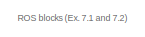
[diagram: root canvas - part 1/6, top left region]
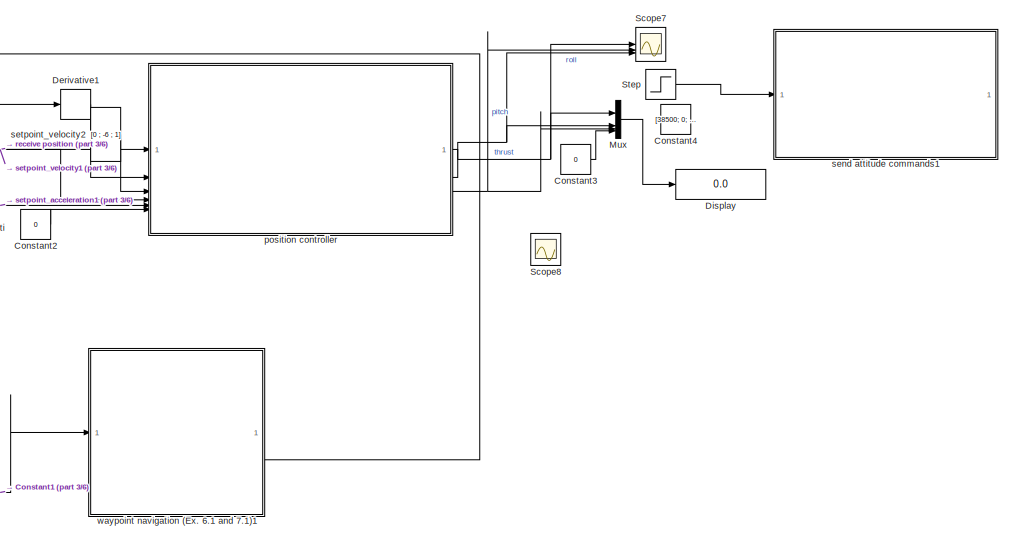
[diagram: root canvas - part 2/6, top right region]
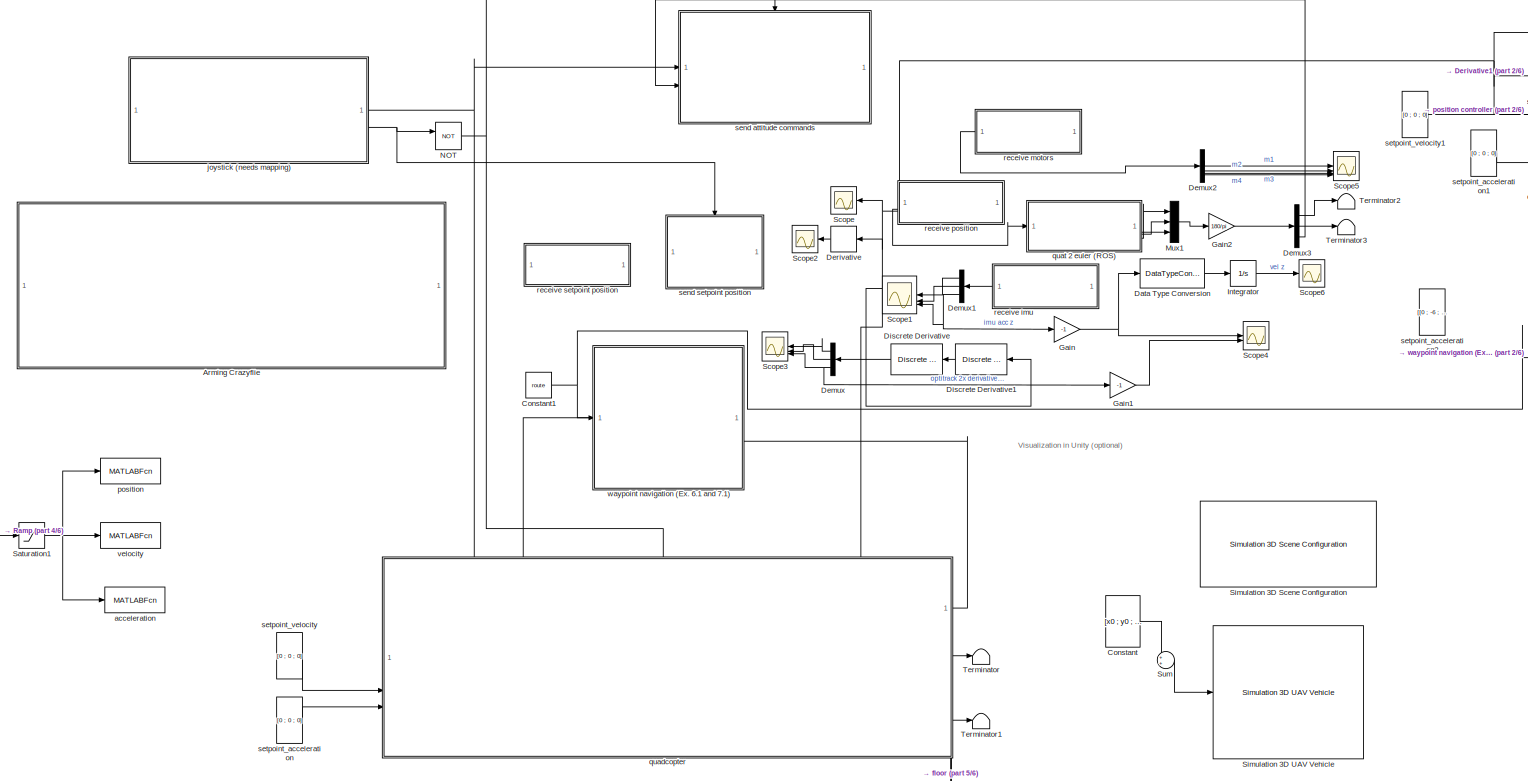
[diagram: root canvas - part 3/6, top center region]
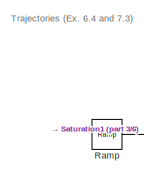
[diagram: root canvas - part 4/6, middle left region]
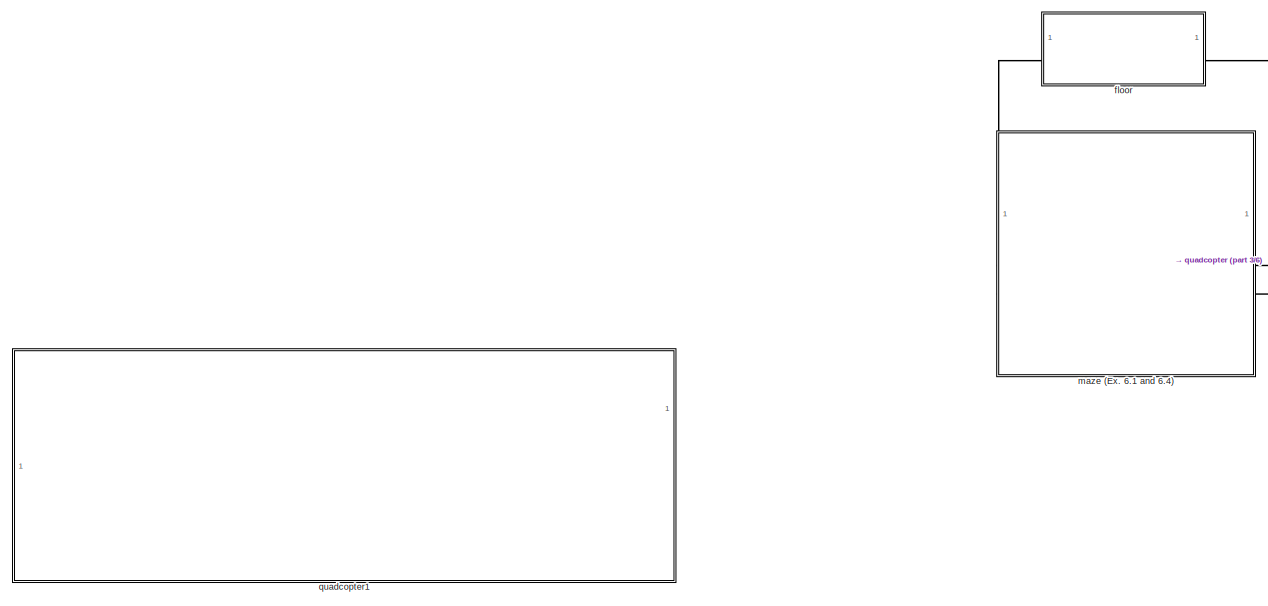
[diagram: root canvas - part 5/6, bottom left region]
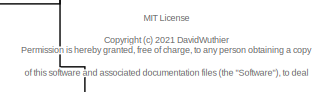
[diagram: root canvas - part 6/6, bottom center region]
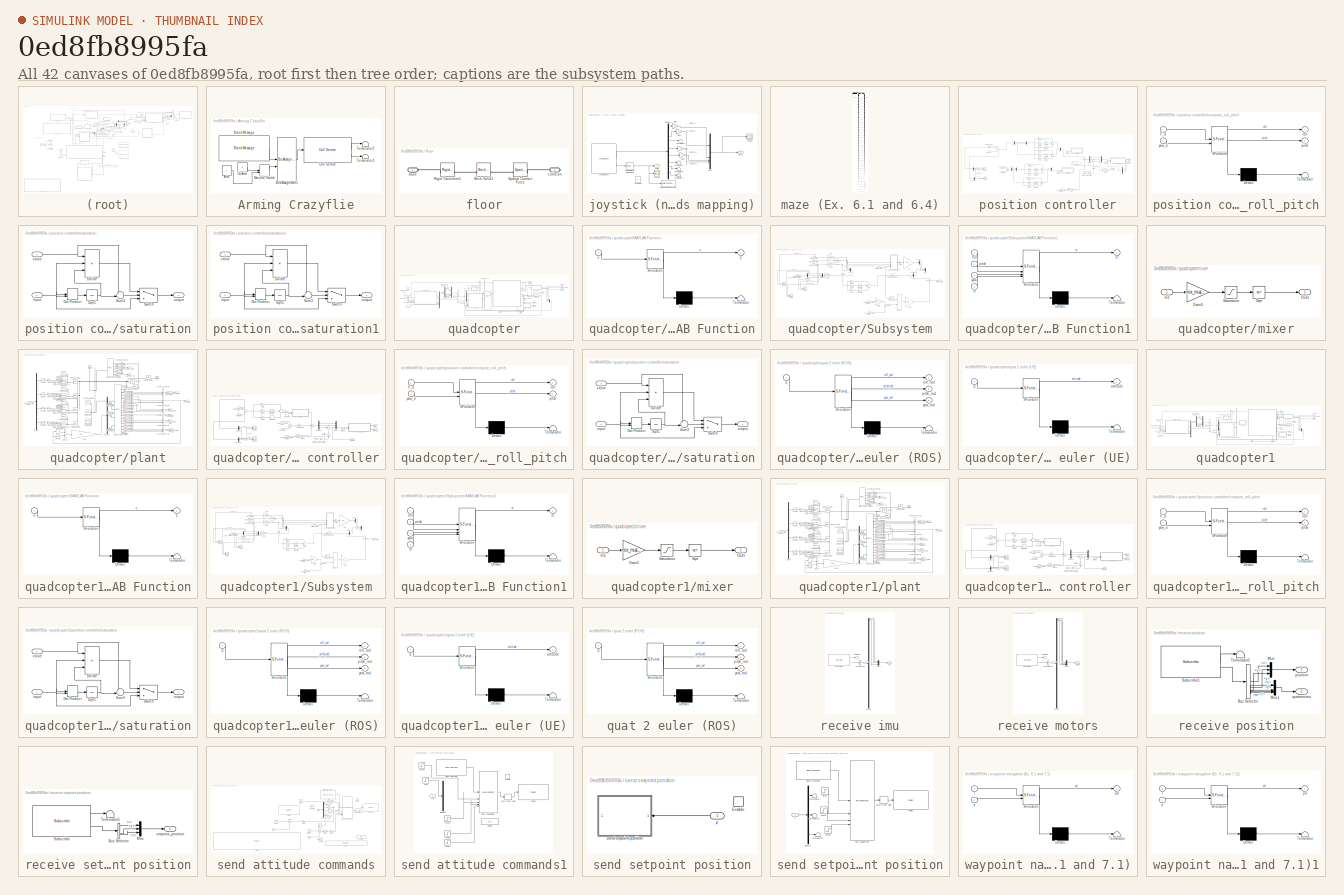
[diagram: thumbnail index - all 42 canvases of the model, root first then tree order]
MODEL slx_0ed8fb8995fa
KIND model
CONFIG AbsTol = auto
CONFIG EnableMultiTasking = off
CONFIG FixedStep = sample_time
CONFIG MaxStep = auto
CONFIG MinStep = auto
CONFIG RelTol = 1e-3
CONFIG SampleTimeConstraint = Unconstrained
CONFIG SolverName = FixedStepAuto
CONFIG StartTime = 0.0
CONFIG StopTime = Inf
WORKSPACE source: external: MAT-File  (data not in archive)
BLOCK [SubSystem] Arming Crazyflie
  Commented = on
BLOCK [Constant] Arming Crazyflie/Arm
  OutDataTypeStr = boolean
BLOCK [Reference] Arming Crazyflie/Blank Message  REF=ros2lib/Blank Message  (lib defined in slx_3c1549211f48)
  SourceBlock = ros2lib/Blank Message
  SourceType = ROS2 Blank Message
BLOCK [BusAssignment] Arming Crazyflie/Bus Assignment
  AssignedSignals = arm
BLOCK [Reference] Arming Crazyflie/Call Service  REF=ros2lib/Call Service  (lib defined in slx_3c1549211f48)
  SourceBlock = ros2lib/Call Service
  SourceType = ROS2 Call Service
BLOCK [ManualSwitch] Arming Crazyflie/Manual Switch
  CurrentSetting = 0
BLOCK [Terminator] Arming Crazyflie/Terminator2
BLOCK [Terminator] Arming Crazyflie/Terminator3
BLOCK [Constant] Arming Crazyflie/UnArm
  OutDataTypeStr = boolean
  Value = 0
BLOCK [Constant] Constant
  Commented = on
  Value = [x0 ; y0 ; 0]
  VectorParams1D = off
BLOCK [Constant] Constant1
  Value = route
BLOCK [Constant] Constant2
  Value = 0
BLOCK [Constant] Constant3
  Value = 0
BLOCK [Constant] Constant4
  Value = [38500; 0; (10*pi)/180 ; 0]
BLOCK [DataTypeConversion] Data Type Conversion
  OutDataTypeStr = double
  RndMeth = Floor
  SaturateOnIntegerOverflow = off
BLOCK [Demux] Demux
  NameLocation = top
  Outputs = 3
BLOCK [Demux] Demux1
  NameLocation = top
  Outputs = 3
BLOCK [Demux] Demux2
BLOCK [Demux] Demux3
  Outputs = 3
BLOCK [Derivative] Derivative
  NameLocation = top
BLOCK [Derivative] Derivative1
BLOCK [Reference] Discrete Derivative  REF=simulink/Discrete/Discrete Derivative
  NameLocation = top
  SourceBlock = simulink/Discrete/Discrete Derivative
  SourceType = Discrete Derivative
BLOCK [Reference] Discrete Derivative1  REF=simulink/Discrete/Discrete Derivative
  NameLocation = top
  SourceBlock = simulink/Discrete/Discrete Derivative
  SourceType = Discrete Derivative
BLOCK [Display] Display
  Decimation = 1
BLOCK [Gain] Gain
  Gain = -1
BLOCK [Gain] Gain1
  Gain = -1
BLOCK [Gain] Gain2
  Gain = 180/pi
BLOCK [Integrator] Integrator
BLOCK [Mux] Mux
  DisplayOption = bar
BLOCK [Mux] Mux1
  DisplayOption = bar
  Inputs = 3
BLOCK [Logic] NOT
  AllPortsSameDT = off
  IconShape = distinctive
  Operator = NOT
  OutDataTypeStr = boolean
BLOCK [Reference] Ramp  REF=simulink/Sources/Ramp
  Commented = on
  SourceBlock = simulink/Sources/Ramp
  SourceType = Ramp
BLOCK [Saturate] Saturation1
  Commented = on
  LowerLimit = 0
  UpperLimit = knots(end)
BLOCK [Scope] Scope
  Floating = off
  NameLocation = top
  NumInputPorts = 1
  ScopeSpecificationString = Simulink.scopes.TimeScopeBlockCfg('CurrentConfiguration', extmgr.ConfigurationSet(extmgr.Configuration('Core','General UI',true),extmgr.Configuration('Core','Source UI',true),extmgr.Configuration('Sources','WiredSimulink',true,'DataLoggingVariableName','ScopeData6'),extmgr.Configuration('Visuals','Time Domain',true,'SerializedDisplays',{struct('MinYLimReal','-25.22872','MaxYLimReal','11.07594','YL...<+1659ch>
BLOCK [Scope] Scope1
  Floating = off
  NameLocation = top
  NumInputPorts = 3
  ScopeSpecificationString = Simulink.scopes.TimeScopeBlockCfg('CurrentConfiguration', extmgr.ConfigurationSet(extmgr.Configuration('Core','General UI',true),extmgr.Configuration('Core','Source UI',true),extmgr.Configuration('Sources','WiredSimulink',true,'DataLoggingVariableName','ScopeData7'),extmgr.Configuration('Visuals','Time Domain',true,'SerializedDisplays',{struct('MinYLimReal','-1.00000','MaxYLimReal','1.00000','YLab...<+1826ch>
BLOCK [Scope] Scope2
  Floating = off
  NameLocation = top
  NumInputPorts = 1
  ScopeSpecificationString = Simulink.scopes.TimeScopeBlockCfg('CurrentConfiguration', extmgr.ConfigurationSet(extmgr.Configuration('Core','General UI',true),extmgr.Configuration('Core','Source UI',true),extmgr.Configuration('Sources','WiredSimulink',true,'DataLoggingVariableName','ScopeData8'),extmgr.Configuration('Visuals','Time Domain',true,'SerializedDisplays',{struct('MinYLimReal','-3.64973','MaxYLimReal','7.81041','YLab...<+1629ch>
BLOCK [Scope] Scope3
  Floating = off
  NameLocation = top
  NumInputPorts = 3
  ScopeSpecificationString = Simulink.scopes.TimeScopeBlockCfg('CurrentConfiguration', extmgr.ConfigurationSet(extmgr.Configuration('Core','General UI',true),extmgr.Configuration('Core','Source UI',true),extmgr.Configuration('Sources','WiredSimulink',true,'DataLoggingVariableName','ScopeData9'),extmgr.Configuration('Visuals','Time Domain',true,'SerializedDisplays',{struct('MinYLimReal','-2171.86466','MaxYLimReal','2567.95186'...<+1656ch>
BLOCK [Scope] Scope4
  Floating = off
  NumInputPorts = 2
  ScopeSpecificationString = Simulink.scopes.TimeScopeBlockCfg('CurrentConfiguration', extmgr.ConfigurationSet(extmgr.Configuration('Core','General UI',true),extmgr.Configuration('Core','Source UI',true),extmgr.Configuration('Sources','WiredSimulink',true,'DataLoggingVariableName','ScopeData10'),extmgr.Configuration('Visuals','Time Domain',true,'SerializedDisplays',{struct('MinYLimReal','-1.00000','MaxYLimReal','1.00000','YLa...<+1673ch>
BLOCK [Scope] Scope5
  Floating = off
  NumInputPorts = 4
  ScopeSpecificationString = Simulink.scopes.TimeScopeBlockCfg('CurrentConfiguration', extmgr.ConfigurationSet(extmgr.Configuration('Core','General UI',true),extmgr.Configuration('Core','Source UI',true),extmgr.Configuration('Sources','WiredSimulink',true,'DataLoggingVariableName','ScopeData1'),extmgr.Configuration('Visuals','Time Domain',true,'SerializedDisplays',{struct('MinYLimReal','-316.875','MaxYLimReal','72851.875','YL...<+1635ch>
BLOCK [Scope] Scope6
  Floating = off
  NumInputPorts = 1
  ScopeSpecificationString = Simulink.scopes.TimeScopeBlockCfg('CurrentConfiguration', extmgr.ConfigurationSet(extmgr.Configuration('Core','General UI',true),extmgr.Configuration('Core','Source UI',true),extmgr.Configuration('Sources','WiredSimulink',true,'DataLoggingVariableName','ScopeData2'),extmgr.Configuration('Visuals','Time Domain',true,'SerializedDisplays',{struct('MinYLimReal','-6.92612','MaxYLimReal','0.76957','YLab...<+1505ch>
BLOCK [Scope] Scope7
  Floating = off
  NumInputPorts = 3
  ScopeSpecificationString = Simulink.scopes.TimeScopeBlockCfg('CurrentConfiguration', extmgr.ConfigurationSet(extmgr.Configuration('Core','General UI',true),extmgr.Configuration('Core','Source UI',true),extmgr.Configuration('Sources','WiredSimulink',true,'DataLoggingVariableName','ScopeData1'),extmgr.Configuration('Visuals','Time Domain',true,'SerializedDisplays',{struct('MinYLimReal','-4937.5','MaxYLimReal','44437.5','YLabe...<+1934ch>
BLOCK [Scope] Scope8
  Floating = off
  NumInputPorts = 1
  ScopeSpecificationString = Simulink.scopes.TimeScopeBlockCfg('CurrentConfiguration', extmgr.ConfigurationSet(extmgr.Configuration('Core','General UI',true),extmgr.Configuration('Core','Source UI',true),extmgr.Configuration('Sources','WiredSimulink',true,'DataLoggingVariableName','ScopeData2'),extmgr.Configuration('Visuals','Time Domain',true),extmgr.Configuration('Tools','Plot Navigation',true),extmgr.Configuration('Tools',...<+40ch>
BLOCK [Reference] Simulation 3D Scene Configuration  REF=sim3dlib/Simulation 3D Scene Configuration
  Commented = on
  LibrarySourceBlock = uavsim3dlib/Simulation 3D Scene Configuration
  Priority = 0
  SourceBlock = sim3dlib/Simulation 3D Scene Configuration
  SourceType = Simulation 3D Scene Configuration
BLOCK [Reference] Simulation 3D UAV Vehicle  REF=uavsim3dlib/Simulation 3D UAV Vehicle
  Commented = on
  SourceBlock = uavsim3dlib/Simulation 3D UAV Vehicle
  SourceType = Simulation 3D UAV Vehicle
BLOCK [Step] Step
  After = [38500; 0; (10*pi)/180 ; 0]
  Commented = on
  SampleTime = 0
BLOCK [Sum] Sum
  Commented = on
  Inputs = ++|
BLOCK [Terminator] Terminator
  Commented = on
BLOCK [Terminator] Terminator1
  Commented = on
BLOCK [Terminator] Terminator2
BLOCK [Terminator] Terminator3
BLOCK [MATLABFcn] acceleration
  Commented = on
  MATLABFcn = eval(poly_traj, u, 2)
  Output1D = off
  OutputDimensions = [3 1]
BLOCK [SubSystem] floor
  Commented = on
BLOCK [Reference] floor/Brick Solid1  REF=sm_lib/Body Elements/Brick Solid
  SourceBlock = sm_lib/Body Elements/Brick Solid
  SourceType = Brick Solid
BLOCK [Reference] floor/Rigid Transform5  REF=sm_lib/Frames and
Transforms/Rigid
Transform
  SourceBlock = sm_lib/Frames and\nTransforms/Rigid\nTransform
  SourceType = Rigid\nTransform
BLOCK [Reference] floor/Spatial Contact Force  REF=sm_lib/Forces and
Torques/Spatial
Contact Force
  NameLocation = top
  SourceBlock = sm_lib/Forces and\nTorques/Spatial\nContact Force
  SourceType = Spatial\nContact Force
BLOCK [PMIOPort] floor/base
  Side = Left
BLOCK [PMIOPort] floor/collision
  Port = 2
  Side = Right
BLOCK [SubSystem] joystick (needs mapping)
BLOCK [Constant] joystick (needs mapping)/Constant1
BLOCK [DataTypeConversion] joystick (needs mapping)/Data Type Conversion
  OutDataTypeStr = double
  RndMeth = Floor
  SaturateOnIntegerOverflow = off
BLOCK [Demux] joystick (needs mapping)/Demux1
  Outputs = 8
BLOCK [Gain] joystick (needs mapping)/Gain
  Gain = 0
BLOCK [Gain] joystick (needs mapping)/Gain1
  Gain = 0
BLOCK [Gain] joystick (needs mapping)/Gain2
  Gain = -1
BLOCK [Gain] joystick (needs mapping)/Gain3
  Gain = 0
BLOCK [Reference] joystick (needs mapping)/Joystick Input  REF=vrlib/Joystick Input
  SourceBlock = vrlib/Joystick Input
  SourceType = Joystick Input
BLOCK [Mux] joystick (needs mapping)/Mux1
  DisplayOption = bar
BLOCK [Scope] joystick (needs mapping)/Scope
  Floating = off
  NumInputPorts = 1
  ScopeSpecificationString = Simulink.scopes.TimeScopeBlockCfg('CurrentConfiguration', extmgr.ConfigurationSet(extmgr.Configuration('Core','General UI',true),extmgr.Configuration('Core','Source UI',true),extmgr.Configuration('Sources','WiredSimulink',true),extmgr.Configuration('Visuals','Time Domain',true,'SerializedDisplays',{struct('MinYLimReal','-1.6308','MaxYLimReal','1.51138','YLabelReal','','MinYLimMag','0.00000','MaxYL...<+1506ch>
BLOCK [Scope] joystick (needs mapping)/Scope1
  Floating = off
  NumInputPorts = 1
  ScopeSpecificationString = Simulink.scopes.TimeScopeBlockCfg('CurrentConfiguration', extmgr.ConfigurationSet(extmgr.Configuration('Core','General UI',true),extmgr.Configuration('Core','Source UI',true),extmgr.Configuration('Sources','WiredSimulink',true,'DataLoggingVariableName','ScopeData1'),extmgr.Configuration('Visuals','Time Domain',true,'SerializedDisplays',{struct('MinYLimReal','-1.00000','MaxYLimReal','1.00000','YLab...<+1505ch>
BLOCK [Selector] joystick (needs mapping)/Select button to switch mode
  IndexOptions = Index vector (dialog)
  Indices = 1
  InputPortWidth = 11
  OutputSizes = 1
BLOCK [Terminator] joystick (needs mapping)/Terminator1
BLOCK [Terminator] joystick (needs mapping)/Terminator2
BLOCK [Terminator] joystick (needs mapping)/Terminator8
BLOCK [Terminator] joystick (needs mapping)/Terminator9
BLOCK [Outport] joystick (needs mapping)/button
  Port = 2
BLOCK [Outport] joystick (needs mapping)/sticks
BLOCK [SubSystem] maze (Ex. 6.1 and 6.4)
  Commented = on
BLOCK [SubSystem] maze (Ex. 6.1 and 6.4)/Subsystem Reference
  ReferencedSubsystem = uas_wall
  l = 5
  x = -1
  y = 1.5
  yaw = 0
BLOCK [SubSystem] maze (Ex. 6.1 and 6.4)/Subsystem Reference1
  ReferencedSubsystem = uas_wall
  l = 5
  x = -1
  y = 7.5
  yaw = 0
BLOCK [SubSystem] maze (Ex. 6.1 and 6.4)/Subsystem Reference10
  ReferencedSubsystem = uas_wall
  l = 5
  x = 7.5
  y = 10
  yaw = pi/2
BLOCK [SubSystem] maze (Ex. 6.1 and 6.4)/Subsystem Reference11
  ReferencedSubsystem = uas_wall
  l = 5
  x = 5
  y = 10
  yaw = pi/2
BLOCK [SubSystem] maze (Ex. 6.1 and 6.4)/Subsystem Reference12
  ReferencedSubsystem = uas_wall
  l = 5
  x = 1.5
  y = 1
  yaw = pi/2
BLOCK [SubSystem] maze (Ex. 6.1 and 6.4)/Subsystem Reference13
  ReferencedSubsystem = uas_wall
  l = 3
  x = 4.5
  y = 1
  yaw = pi/2
BLOCK [SubSystem] maze (Ex. 6.1 and 6.4)/Subsystem Reference14
  ReferencedSubsystem = uas_wall
  l = 3
  x = 8
  y = 2.5
  yaw = 0
BLOCK [SubSystem] maze (Ex. 6.1 and 6.4)/Subsystem Reference15
  ReferencedSubsystem = uas_wall
  l = 1
  x = 6
  y = 4.5
  yaw = 0
BLOCK [SubSystem] maze (Ex. 6.1 and 6.4)/Subsystem Reference16
  ReferencedSubsystem = uas_wall
  l = 1
  x = 6
  y = 1.5
  yaw = 0
BLOCK [SubSystem] maze (Ex. 6.1 and 6.4)/Subsystem Reference17
  ReferencedSubsystem = uas_wall
  l = 1
  x = 2
  y = 1.5
  yaw = 0
BLOCK [SubSystem] maze (Ex. 6.1 and 6.4)/Subsystem Reference18
  ReferencedSubsystem = uas_wall
  l = 1
  x = 0
  y = 2.5
  yaw = 0
BLOCK [SubSystem] maze (Ex. 6.1 and 6.4)/Subsystem Reference19
  ReferencedSubsystem = uas_wall
  l = 5
  x = 5.5
  y = 4
  yaw = pi/2
BLOCK [SubSystem] maze (Ex. 6.1 and 6.4)/Subsystem Reference2
  ReferencedSubsystem = uas_wall
  l = 5
  x = -1
  y = 5
  yaw = 0
BLOCK [SubSystem] maze (Ex. 6.1 and 6.4)/Subsystem Reference20
  ReferencedSubsystem = uas_wall
  l = 1
  x = 4
  y = 3.5
  yaw = 0
BLOCK [SubSystem] maze (Ex. 6.1 and 6.4)/Subsystem Reference21
  ReferencedSubsystem = uas_wall
  l = 1
  x = 2.5
  y = 4
  yaw = pi/2
BLOCK [SubSystem] maze (Ex. 6.1 and 6.4)/Subsystem Reference22
  ReferencedSubsystem = uas_wall
  l = 1
  x = 0.5
  y = 2
  yaw = pi/2
BLOCK [SubSystem] maze (Ex. 6.1 and 6.4)/Subsystem Reference23
  ReferencedSubsystem = uas_wall
  l = 1
  x = 1.5
  y = 2
  yaw = pi/2
BLOCK [SubSystem] maze (Ex. 6.1 and 6.4)/Subsystem Reference24
  ReferencedSubsystem = uas_wall
  l = 1
  x = -0.5
  y = 3
  yaw = pi/2
BLOCK [SubSystem] maze (Ex. 6.1 and 6.4)/Subsystem Reference25
  ReferencedSubsystem = uas_wall
  l = 1
  x = 2
  y = 4.5
  yaw = 0
BLOCK [SubSystem] maze (Ex. 6.1 and 6.4)/Subsystem Reference26
  ReferencedSubsystem = uas_wall
  l = 1
  x = 1.5
  y = 5
  yaw = pi/2
BLOCK [SubSystem] maze (Ex. 6.1 and 6.4)/Subsystem Reference27
  ReferencedSubsystem = uas_wall
  l = 1
  x = 0.5
  y = 7
  yaw = pi/2
BLOCK [SubSystem] maze (Ex. 6.1 and 6.4)/Subsystem Reference28
  ReferencedSubsystem = uas_wall
  l = 1
  x = 1
  y = 7.5
  yaw = 0
BLOCK [SubSystem] maze (Ex. 6.1 and 6.4)/Subsystem Reference29
  ReferencedSubsystem = uas_wall
  l = 2
  x = 8
  y = 7
  yaw = 0
BLOCK [SubSystem] maze (Ex. 6.1 and 6.4)/Subsystem Reference3
  ReferencedSubsystem = uas_wall
  l = 5
  x = 10
  y = 1.5
  yaw = 0
BLOCK [SubSystem] maze (Ex. 6.1 and 6.4)/Subsystem Reference30
  ReferencedSubsystem = uas_wall
  l = 1
  x = -0.5
  y = 7
  yaw = pi/2
BLOCK [SubSystem] maze (Ex. 6.1 and 6.4)/Subsystem Reference31
  ReferencedSubsystem = uas_wall
  l = 1
  x = 6
  y = 5.5
  yaw = 0
BLOCK [SubSystem] maze (Ex. 6.1 and 6.4)/Subsystem Reference32
  ReferencedSubsystem = uas_wall
  l = 5
  x = 5.5
  y = 8
  yaw = pi/2
BLOCK [SubSystem] maze (Ex. 6.1 and 6.4)/Subsystem Reference33
  ReferencedSubsystem = uas_wall
  l = 1
  x = 3.5
  y = 7
  yaw = pi/2
BLOCK [SubSystem] maze (Ex. 6.1 and 6.4)/Subsystem Reference34
  ReferencedSubsystem = uas_wall
  l = 1
  x = 3
  y = 7.5
  yaw = 0
BLOCK [SubSystem] maze (Ex. 6.1 and 6.4)/Subsystem Reference35
  ReferencedSubsystem = uas_wall
  l = 1
  x = 4
  y = 6.5
  yaw = 0
BLOCK [SubSystem] maze (Ex. 6.1 and 6.4)/Subsystem Reference36
  ReferencedSubsystem = uas_wall
  l = 1
  x = 4
  y = 7.5
  yaw = 0
BLOCK [SubSystem] maze (Ex. 6.1 and 6.4)/Subsystem Reference4
  ReferencedSubsystem = uas_wall
  l = 5
  x = 10
  y = 7.5
  yaw = 0
BLOCK [SubSystem] maze (Ex. 6.1 and 6.4)/Subsystem Reference5
  ReferencedSubsystem = uas_wall
  l = 5
  x = 10
  y = 5
  yaw = 0
BLOCK [SubSystem] maze (Ex. 6.1 and 6.4)/Subsystem Reference6
  ReferencedSubsystem = uas_wall
  l = 5
  x = 1.5
  y = -1
  yaw = pi/2
BLOCK [SubSystem] maze (Ex. 6.1 and 6.4)/Subsystem Reference7
  ReferencedSubsystem = uas_wall
  l = 5
  x = 7.5
  y = -1
  yaw = pi/2
BLOCK [SubSystem] maze (Ex. 6.1 and 6.4)/Subsystem Reference8
  ReferencedSubsystem = uas_wall
  l = 5
  x = 5
  y = -1
  yaw = pi/2
BLOCK [SubSystem] maze (Ex. 6.1 and 6.4)/Subsystem Reference9
  ReferencedSubsystem = uas_wall
  l = 5
  x = 1.5
  y = 10
  yaw = pi/2
BLOCK [PMIOPort] maze (Ex. 6.1 and 6.4)/base
  Side = Left
BLOCK [PMIOPort] maze (Ex. 6.1 and 6.4)/collision
  Port = 2
  Side = Right
BLOCK [Reference] maze (Ex. 6.1 and 6.4)/wall 1m  REF=sm_lib/Body Elements/Brick Solid
  Commented = on
  SourceBlock = sm_lib/Body Elements/Brick Solid
  SourceType = Brick Solid
BLOCK [Reference] maze (Ex. 6.1 and 6.4)/wall 3m  REF=sm_lib/Body Elements/Brick Solid
  Commented = on
  SourceBlock = sm_lib/Body Elements/Brick Solid
  SourceType = Brick Solid
BLOCK [Reference] maze (Ex. 6.1 and 6.4)/wall 5m  REF=sm_lib/Body Elements/Brick Solid
  Commented = on
  SourceBlock = sm_lib/Body Elements/Brick Solid
  SourceType = Brick Solid
BLOCK [MATLABFcn] position
  Commented = on
  MATLABFcn = eval(poly_traj, u, 0)
  Output1D = off
  OutputDimensions = [3 1]
BLOCK [SubSystem] position controller
BLOCK [Constant] position controller/Constant
  Value = 3
BLOCK [Constant] position controller/Constant1
  Value = 3
BLOCK [Demux] position controller/Demux
  Outputs = 3
BLOCK [Demux] position controller/Demux1
  Outputs = 3
BLOCK [Demux] position controller/Demux2
  Outputs = 3
BLOCK [Demux] position controller/Demux3
  Outputs = 3
BLOCK [Demux] position controller/Demux4
  Outputs = 3
BLOCK [Demux] position controller/Demux5
  Outputs = 2
BLOCK [Derivative] position controller/Derivative
  Commented = on
BLOCK [Derivative] position controller/Derivative1
  Commented = on
BLOCK [Derivative] position controller/Derivative2
  Commented = on
BLOCK [Derivative] position controller/Derivative3
  Commented = on
BLOCK [Display] position controller/Display
  Decimation = 1
BLOCK [Gain] position controller/Gain
  Gain = 0
BLOCK [Gain] position controller/Gain1
  Gain = 0
BLOCK [Gain] position controller/Gain10
  Gain = 7
BLOCK [Gain] position controller/Gain11
  Gain = 0.1
BLOCK [Gain] position controller/Gain12
  Commented = on
BLOCK [Gain] position controller/Gain2
  Commented = on
BLOCK [Gain] position controller/Gain3
  Gain = 39500/(mass_total*g)
BLOCK [Gain] position controller/Gain4
  Gain = 0
BLOCK [Gain] position controller/Gain5
  Gain = 0
BLOCK [Gain] position controller/Gain6
  Commented = on
BLOCK [Gain] position controller/Gain7
  Gain = 7
BLOCK [Gain] position controller/Gain8
  Gain = 0.1
BLOCK [Gain] position controller/Gain9
  Commented = on
BLOCK [Integrator] position controller/Integrator
BLOCK [Integrator] position controller/Integrator1
BLOCK [Integrator] position controller/Integrator2
BLOCK [Integrator] position controller/Integrator3
BLOCK [Gain] position controller/Multiply
  Gain = g
  NameLocation = right
BLOCK [Mux] position controller/Mux
  DisplayOption = bar
  Inputs = 2
BLOCK [Mux] position controller/Mux1
  DisplayOption = bar
  Inputs = 2
BLOCK [Mux] position controller/Mux2
  DisplayOption = bar
  Inputs = 3
BLOCK [Mux] position controller/Mux3
  DisplayOption = bar
  Inputs = 2
BLOCK [Mux] position controller/Mux4
  DisplayOption = bar
  Inputs = 2
BLOCK [Sum] position controller/Sum
  Inputs = +|-
BLOCK [Sum] position controller/Sum1
  Inputs = +|-
BLOCK [Sum] position controller/Sum2
  Inputs = |++
BLOCK [Sum] position controller/Sum3
  Inputs = +++
BLOCK [Sum] position controller/Sum4
  Inputs = +|+|+
BLOCK [Sum] position controller/Sum5
  Inputs = +|+|+
BLOCK [Sum] position controller/Sum6
  Inputs = +|+|+
BLOCK [Sum] position controller/Sum7
  Inputs = +|+|+
BLOCK [Scope] position controller/X pose
  Floating = off
  NumInputPorts = 2
  ScopeSpecificationString = Simulink.scopes.TimeScopeBlockCfg('CurrentConfiguration', extmgr.ConfigurationSet(extmgr.Configuration('Core','General UI',true),extmgr.Configuration('Core','Source UI',true),extmgr.Configuration('Sources','WiredSimulink',true,'DataLoggingVariableName','ScopeData1'),extmgr.Configuration('Visuals','Time Domain',true,'SerializedDisplays',{struct('MinYLimReal','-25.86994','MaxYLimReal','12.87444','YL...<+1504ch>  <repeated x3 — deduplicated; at blocks: X pose>
BLOCK [Scope] position controller/Y pose
  Floating = off
  NumInputPorts = 2
  ScopeSpecificationString = Simulink.scopes.TimeScopeBlockCfg('CurrentConfiguration', extmgr.ConfigurationSet(extmgr.Configuration('Core','General UI',true),extmgr.Configuration('Core','Source UI',true),extmgr.Configuration('Sources','WiredSimulink',true,'DataLoggingVariableName','ScopeData2'),extmgr.Configuration('Visuals','Time Domain',true,'SerializedDisplays',{struct('MinYLimReal','-3.13844','MaxYLimReal','2.77532','YLab...<+1473ch>  <repeated x3 — deduplicated; at blocks: Y pose>
BLOCK [SubSystem] position controller/compute_roll_pitch
  ErrorFcn = Stateflow.Translate.translate
  PermitHierarchicalResolution = ExplicitOnly
  SFBlockType = MATLAB Function
  TreatAsAtomicUnit = on
BLOCK [Demux] position controller/compute_roll_pitch/ Demux 
  Outputs = 1
BLOCK [S-Function] position controller/compute_roll_pitch/ SFunction 
  EnableBusSupport = on
  FunctionName = sf_sfun
  PortCounts = [2 3]
  SFcnIsStateOwnerBlock = off
  SFunctionDeploymentMode = off
  Tag = Stateflow S-Function 12
BLOCK [Terminator] position controller/compute_roll_pitch/ Terminator 
BLOCK [Inport] position controller/compute_roll_pitch/F_d
BLOCK [Outport] position controller/compute_roll_pitch/pitch
  Port = 2
BLOCK [Outport] position controller/compute_roll_pitch/roll
BLOCK [Inport] position controller/compute_roll_pitch/yaw_d
  Port = 2
BLOCK [Constant] position controller/gravity compensation1
  NameLocation = top
  Value = mass_total
  VectorParams1D = off
BLOCK [Gain] position controller/mass
  Gain = mass_total
BLOCK [Outport] position controller/pitch [rad]
  Port = 3
BLOCK [Inport] position controller/position [m]
BLOCK [Outport] position controller/roll [rad]
  Port = 2
BLOCK [SubSystem] position controller/saturation
BLOCK [Product] position controller/saturation/Divide
  Inputs = **/
BLOCK [DotProduct] position controller/saturation/Dot Product
  OutDataTypeStr = Inherit: Inherit via internal rule
BLOCK [Sqrt] position controller/saturation/Sqrt1
BLOCK [Sum] position controller/saturation/Sum3
  Inputs = -+|
BLOCK [Switch] position controller/saturation/Switch
  Criteria = u2 > Threshold
  InputSameDT = off
  SaturateOnIntegerOverflow = off
BLOCK [Inport] position controller/saturation/input
BLOCK [Outport] position controller/saturation/output
BLOCK [Inport] position controller/saturation/value
  Port = 2
BLOCK [SubSystem] position controller/saturation1
BLOCK [Product] position controller/saturation1/Divide
  Inputs = **/
BLOCK [DotProduct] position controller/saturation1/Dot Product
  OutDataTypeStr = Inherit: Inherit via internal rule
BLOCK [Sqrt] position controller/saturation1/Sqrt1
BLOCK [Sum] position controller/saturation1/Sum3
  Inputs = -+|
BLOCK [Switch] position controller/saturation1/Switch
  Criteria = u2 > Threshold
  InputSameDT = off
  SaturateOnIntegerOverflow = off
BLOCK [Inport] position controller/saturation1/input
BLOCK [Outport] position controller/saturation1/output
BLOCK [Inport] position controller/saturation1/value
  Port = 2
BLOCK [Inport] position controller/setpoint_acceleration [m//s^2]
  Port = 5
BLOCK [Inport] position controller/setpoint_position [m]
  Port = 3
BLOCK [Inport] position controller/setpoint_velocity [m//s]
  Port = 4
BLOCK [Outport] position controller/thrust [N]
BLOCK [Inport] position controller/velocity [m//s]
  Port = 2
BLOCK [Inport] position controller/yaw [rad]
  Port = 6
BLOCK [SubSystem] quadcopter
  Commented = on
  PortSchema = {"entries":[{"content":{"sides":[{"content":{"connectorIds":["In1","In2","In3"]},"type":"ConnectorPlacement.EquallySpacedRectSide","uuid":"ed16c4a7-5f5f-48d5-8471-b227eef37b0b"},{"content":{"connectorIds":["Out1","Out2","Out3"],"side":"RIGHT"},"type":"ConnectorPlacement.EquallySpacedRectSide","uuid":"303ea24f-0a15-469a-b5d8-cc8b33d29b5f"},{"content":{"connectorIds":["In4","In5","In6"],"side":"TOP"...<+444ch>
BLOCK [Constant] quadcopter/Constant
  Value = mass_total*g
BLOCK [Constant] quadcopter/Constant2
  Value = 0
BLOCK [Constant] quadcopter/Constant3
  Value = 0
BLOCK [Demux] quadcopter/Demux
BLOCK [Demux] quadcopter/Demux1
BLOCK [Derivative] quadcopter/Derivative
BLOCK [Product] quadcopter/Divide
  Inputs = */
BLOCK [Integrator] quadcopter/Integrator
  WrapState = on
BLOCK [MATLABFcn] quadcopter/Interpreted MATLAB Function
  MATLABFcn = quat2rotm(u)
  Output1D = off
BLOCK [SubSystem] quadcopter/MATLAB Function
  ErrorFcn = Stateflow.Translate.translate
  PermitHierarchicalResolution = ExplicitOnly
  SFBlockType = MATLAB Function
  TreatAsAtomicUnit = on
BLOCK [Demux] quadcopter/MATLAB Function/ Demux 
  Outputs = 1
BLOCK [S-Function] quadcopter/MATLAB Function/ SFunction 
  EnableBusSupport = on
  FunctionName = sf_sfun
  PortCounts = [1 2]
  SFcnIsStateOwnerBlock = off
  SFunctionDeploymentMode = off
  Tag = Stateflow S-Function 7
BLOCK [Terminator] quadcopter/MATLAB Function/ Terminator 
BLOCK [Inport] quadcopter/MATLAB Function/u
BLOCK [Outport] quadcopter/MATLAB Function/y
BLOCK [Mux] quadcopter/Mux
  DisplayOption = bar
BLOCK [Mux] quadcopter/Mux1
  DisplayOption = bar
BLOCK [Mux] quadcopter/Mux2
  DisplayOption = bar
  Inputs = 3
BLOCK [Inport] quadcopter/Optitrack position
  Port = 6
BLOCK [SubSystem] quadcopter/Subsystem
BLOCK [Inport] quadcopter/Subsystem/Actual orientation roll-pitch-yaw in rad
  Port = 7
BLOCK [Reference] quadcopter/Subsystem/Degrees to Radians  REF=simulink_extras/Transformations/Degrees to
Radians
  SourceBlock = simulink_extras/Transformations/Degrees to\nRadians
  SourceType = DegreesToRadians
BLOCK [Demux] quadcopter/Subsystem/Demux
  Outputs = 3
BLOCK [Demux] quadcopter/Subsystem/Demux1
  Outputs = 3
BLOCK [Demux] quadcopter/Subsystem/Demux2
  Outputs = 3
BLOCK [Derivative] quadcopter/Subsystem/Derivative
BLOCK [Gain] quadcopter/Subsystem/Gain
  Gain = [0.7 ; 0.7 ; 0.035]
BLOCK [Gain] quadcopter/Subsystem/Gain1
  Gain = [0.1 ; 0.1 ; 0.025]
BLOCK [Gain] quadcopter/Subsystem/Gain2
  Gain = -1
BLOCK [Gain] quadcopter/Subsystem/Gain3
  Gain = 180/pi
BLOCK [Gain] quadcopter/Subsystem/Gain4
  Gain = 180/pi
BLOCK [Gain] quadcopter/Subsystem/Gain5
  Gain = 0
BLOCK [Gain] quadcopter/Subsystem/Gain6
  Gain = 180/pi
BLOCK [Gain] quadcopter/Subsystem/Gain7
  Gain = 180/pi
BLOCK [Gain] quadcopter/Subsystem/Gain8
  Gain = 0.2
BLOCK [Gain] quadcopter/Subsystem/Gain9
BLOCK [Integrator] quadcopter/Subsystem/Integrator
BLOCK [SubSystem] quadcopter/Subsystem/MATLAB Function1
  ErrorFcn = Stateflow.Translate.translate
  PermitHierarchicalResolution = ExplicitOnly
  SFBlockType = MATLAB Function
  TreatAsAtomicUnit = on
BLOCK [Demux] quadcopter/Subsystem/MATLAB Function1/ Demux 
  Outputs = 1
BLOCK [S-Function] quadcopter/Subsystem/MATLAB Function1/ SFunction 
  EnableBusSupport = on
  FunctionName = sf_sfun
  PortCounts = [4 2]
  SFcnIsStateOwnerBlock = off
  SFunctionDeploymentMode = off
  Tag = Stateflow S-Function 8
BLOCK [Terminator] quadcopter/Subsystem/MATLAB Function1/ Terminator 
BLOCK [Inport] quadcopter/Subsystem/MATLAB Function1/R
  Port = 4
BLOCK [Outport] quadcopter/Subsystem/MATLAB Function1/er
BLOCK [Inport] quadcopter/Subsystem/MATLAB Function1/pitch
  Port = 2
BLOCK [Inport] quadcopter/Subsystem/MATLAB Function1/roll
BLOCK [Inport] quadcopter/Subsystem/MATLAB Function1/yaw
  Port = 3
BLOCK [Gain] quadcopter/Subsystem/Multiply
  Gain = [0 ; 0 ; 1]
  Multiplication = Matrix(K*u)
BLOCK [Mux] quadcopter/Subsystem/Mux
  DisplayOption = bar
  Inputs = 3
BLOCK [Mux] quadcopter/Subsystem/Mux1
  DisplayOption = bar
  Inputs = 3
BLOCK [Mux] quadcopter/Subsystem/Mux2
  DisplayOption = bar
  Inputs = 3
BLOCK [Scope] quadcopter/Subsystem/Pitch
  Floating = off
  NumInputPorts = 2
  ScopeSpecificationString = Simulink.scopes.TimeScopeBlockCfg('CurrentConfiguration', extmgr.ConfigurationSet(extmgr.Configuration('Core','General UI',true),extmgr.Configuration('Core','Source UI',true),extmgr.Configuration('Sources','WiredSimulink',true,'DataLoggingVariableName','ScopeData4'),extmgr.Configuration('Visuals','Time Domain',true,'SerializedDisplays',{struct('MinYLimReal','-1.00000','MaxYLimReal','1.00000','YLab...<+1498ch>
BLOCK [Product] quadcopter/Subsystem/Product
  Multiplication = Matrix(*)
BLOCK [Scope] quadcopter/Subsystem/Roll
  Floating = off
  NumInputPorts = 2
  ScopeSpecificationString = Simulink.scopes.TimeScopeBlockCfg('CurrentConfiguration', extmgr.ConfigurationSet(extmgr.Configuration('Core','General UI',true),extmgr.Configuration('Core','Source UI',true),extmgr.Configuration('Sources','WiredSimulink',true,'DataLoggingVariableName','ScopeData3'),extmgr.Configuration('Visuals','Time Domain',true,'SerializedDisplays',{struct('MinYLimReal','-1.00000','MaxYLimReal','1.00000','YLab...<+1498ch>
BLOCK [Sum] quadcopter/Subsystem/Sum
BLOCK [Sum] quadcopter/Subsystem/Sum1
  Inputs = +|-
BLOCK [Sum] quadcopter/Subsystem/Sum2
  Inputs = -|+
  NameLocation = left
BLOCK [Sum] quadcopter/Subsystem/Sum3
  Inputs = +|+|+
BLOCK [Math] quadcopter/Subsystem/Transpose
  Operator = transpose
BLOCK [Scope] quadcopter/Subsystem/Yaw
  Floating = off
  NumInputPorts = 2
  ScopeSpecificationString = Simulink.scopes.TimeScopeBlockCfg('CurrentConfiguration', extmgr.ConfigurationSet(extmgr.Configuration('Core','General UI',true),extmgr.Configuration('Core','Source UI',true),extmgr.Configuration('Sources','WiredSimulink',true,'DataLoggingVariableName','ScopeData5'),extmgr.Configuration('Visuals','Time Domain',true,'SerializedDisplays',{struct('MinYLimReal','-1.00000','MaxYLimReal','1.00000','YLab...<+1448ch>
BLOCK [Inport] quadcopter/Subsystem/angular_velocity [rad//s]
  Port = 6
BLOCK [Inport] quadcopter/Subsystem/rotation_matrix
  Port = 5
BLOCK [Inport] quadcopter/Subsystem/setpoint_pitch [rad]
  Port = 2
BLOCK [Inport] quadcopter/Subsystem/setpoint_roll [rad]
BLOCK [Inport] quadcopter/Subsystem/setpoint_yaw [rad]
  Port = 3
BLOCK [Inport] quadcopter/Subsystem/setpoint_yaw_rate [rad//s]
  Port = 4
BLOCK [Outport] quadcopter/Subsystem/torques [N*m]
BLOCK [Sum] quadcopter/Sum
  Inputs = ++|
BLOCK [Switch] quadcopter/Switch
  Criteria = u2 ~= 0
  InputSameDT = off
  SaturateOnIntegerOverflow = off
BLOCK [Terminator] quadcopter/Terminator
BLOCK [Terminator] quadcopter/Terminator1
BLOCK [Terminator] quadcopter/Terminator2
BLOCK [Terminator] quadcopter/Terminator3
BLOCK [Terminator] quadcopter/Terminator4
BLOCK [Terminator] quadcopter/Terminator5
BLOCK [Terminator] quadcopter/Terminator6
BLOCK [Terminator] quadcopter/Terminator7
BLOCK [Concatenate] quadcopter/Vector Concatenate
BLOCK [Outport] quadcopter/attitude_ue
  Port = 3
BLOCK [PMIOPort] quadcopter/base
  Side = Right
BLOCK [PMIOPort] quadcopter/collision
  Port = 2
  Side = Right
BLOCK [Inport] quadcopter/joystick
  Port = 4
BLOCK [Inport] quadcopter/joystick_on
  Port = 5
BLOCK [SubSystem] quadcopter/mixer
BLOCK [Gain] quadcopter/mixer/Gain5
  Gain = mix_matrix
  Multiplication = Matrix(K*u)
BLOCK [Inport] quadcopter/mixer/In1
BLOCK [Outport] quadcopter/mixer/Out1
BLOCK [Saturate] quadcopter/mixer/Saturation
  LowerLimit = 0
  UpperLimit = max_rot_velocity^2
BLOCK [Sqrt] quadcopter/mixer/Sqrt
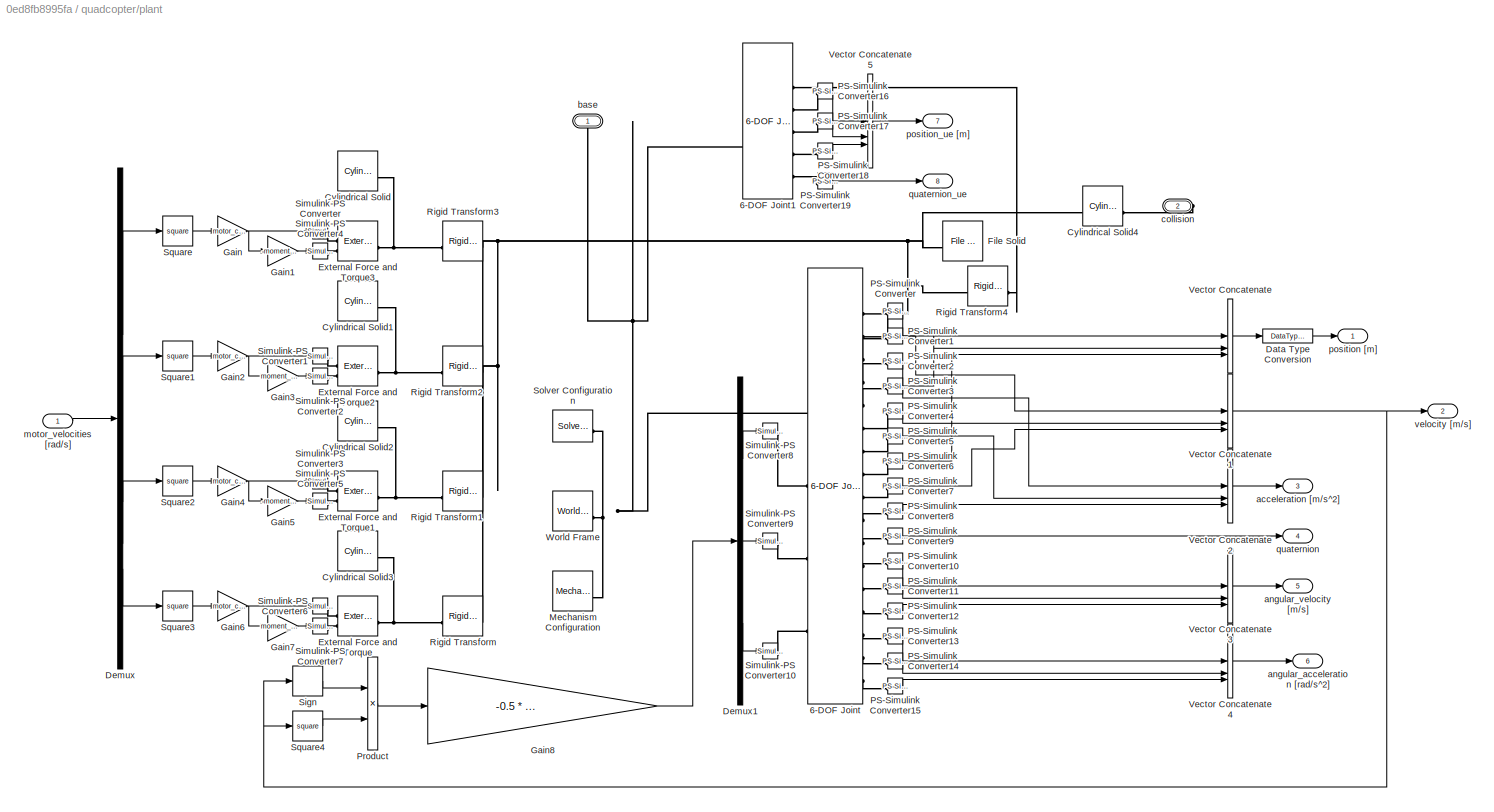
BLOCK [SubSystem] quadcopter/plant
  PortSchema = {"entries":[{"content":{"sides":[{"content":{"connectorIds":["In1"]},"type":"ConnectorPlacement.EquallySpacedRectSide","uuid":"6e9c785b-7a58-4a83-84e6-bbea81e0823c"},{"content":{"connectorIds":["Out1","Out2","Out3","Out4","Out5","Out6","Out7","Out8"],"side":"RIGHT"},"type":"ConnectorPlacement.EquallySpacedRectSide","uuid":"b008e1e2-aa95-4897-b360-2fe655e93601"},{"content":{"connectorIds":[],"side"...<+450ch>
BLOCK [Reference] quadcopter/plant/6-DOF Joint  REF=sm_lib/Joints/6-DOF Joint
  SourceBlock = sm_lib/Joints/6-DOF Joint
  SourceType = 6-DOF Joint
BLOCK [Reference] quadcopter/plant/6-DOF Joint1  REF=sm_lib/Joints/6-DOF Joint
  SourceBlock = sm_lib/Joints/6-DOF Joint
  SourceType = 6-DOF Joint
BLOCK [Reference] quadcopter/plant/Cylindrical Solid  REF=sm_lib/Body Elements/Cylindrical Solid
  SourceBlock = sm_lib/Body Elements/Cylindrical Solid
  SourceType = Cylindrical Solid
BLOCK [Reference] quadcopter/plant/Cylindrical Solid1  REF=sm_lib/Body Elements/Cylindrical Solid
  SourceBlock = sm_lib/Body Elements/Cylindrical Solid
  SourceType = Cylindrical Solid
BLOCK [Reference] quadcopter/plant/Cylindrical Solid2  REF=sm_lib/Body Elements/Cylindrical Solid
  SourceBlock = sm_lib/Body Elements/Cylindrical Solid
  SourceType = Cylindrical Solid
BLOCK [Reference] quadcopter/plant/Cylindrical Solid3  REF=sm_lib/Body Elements/Cylindrical Solid
  SourceBlock = sm_lib/Body Elements/Cylindrical Solid
  SourceType = Cylindrical Solid
BLOCK [Reference] quadcopter/plant/Cylindrical Solid4  REF=sm_lib/Body Elements/Cylindrical Solid
  SourceBlock = sm_lib/Body Elements/Cylindrical Solid
  SourceType = Cylindrical Solid
BLOCK [DataTypeConversion] quadcopter/plant/Data Type Conversion
  OutDataTypeStr = single
  RndMeth = Floor
  SaturateOnIntegerOverflow = off
BLOCK [Demux] quadcopter/plant/Demux
BLOCK [Demux] quadcopter/plant/Demux1
  Outputs = 3
BLOCK [Reference] quadcopter/plant/External Force and Torque  REF=sm_lib/Forces and
Torques/External Force
and Torque
  NameLocation = top
  SourceBlock = sm_lib/Forces and\nTorques/External Force\nand Torque
  SourceType = External Force\nand Torque
BLOCK [Reference] quadcopter/plant/External Force and Torque1  REF=sm_lib/Forces and
Torques/External Force
and Torque
  NameLocation = top
  SourceBlock = sm_lib/Forces and\nTorques/External Force\nand Torque
  SourceType = External Force\nand Torque
BLOCK [Reference] quadcopter/plant/External Force and Torque2  REF=sm_lib/Forces and
Torques/External Force
and Torque
  NameLocation = top
  SourceBlock = sm_lib/Forces and\nTorques/External Force\nand Torque
  SourceType = External Force\nand Torque
BLOCK [Reference] quadcopter/plant/External Force and Torque3  REF=sm_lib/Forces and
Torques/External Force
and Torque
  NameLocation = top
  SourceBlock = sm_lib/Forces and\nTorques/External Force\nand Torque
  SourceType = External Force\nand Torque
BLOCK [Reference] quadcopter/plant/File Solid  REF=sm_lib/Body Elements/File Solid
  SourceBlock = sm_lib/Body Elements/File Solid
  SourceType = File Solid
BLOCK [Gain] quadcopter/plant/Gain
  Gain = motor_constant
BLOCK [Gain] quadcopter/plant/Gain1
  Gain = -moment_constant
BLOCK [Gain] quadcopter/plant/Gain2
  Gain = motor_constant
BLOCK [Gain] quadcopter/plant/Gain3
  Gain = moment_constant
BLOCK [Gain] quadcopter/plant/Gain4
  Gain = motor_constant
BLOCK [Gain] quadcopter/plant/Gain5
  Gain = -moment_constant
BLOCK [Gain] quadcopter/plant/Gain6
  Gain = motor_constant
BLOCK [Gain] quadcopter/plant/Gain7
  Gain = moment_constant
BLOCK [Gain] quadcopter/plant/Gain8
  Gain = -0.5 * drag_coefficient * reference_area
BLOCK [Reference] quadcopter/plant/Mechanism Configuration  REF=sm_lib/Utilities/Mechanism
Configuration
  SourceBlock = sm_lib/Utilities/Mechanism\nConfiguration
  SourceType = Mechanism\nConfiguration
BLOCK [Reference] quadcopter/plant/PS-Simulink Converter  REF=nesl_utility/PS-Simulink
Converter
  SourceBlock = nesl_utility/PS-Simulink\nConverter
  SourceType = PS-Simulink\nConverter
BLOCK [Reference] quadcopter/plant/PS-Simulink Converter1  REF=nesl_utility/PS-Simulink
Converter
  SourceBlock = nesl_utility/PS-Simulink\nConverter
  SourceType = PS-Simulink\nConverter
BLOCK [Reference] quadcopter/plant/PS-Simulink Converter10  REF=nesl_utility/PS-Simulink
Converter
  SourceBlock = nesl_utility/PS-Simulink\nConverter
  SourceType = PS-Simulink\nConverter
BLOCK [Reference] quadcopter/plant/PS-Simulink Converter11  REF=nesl_utility/PS-Simulink
Converter
  SourceBlock = nesl_utility/PS-Simulink\nConverter
  SourceType = PS-Simulink\nConverter
BLOCK [Reference] quadcopter/plant/PS-Simulink Converter12  REF=nesl_utility/PS-Simulink
Converter
  SourceBlock = nesl_utility/PS-Simulink\nConverter
  SourceType = PS-Simulink\nConverter
BLOCK [Reference] quadcopter/plant/PS-Simulink Converter13  REF=nesl_utility/PS-Simulink
Converter
  SourceBlock = nesl_utility/PS-Simulink\nConverter
  SourceType = PS-Simulink\nConverter
BLOCK [Reference] quadcopter/plant/PS-Simulink Converter14  REF=nesl_utility/PS-Simulink
Converter
  SourceBlock = nesl_utility/PS-Simulink\nConverter
  SourceType = PS-Simulink\nConverter
BLOCK [Reference] quadcopter/plant/PS-Simulink Converter15  REF=nesl_utility/PS-Simulink
Converter
  SourceBlock = nesl_utility/PS-Simulink\nConverter
  SourceType = PS-Simulink\nConverter
BLOCK [Reference] quadcopter/plant/PS-Simulink Converter16  REF=nesl_utility/PS-Simulink
Converter
  SourceBlock = nesl_utility/PS-Simulink\nConverter
  SourceType = PS-Simulink\nConverter
BLOCK [Reference] quadcopter/plant/PS-Simulink Converter17  REF=nesl_utility/PS-Simulink
Converter
  SourceBlock = nesl_utility/PS-Simulink\nConverter
  SourceType = PS-Simulink\nConverter
BLOCK [Reference] quadcopter/plant/PS-Simulink Converter18  REF=nesl_utility/PS-Simulink
Converter
  SourceBlock = nesl_utility/PS-Simulink\nConverter
  SourceType = PS-Simulink\nConverter
BLOCK [Reference] quadcopter/plant/PS-Simulink Converter19  REF=nesl_utility/PS-Simulink
Converter
  SourceBlock = nesl_utility/PS-Simulink\nConverter
  SourceType = PS-Simulink\nConverter
BLOCK [Reference] quadcopter/plant/PS-Simulink Converter2  REF=nesl_utility/PS-Simulink
Converter
  SourceBlock = nesl_utility/PS-Simulink\nConverter
  SourceType = PS-Simulink\nConverter
BLOCK [Reference] quadcopter/plant/PS-Simulink Converter3  REF=nesl_utility/PS-Simulink
Converter
  SourceBlock = nesl_utility/PS-Simulink\nConverter
  SourceType = PS-Simulink\nConverter
BLOCK [Reference] quadcopter/plant/PS-Simulink Converter4  REF=nesl_utility/PS-Simulink
Converter
  SourceBlock = nesl_utility/PS-Simulink\nConverter
  SourceType = PS-Simulink\nConverter
BLOCK [Reference] quadcopter/plant/PS-Simulink Converter5  REF=nesl_utility/PS-Simulink
Converter
  SourceBlock = nesl_utility/PS-Simulink\nConverter
  SourceType = PS-Simulink\nConverter
BLOCK [Reference] quadcopter/plant/PS-Simulink Converter6  REF=nesl_utility/PS-Simulink
Converter
  SourceBlock = nesl_utility/PS-Simulink\nConverter
  SourceType = PS-Simulink\nConverter
BLOCK [Reference] quadcopter/plant/PS-Simulink Converter7  REF=nesl_utility/PS-Simulink
Converter
  SourceBlock = nesl_utility/PS-Simulink\nConverter
  SourceType = PS-Simulink\nConverter
BLOCK [Reference] quadcopter/plant/PS-Simulink Converter8  REF=nesl_utility/PS-Simulink
Converter
  SourceBlock = nesl_utility/PS-Simulink\nConverter
  SourceType = PS-Simulink\nConverter
BLOCK [Reference] quadcopter/plant/PS-Simulink Converter9  REF=nesl_utility/PS-Simulink
Converter
  SourceBlock = nesl_utility/PS-Simulink\nConverter
  SourceType = PS-Simulink\nConverter
BLOCK [Product] quadcopter/plant/Product
BLOCK [Reference] quadcopter/plant/Rigid Transform  REF=sm_lib/Frames and
Transforms/Rigid
Transform
  NameLocation = top
  SourceBlock = sm_lib/Frames and\nTransforms/Rigid\nTransform
  SourceType = Rigid\nTransform
BLOCK [Reference] quadcopter/plant/Rigid Transform1  REF=sm_lib/Frames and
Transforms/Rigid
Transform
  NameLocation = top
  SourceBlock = sm_lib/Frames and\nTransforms/Rigid\nTransform
  SourceType = Rigid\nTransform
BLOCK [Reference] quadcopter/plant/Rigid Transform2  REF=sm_lib/Frames and
Transforms/Rigid
Transform
  NameLocation = top
  SourceBlock = sm_lib/Frames and\nTransforms/Rigid\nTransform
  SourceType = Rigid\nTransform
BLOCK [Reference] quadcopter/plant/Rigid Transform3  REF=sm_lib/Frames and
Transforms/Rigid
Transform
  NameLocation = top
  SourceBlock = sm_lib/Frames and\nTransforms/Rigid\nTransform
  SourceType = Rigid\nTransform
BLOCK [Reference] quadcopter/plant/Rigid Transform4  REF=sm_lib/Frames and
Transforms/Rigid
Transform
  SourceBlock = sm_lib/Frames and\nTransforms/Rigid\nTransform
  SourceType = Rigid\nTransform
BLOCK [Signum] quadcopter/plant/Sign
BLOCK [Reference] quadcopter/plant/Simulink-PS Converter  REF=nesl_utility/Simulink-PS
Converter
  SourceBlock = nesl_utility/Simulink-PS\nConverter
  SourceType = Simulink-PS\nConverter
BLOCK [Reference] quadcopter/plant/Simulink-PS Converter1  REF=nesl_utility/Simulink-PS
Converter
  SourceBlock = nesl_utility/Simulink-PS\nConverter
  SourceType = Simulink-PS\nConverter
BLOCK [Reference] quadcopter/plant/Simulink-PS Converter10  REF=nesl_utility/Simulink-PS
Converter
  SourceBlock = nesl_utility/Simulink-PS\nConverter
  SourceType = Simulink-PS\nConverter
BLOCK [Reference] quadcopter/plant/Simulink-PS Converter2  REF=nesl_utility/Simulink-PS
Converter
  SourceBlock = nesl_utility/Simulink-PS\nConverter
  SourceType = Simulink-PS\nConverter
BLOCK [Reference] quadcopter/plant/Simulink-PS Converter3  REF=nesl_utility/Simulink-PS
Converter
  SourceBlock = nesl_utility/Simulink-PS\nConverter
  SourceType = Simulink-PS\nConverter
BLOCK [Reference] quadcopter/plant/Simulink-PS Converter4  REF=nesl_utility/Simulink-PS
Converter
  SourceBlock = nesl_utility/Simulink-PS\nConverter
  SourceType = Simulink-PS\nConverter
BLOCK [Reference] quadcopter/plant/Simulink-PS Converter5  REF=nesl_utility/Simulink-PS
Converter
  SourceBlock = nesl_utility/Simulink-PS\nConverter
  SourceType = Simulink-PS\nConverter
BLOCK [Reference] quadcopter/plant/Simulink-PS Converter6  REF=nesl_utility/Simulink-PS
Converter
  SourceBlock = nesl_utility/Simulink-PS\nConverter
  SourceType = Simulink-PS\nConverter
BLOCK [Reference] quadcopter/plant/Simulink-PS Converter7  REF=nesl_utility/Simulink-PS
Converter
  SourceBlock = nesl_utility/Simulink-PS\nConverter
  SourceType = Simulink-PS\nConverter
BLOCK [Reference] quadcopter/plant/Simulink-PS Converter8  REF=nesl_utility/Simulink-PS
Converter
  SourceBlock = nesl_utility/Simulink-PS\nConverter
  SourceType = Simulink-PS\nConverter
BLOCK [Reference] quadcopter/plant/Simulink-PS Converter9  REF=nesl_utility/Simulink-PS
Converter
  SourceBlock = nesl_utility/Simulink-PS\nConverter
  SourceType = Simulink-PS\nConverter
BLOCK [Reference] quadcopter/plant/Solver Configuration  REF=nesl_utility/Solver
Configuration
  SourceBlock = nesl_utility/Solver\nConfiguration
  SourceType = Solver\nConfiguration
BLOCK [Math] quadcopter/plant/Square
  Operator = square
BLOCK [Math] quadcopter/plant/Square1
  Operator = square
BLOCK [Math] quadcopter/plant/Square2
  Operator = square
BLOCK [Math] quadcopter/plant/Square3
  Operator = square
BLOCK [Math] quadcopter/plant/Square4
  Operator = square
BLOCK [Concatenate] quadcopter/plant/Vector Concatenate
  Mode = Multidimensional array
  NumInputs = 3
BLOCK [Concatenate] quadcopter/plant/Vector Concatenate1
  Mode = Multidimensional array
  NumInputs = 3
BLOCK [Concatenate] quadcopter/plant/Vector Concatenate2
  Mode = Multidimensional array
  NumInputs = 3
BLOCK [Concatenate] quadcopter/plant/Vector Concatenate3
  Mode = Multidimensional array
  NumInputs = 3
BLOCK [Concatenate] quadcopter/plant/Vector Concatenate4
  Mode = Multidimensional array
  NumInputs = 3
BLOCK [Concatenate] quadcopter/plant/Vector Concatenate5
  Mode = Multidimensional array
  NumInputs = 3
BLOCK [Reference] quadcopter/plant/World Frame  REF=sm_lib/Frames and
Transforms/World Frame
  SourceBlock = sm_lib/Frames and\nTransforms/World Frame
  SourceType = World Frame
BLOCK [Outport] quadcopter/plant/acceleration [m//s^2]
  Port = 3
BLOCK [Outport] quadcopter/plant/angular_acceleration [rad//s^2]
  Port = 6
BLOCK [Outport] quadcopter/plant/angular_velocity [m//s]
  Port = 5
BLOCK [PMIOPort] quadcopter/plant/base
  Side = Right
BLOCK [PMIOPort] quadcopter/plant/collision
  Port = 2
  Side = Right
BLOCK [Inport] quadcopter/plant/motor_velocities [rad//s]
BLOCK [Outport] quadcopter/plant/position [m]
BLOCK [Outport] quadcopter/plant/position_ue [m]
  Port = 7
BLOCK [Outport] quadcopter/plant/quaternion
  Port = 4
  PortDimensions = [1 4]
BLOCK [Outport] quadcopter/plant/quaternion_ue
  Port = 8
BLOCK [Outport] quadcopter/plant/velocity [m//s]
  Port = 2
BLOCK [Outport] quadcopter/position
BLOCK [SubSystem] quadcopter/position controller
BLOCK [Constant] quadcopter/position controller/Constant
  Value = 3
BLOCK [Demux] quadcopter/position controller/Demux
  Outputs = 3
BLOCK [Demux] quadcopter/position controller/Demux1
  Outputs = 3
BLOCK [Demux] quadcopter/position controller/Demux3
  Outputs = 3
BLOCK [Derivative] quadcopter/position controller/Derivative
BLOCK [Gain] quadcopter/position controller/Gain
  Gain = 7
BLOCK [Gain] quadcopter/position controller/Gain1
  Gain = 0.1
BLOCK [Gain] quadcopter/position controller/Gain2
BLOCK [Integrator] quadcopter/position controller/Integrator
BLOCK [Gain] quadcopter/position controller/Multiply
  Gain = g
  NameLocation = right
BLOCK [Mux] quadcopter/position controller/Mux2
  DisplayOption = bar
  Inputs = 3
BLOCK [Sum] quadcopter/position controller/Sum
  Inputs = +|-
BLOCK [Sum] quadcopter/position controller/Sum1
  Inputs = +|-
BLOCK [Sum] quadcopter/position controller/Sum2
  Inputs = |++
BLOCK [Sum] quadcopter/position controller/Sum3
  Inputs = +++
BLOCK [Sum] quadcopter/position controller/Sum4
  Inputs = +|+|+
BLOCK [Scope] quadcopter/position controller/X pose
  Floating = off
  NumInputPorts = 2
BLOCK [Scope] quadcopter/position controller/Y pose
  Floating = off
  NumInputPorts = 2
BLOCK [SubSystem] quadcopter/position controller/compute_roll_pitch
  ErrorFcn = Stateflow.Translate.translate
  PermitHierarchicalResolution = ExplicitOnly
  SFBlockType = MATLAB Function
  TreatAsAtomicUnit = on
BLOCK [Demux] quadcopter/position controller/compute_roll_pitch/ Demux 
  Outputs = 1
BLOCK [S-Function] quadcopter/position controller/compute_roll_pitch/ SFunction 
  EnableBusSupport = on
  FunctionName = sf_sfun
  PortCounts = [2 3]
  SFcnIsStateOwnerBlock = off
  SFunctionDeploymentMode = off
  Tag = Stateflow S-Function 4
BLOCK [Terminator] quadcopter/position controller/compute_roll_pitch/ Terminator 
BLOCK [Inport] quadcopter/position controller/compute_roll_pitch/F_d
BLOCK [Outport] quadcopter/position controller/compute_roll_pitch/pitch
  Port = 2
BLOCK [Outport] quadcopter/position controller/compute_roll_pitch/roll
BLOCK [Inport] quadcopter/position controller/compute_roll_pitch/yaw_d
  Port = 2
BLOCK [Constant] quadcopter/position controller/gravity compensation1
  NameLocation = top
  Value = mass_total
  VectorParams1D = off
BLOCK [Gain] quadcopter/position controller/mass
  Gain = mass_total
BLOCK [Outport] quadcopter/position controller/pitch [rad]
  Port = 3
BLOCK [Inport] quadcopter/position controller/position [m]
BLOCK [Outport] quadcopter/position controller/roll [rad]
  Port = 2
BLOCK [SubSystem] quadcopter/position controller/saturation
BLOCK [Product] quadcopter/position controller/saturation/Divide
  Inputs = **/
BLOCK [DotProduct] quadcopter/position controller/saturation/Dot Product
  OutDataTypeStr = Inherit: Inherit via internal rule
BLOCK [Sqrt] quadcopter/position controller/saturation/Sqrt1
BLOCK [Sum] quadcopter/position controller/saturation/Sum3
  Inputs = -+|
BLOCK [Switch] quadcopter/position controller/saturation/Switch
  Criteria = u2 > Threshold
  InputSameDT = off
  SaturateOnIntegerOverflow = off
BLOCK [Inport] quadcopter/position controller/saturation/input
BLOCK [Outport] quadcopter/position controller/saturation/output
BLOCK [Inport] quadcopter/position controller/saturation/value
  Port = 2
BLOCK [Inport] quadcopter/position controller/setpoint_acceleration [m//s^2]
  Port = 5
BLOCK [Inport] quadcopter/position controller/setpoint_position [m]
  Port = 3
BLOCK [Inport] quadcopter/position controller/setpoint_velocity [m//s]
  Port = 4
BLOCK [Outport] quadcopter/position controller/thrust [N]
BLOCK [Inport] quadcopter/position controller/velocity [m//s]
  Port = 2
BLOCK [Gain] quadcopter/position controller/velocity gain
  Gain = 2.6
BLOCK [Inport] quadcopter/position controller/yaw [rad]
  Port = 6
BLOCK [Outport] quadcopter/position_ue
  Port = 2
BLOCK [SubSystem] quadcopter/quat 2 euler (ROS)
  ErrorFcn = Stateflow.Translate.translate
  PermitHierarchicalResolution = ExplicitOnly
  SFBlockType = MATLAB Function
  TreatAsAtomicUnit = on
BLOCK [Demux] quadcopter/quat 2 euler (ROS)/ Demux 
  Outputs = 1
BLOCK [S-Function] quadcopter/quat 2 euler (ROS)/ SFunction 
  EnableBusSupport = on
  FunctionName = sf_sfun
  PortCounts = [1 4]
  SFcnIsStateOwnerBlock = off
  SFunctionDeploymentMode = off
  Tag = Stateflow S-Function 6
BLOCK [Terminator] quadcopter/quat 2 euler (ROS)/ Terminator 
BLOCK [Outport] quadcopter/quat 2 euler (ROS)/pitch_rad
  Port = 2
BLOCK [Inport] quadcopter/quat 2 euler (ROS)/q
BLOCK [Outport] quadcopter/quat 2 euler (ROS)/roll_rad
BLOCK [Outport] quadcopter/quat 2 euler (ROS)/yaw_rad
  Port = 3
BLOCK [SubSystem] quadcopter/quat 2 euler (UE)
  ErrorFcn = Stateflow.Translate.translate
  PermitHierarchicalResolution = ExplicitOnly
  SFBlockType = MATLAB Function
  TreatAsAtomicUnit = on
BLOCK [Demux] quadcopter/quat 2 euler (UE)/ Demux 
  Outputs = 1
BLOCK [S-Function] quadcopter/quat 2 euler (UE)/ SFunction 
  EnableBusSupport = on
  FunctionName = sf_sfun
  PortCounts = [1 2]
  SFcnIsStateOwnerBlock = off
  SFunctionDeploymentMode = off
  Tag = Stateflow S-Function 3
BLOCK [Terminator] quadcopter/quat 2 euler (UE)/ Terminator 
BLOCK [Outport] quadcopter/quat 2 euler (UE)/attitude
BLOCK [Inport] quadcopter/quat 2 euler (UE)/q
BLOCK [Inport] quadcopter/setpoint_acceleration
  Port = 3
BLOCK [Inport] quadcopter/setpoint_position
BLOCK [Inport] quadcopter/setpoint_velocity
  Port = 2
BLOCK [SubSystem] quadcopter1
  Commented = on
  PortSchema = {"entries":[{"content":{"sides":[{"content":{"connectorIds":["In1","In2","In3"]},"type":"ConnectorPlacement.EquallySpacedRectSide","uuid":"ed16c4a7-5f5f-48d5-8471-b227eef37b0b"},{"content":{"connectorIds":["Out1","Out2","Out3"],"side":"RIGHT"},"type":"ConnectorPlacement.EquallySpacedRectSide","uuid":"303ea24f-0a15-469a-b5d8-cc8b33d29b5f"},{"content":{"connectorIds":["In4","In5","In6"],"side":"TOP"...<+444ch>
BLOCK [Constant] quadcopter1/Constant
  Value = mass_total*g
BLOCK [Constant] quadcopter1/Constant2
  Value = 0
BLOCK [Constant] quadcopter1/Constant3
  Value = 0
BLOCK [Demux] quadcopter1/Demux
BLOCK [Demux] quadcopter1/Demux1
BLOCK [Product] quadcopter1/Divide
  Inputs = */
BLOCK [Integrator] quadcopter1/Integrator
  WrapState = on
BLOCK [MATLABFcn] quadcopter1/Interpreted MATLAB Function
  MATLABFcn = quat2rotm(u)
  Output1D = off
BLOCK [SubSystem] quadcopter1/MATLAB Function
  ErrorFcn = Stateflow.Translate.translate
  PermitHierarchicalResolution = ExplicitOnly
  SFBlockType = MATLAB Function
  TreatAsAtomicUnit = on
BLOCK [Demux] quadcopter1/MATLAB Function/ Demux 
  Outputs = 1
BLOCK [S-Function] quadcopter1/MATLAB Function/ SFunction 
  EnableBusSupport = on
  FunctionName = sf_sfun
  PortCounts = [1 2]
  SFcnIsStateOwnerBlock = off
  SFunctionDeploymentMode = off
  Tag = Stateflow S-Function 1
BLOCK [Terminator] quadcopter1/MATLAB Function/ Terminator 
BLOCK [Inport] quadcopter1/MATLAB Function/u
BLOCK [Outport] quadcopter1/MATLAB Function/y
BLOCK [Mux] quadcopter1/Mux
  DisplayOption = bar
BLOCK [Mux] quadcopter1/Mux1
  DisplayOption = bar
BLOCK [Mux] quadcopter1/Mux2
  DisplayOption = bar
  Inputs = 3
BLOCK [Inport] quadcopter1/Optitrack position
  Port = 6
BLOCK [SubSystem] quadcopter1/Subsystem
BLOCK [Inport] quadcopter1/Subsystem/Actual orientation roll-pitch-yaw in rad
  Port = 7
BLOCK [Reference] quadcopter1/Subsystem/Degrees to Radians  REF=simulink_extras/Transformations/Degrees to
Radians
  SourceBlock = simulink_extras/Transformations/Degrees to\nRadians
  SourceType = DegreesToRadians
BLOCK [Demux] quadcopter1/Subsystem/Demux
  Outputs = 3
BLOCK [Demux] quadcopter1/Subsystem/Demux1
  Outputs = 3
BLOCK [Demux] quadcopter1/Subsystem/Demux2
  Outputs = 3
BLOCK [Derivative] quadcopter1/Subsystem/Derivative
BLOCK [Gain] quadcopter1/Subsystem/Gain
  Gain = [0.7 ; 0.7 ; 0.035]
BLOCK [Gain] quadcopter1/Subsystem/Gain1
  Gain = [0.1 ; 0.1 ; 0.025]
BLOCK [Gain] quadcopter1/Subsystem/Gain2
  Gain = -1
BLOCK [Gain] quadcopter1/Subsystem/Gain3
  Gain = 180/pi
BLOCK [Gain] quadcopter1/Subsystem/Gain4
  Gain = 180/pi
BLOCK [Gain] quadcopter1/Subsystem/Gain5
  Gain = 0
BLOCK [Gain] quadcopter1/Subsystem/Gain6
  Gain = 180/pi
BLOCK [Gain] quadcopter1/Subsystem/Gain7
  Gain = 180/pi
BLOCK [Gain] quadcopter1/Subsystem/Gain8
  Gain = 0.2
BLOCK [Gain] quadcopter1/Subsystem/Gain9
BLOCK [Integrator] quadcopter1/Subsystem/Integrator
BLOCK [SubSystem] quadcopter1/Subsystem/MATLAB Function1
  ErrorFcn = Stateflow.Translate.translate
  PermitHierarchicalResolution = ExplicitOnly
  SFBlockType = MATLAB Function
  TreatAsAtomicUnit = on
BLOCK [Demux] quadcopter1/Subsystem/MATLAB Function1/ Demux 
  Outputs = 1
BLOCK [S-Function] quadcopter1/Subsystem/MATLAB Function1/ SFunction 
  EnableBusSupport = on
  FunctionName = sf_sfun
  PortCounts = [4 2]
  SFcnIsStateOwnerBlock = off
  SFunctionDeploymentMode = off
  Tag = Stateflow S-Function 2
BLOCK [Terminator] quadcopter1/Subsystem/MATLAB Function1/ Terminator 
BLOCK [Inport] quadcopter1/Subsystem/MATLAB Function1/R
  Port = 4
BLOCK [Outport] quadcopter1/Subsystem/MATLAB Function1/er
BLOCK [Inport] quadcopter1/Subsystem/MATLAB Function1/pitch
  Port = 2
BLOCK [Inport] quadcopter1/Subsystem/MATLAB Function1/roll
BLOCK [Inport] quadcopter1/Subsystem/MATLAB Function1/yaw
  Port = 3
BLOCK [Gain] quadcopter1/Subsystem/Multiply
  Gain = [0 ; 0 ; 1]
  Multiplication = Matrix(K*u)
BLOCK [Mux] quadcopter1/Subsystem/Mux
  DisplayOption = bar
  Inputs = 3
BLOCK [Mux] quadcopter1/Subsystem/Mux1
  DisplayOption = bar
  Inputs = 3
BLOCK [Mux] quadcopter1/Subsystem/Mux2
  DisplayOption = bar
  Inputs = 3
BLOCK [Scope] quadcopter1/Subsystem/Pitch
  Floating = off
  NumInputPorts = 2
  ScopeSpecificationString = Simulink.scopes.TimeScopeBlockCfg('CurrentConfiguration', extmgr.ConfigurationSet(extmgr.Configuration('Core','General UI',true),extmgr.Configuration('Core','Source UI',true),extmgr.Configuration('Sources','WiredSimulink',true,'DataLoggingVariableName','ScopeData4'),extmgr.Configuration('Visuals','Time Domain',true,'SerializedDisplays',{struct('MinYLimReal','-1.00000','MaxYLimReal','1.00000','YLab...<+1498ch>
BLOCK [Product] quadcopter1/Subsystem/Product
  Multiplication = Matrix(*)
BLOCK [Scope] quadcopter1/Subsystem/Roll
  Floating = off
  NumInputPorts = 2
  ScopeSpecificationString = Simulink.scopes.TimeScopeBlockCfg('CurrentConfiguration', extmgr.ConfigurationSet(extmgr.Configuration('Core','General UI',true),extmgr.Configuration('Core','Source UI',true),extmgr.Configuration('Sources','WiredSimulink',true,'DataLoggingVariableName','ScopeData3'),extmgr.Configuration('Visuals','Time Domain',true,'SerializedDisplays',{struct('MinYLimReal','-1.00000','MaxYLimReal','1.00000','YLab...<+1498ch>
BLOCK [Sum] quadcopter1/Subsystem/Sum
BLOCK [Sum] quadcopter1/Subsystem/Sum1
  Inputs = +|-
BLOCK [Sum] quadcopter1/Subsystem/Sum2
  Inputs = -|+
  NameLocation = left
BLOCK [Sum] quadcopter1/Subsystem/Sum3
  Inputs = +|+|+
BLOCK [Math] quadcopter1/Subsystem/Transpose
  Operator = transpose
BLOCK [Scope] quadcopter1/Subsystem/Yaw
  Floating = off
  NumInputPorts = 2
  ScopeSpecificationString = Simulink.scopes.TimeScopeBlockCfg('CurrentConfiguration', extmgr.ConfigurationSet(extmgr.Configuration('Core','General UI',true),extmgr.Configuration('Core','Source UI',true),extmgr.Configuration('Sources','WiredSimulink',true,'DataLoggingVariableName','ScopeData5'),extmgr.Configuration('Visuals','Time Domain',true,'SerializedDisplays',{struct('MinYLimReal','-1.00000','MaxYLimReal','1.00000','YLab...<+1448ch>
BLOCK [Inport] quadcopter1/Subsystem/angular_velocity [rad//s]
  Port = 6
BLOCK [Inport] quadcopter1/Subsystem/rotation_matrix
  Port = 5
BLOCK [Inport] quadcopter1/Subsystem/setpoint_pitch [rad]
  Port = 2
BLOCK [Inport] quadcopter1/Subsystem/setpoint_roll [rad]
BLOCK [Inport] quadcopter1/Subsystem/setpoint_yaw [rad]
  Port = 3
BLOCK [Inport] quadcopter1/Subsystem/setpoint_yaw_rate [rad//s]
  Port = 4
BLOCK [Outport] quadcopter1/Subsystem/torques [N*m]
BLOCK [Sum] quadcopter1/Sum
  Inputs = ++|
BLOCK [Switch] quadcopter1/Switch
  Criteria = u2 ~= 0
  InputSameDT = off
  SaturateOnIntegerOverflow = off
BLOCK [Terminator] quadcopter1/Terminator
BLOCK [Terminator] quadcopter1/Terminator1
BLOCK [Terminator] quadcopter1/Terminator2
BLOCK [Terminator] quadcopter1/Terminator3
BLOCK [Terminator] quadcopter1/Terminator4
BLOCK [Terminator] quadcopter1/Terminator5
BLOCK [Terminator] quadcopter1/Terminator6
BLOCK [Terminator] quadcopter1/Terminator7
BLOCK [Concatenate] quadcopter1/Vector Concatenate
BLOCK [Outport] quadcopter1/attitude_ue
  Port = 3
BLOCK [PMIOPort] quadcopter1/base
  Side = Right
BLOCK [PMIOPort] quadcopter1/collision
  Port = 2
  Side = Right
BLOCK [Inport] quadcopter1/joystick
  Port = 4
BLOCK [Inport] quadcopter1/joystick_on
  Port = 5
BLOCK [SubSystem] quadcopter1/mixer
BLOCK [Gain] quadcopter1/mixer/Gain5
  Gain = mix_matrix
  Multiplication = Matrix(K*u)
BLOCK [Inport] quadcopter1/mixer/In1
BLOCK [Outport] quadcopter1/mixer/Out1
BLOCK [Saturate] quadcopter1/mixer/Saturation
  LowerLimit = 0
  UpperLimit = max_rot_velocity^2
BLOCK [Sqrt] quadcopter1/mixer/Sqrt
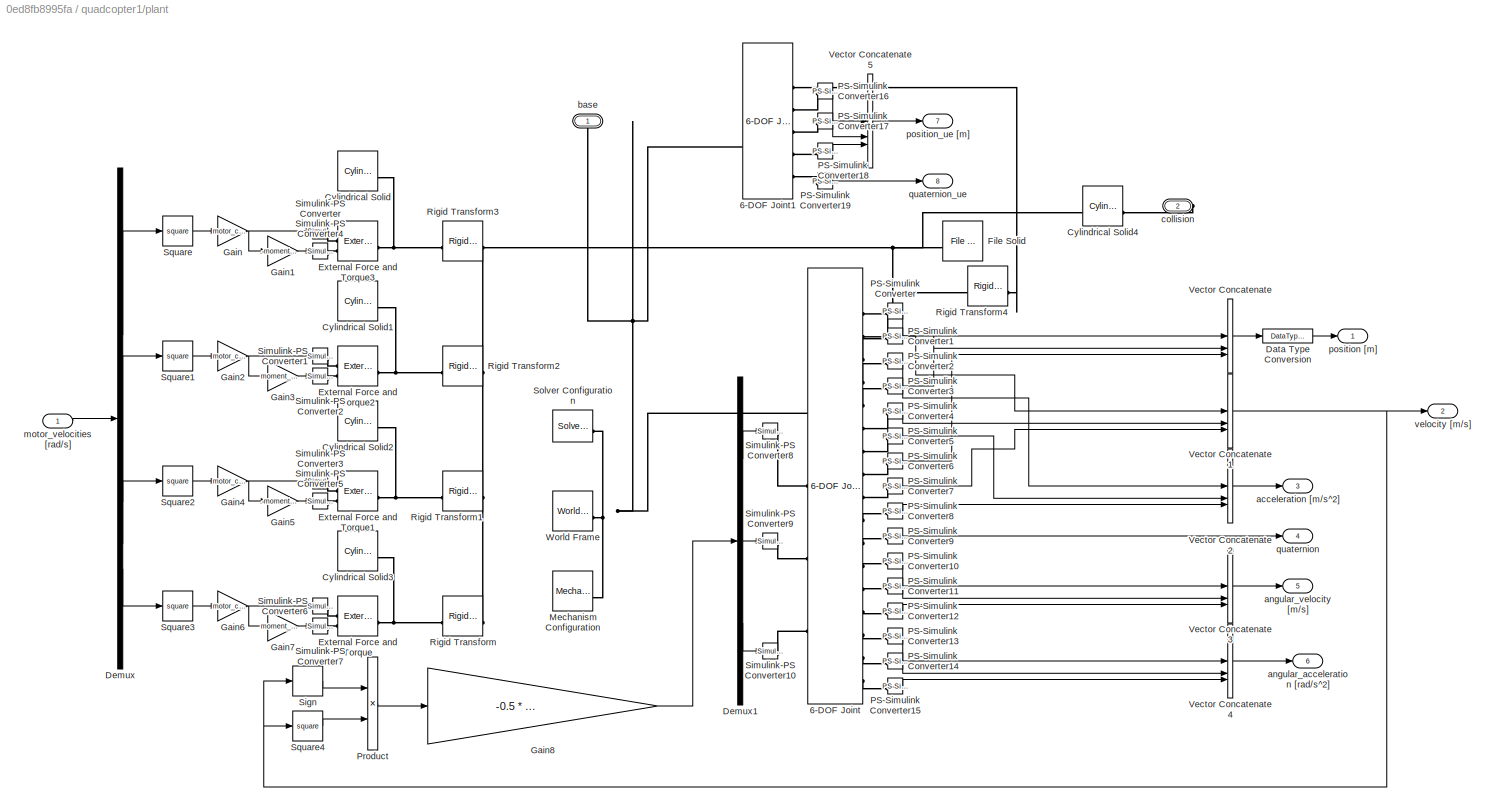
BLOCK [SubSystem] quadcopter1/plant
  PortSchema = {"entries":[{"content":{"sides":[{"content":{"connectorIds":["In1"]},"type":"ConnectorPlacement.EquallySpacedRectSide","uuid":"6e9c785b-7a58-4a83-84e6-bbea81e0823c"},{"content":{"connectorIds":["Out1","Out2","Out3","Out4","Out5","Out6","Out7","Out8"],"side":"RIGHT"},"type":"ConnectorPlacement.EquallySpacedRectSide","uuid":"b008e1e2-aa95-4897-b360-2fe655e93601"},{"content":{"connectorIds":[],"side"...<+450ch>
BLOCK [Reference] quadcopter1/plant/6-DOF Joint  REF=sm_lib/Joints/6-DOF Joint
  SourceBlock = sm_lib/Joints/6-DOF Joint
  SourceType = 6-DOF Joint
BLOCK [Reference] quadcopter1/plant/6-DOF Joint1  REF=sm_lib/Joints/6-DOF Joint
  SourceBlock = sm_lib/Joints/6-DOF Joint
  SourceType = 6-DOF Joint
BLOCK [Reference] quadcopter1/plant/Cylindrical Solid  REF=sm_lib/Body Elements/Cylindrical Solid
  SourceBlock = sm_lib/Body Elements/Cylindrical Solid
  SourceType = Cylindrical Solid
BLOCK [Reference] quadcopter1/plant/Cylindrical Solid1  REF=sm_lib/Body Elements/Cylindrical Solid
  SourceBlock = sm_lib/Body Elements/Cylindrical Solid
  SourceType = Cylindrical Solid
BLOCK [Reference] quadcopter1/plant/Cylindrical Solid2  REF=sm_lib/Body Elements/Cylindrical Solid
  SourceBlock = sm_lib/Body Elements/Cylindrical Solid
  SourceType = Cylindrical Solid
BLOCK [Reference] quadcopter1/plant/Cylindrical Solid3  REF=sm_lib/Body Elements/Cylindrical Solid
  SourceBlock = sm_lib/Body Elements/Cylindrical Solid
  SourceType = Cylindrical Solid
BLOCK [Reference] quadcopter1/plant/Cylindrical Solid4  REF=sm_lib/Body Elements/Cylindrical Solid
  SourceBlock = sm_lib/Body Elements/Cylindrical Solid
  SourceType = Cylindrical Solid
BLOCK [DataTypeConversion] quadcopter1/plant/Data Type Conversion
  OutDataTypeStr = single
  RndMeth = Floor
  SaturateOnIntegerOverflow = off
BLOCK [Demux] quadcopter1/plant/Demux
BLOCK [Demux] quadcopter1/plant/Demux1
  Outputs = 3
BLOCK [Reference] quadcopter1/plant/External Force and Torque  REF=sm_lib/Forces and
Torques/External Force
and Torque
  NameLocation = top
  SourceBlock = sm_lib/Forces and\nTorques/External Force\nand Torque
  SourceType = External Force\nand Torque
BLOCK [Reference] quadcopter1/plant/External Force and Torque1  REF=sm_lib/Forces and
Torques/External Force
and Torque
  NameLocation = top
  SourceBlock = sm_lib/Forces and\nTorques/External Force\nand Torque
  SourceType = External Force\nand Torque
BLOCK [Reference] quadcopter1/plant/External Force and Torque2  REF=sm_lib/Forces and
Torques/External Force
and Torque
  NameLocation = top
  SourceBlock = sm_lib/Forces and\nTorques/External Force\nand Torque
  SourceType = External Force\nand Torque
BLOCK [Reference] quadcopter1/plant/External Force and Torque3  REF=sm_lib/Forces and
Torques/External Force
and Torque
  NameLocation = top
  SourceBlock = sm_lib/Forces and\nTorques/External Force\nand Torque
  SourceType = External Force\nand Torque
BLOCK [Reference] quadcopter1/plant/File Solid  REF=sm_lib/Body Elements/File Solid
  SourceBlock = sm_lib/Body Elements/File Solid
  SourceType = File Solid
BLOCK [Gain] quadcopter1/plant/Gain
  Gain = motor_constant
BLOCK [Gain] quadcopter1/plant/Gain1
  Gain = -moment_constant
BLOCK [Gain] quadcopter1/plant/Gain2
  Gain = motor_constant
BLOCK [Gain] quadcopter1/plant/Gain3
  Gain = moment_constant
BLOCK [Gain] quadcopter1/plant/Gain4
  Gain = motor_constant
BLOCK [Gain] quadcopter1/plant/Gain5
  Gain = -moment_constant
BLOCK [Gain] quadcopter1/plant/Gain6
  Gain = motor_constant
BLOCK [Gain] quadcopter1/plant/Gain7
  Gain = moment_constant
BLOCK [Gain] quadcopter1/plant/Gain8
  Gain = -0.5 * drag_coefficient * reference_area
BLOCK [Reference] quadcopter1/plant/Mechanism Configuration  REF=sm_lib/Utilities/Mechanism
Configuration
  SourceBlock = sm_lib/Utilities/Mechanism\nConfiguration
  SourceType = Mechanism\nConfiguration
BLOCK [Reference] quadcopter1/plant/PS-Simulink Converter  REF=nesl_utility/PS-Simulink
Converter
  SourceBlock = nesl_utility/PS-Simulink\nConverter
  SourceType = PS-Simulink\nConverter
BLOCK [Reference] quadcopter1/plant/PS-Simulink Converter1  REF=nesl_utility/PS-Simulink
Converter
  SourceBlock = nesl_utility/PS-Simulink\nConverter
  SourceType = PS-Simulink\nConverter
BLOCK [Reference] quadcopter1/plant/PS-Simulink Converter10  REF=nesl_utility/PS-Simulink
Converter
  SourceBlock = nesl_utility/PS-Simulink\nConverter
  SourceType = PS-Simulink\nConverter
BLOCK [Reference] quadcopter1/plant/PS-Simulink Converter11  REF=nesl_utility/PS-Simulink
Converter
  SourceBlock = nesl_utility/PS-Simulink\nConverter
  SourceType = PS-Simulink\nConverter
BLOCK [Reference] quadcopter1/plant/PS-Simulink Converter12  REF=nesl_utility/PS-Simulink
Converter
  SourceBlock = nesl_utility/PS-Simulink\nConverter
  SourceType = PS-Simulink\nConverter
BLOCK [Reference] quadcopter1/plant/PS-Simulink Converter13  REF=nesl_utility/PS-Simulink
Converter
  SourceBlock = nesl_utility/PS-Simulink\nConverter
  SourceType = PS-Simulink\nConverter
BLOCK [Reference] quadcopter1/plant/PS-Simulink Converter14  REF=nesl_utility/PS-Simulink
Converter
  SourceBlock = nesl_utility/PS-Simulink\nConverter
  SourceType = PS-Simulink\nConverter
BLOCK [Reference] quadcopter1/plant/PS-Simulink Converter15  REF=nesl_utility/PS-Simulink
Converter
  SourceBlock = nesl_utility/PS-Simulink\nConverter
  SourceType = PS-Simulink\nConverter
BLOCK [Reference] quadcopter1/plant/PS-Simulink Converter16  REF=nesl_utility/PS-Simulink
Converter
  SourceBlock = nesl_utility/PS-Simulink\nConverter
  SourceType = PS-Simulink\nConverter
BLOCK [Reference] quadcopter1/plant/PS-Simulink Converter17  REF=nesl_utility/PS-Simulink
Converter
  SourceBlock = nesl_utility/PS-Simulink\nConverter
  SourceType = PS-Simulink\nConverter
BLOCK [Reference] quadcopter1/plant/PS-Simulink Converter18  REF=nesl_utility/PS-Simulink
Converter
  SourceBlock = nesl_utility/PS-Simulink\nConverter
  SourceType = PS-Simulink\nConverter
BLOCK [Reference] quadcopter1/plant/PS-Simulink Converter19  REF=nesl_utility/PS-Simulink
Converter
  SourceBlock = nesl_utility/PS-Simulink\nConverter
  SourceType = PS-Simulink\nConverter
BLOCK [Reference] quadcopter1/plant/PS-Simulink Converter2  REF=nesl_utility/PS-Simulink
Converter
  SourceBlock = nesl_utility/PS-Simulink\nConverter
  SourceType = PS-Simulink\nConverter
BLOCK [Reference] quadcopter1/plant/PS-Simulink Converter3  REF=nesl_utility/PS-Simulink
Converter
  SourceBlock = nesl_utility/PS-Simulink\nConverter
  SourceType = PS-Simulink\nConverter
BLOCK [Reference] quadcopter1/plant/PS-Simulink Converter4  REF=nesl_utility/PS-Simulink
Converter
  SourceBlock = nesl_utility/PS-Simulink\nConverter
  SourceType = PS-Simulink\nConverter
BLOCK [Reference] quadcopter1/plant/PS-Simulink Converter5  REF=nesl_utility/PS-Simulink
Converter
  SourceBlock = nesl_utility/PS-Simulink\nConverter
  SourceType = PS-Simulink\nConverter
BLOCK [Reference] quadcopter1/plant/PS-Simulink Converter6  REF=nesl_utility/PS-Simulink
Converter
  SourceBlock = nesl_utility/PS-Simulink\nConverter
  SourceType = PS-Simulink\nConverter
BLOCK [Reference] quadcopter1/plant/PS-Simulink Converter7  REF=nesl_utility/PS-Simulink
Converter
  SourceBlock = nesl_utility/PS-Simulink\nConverter
  SourceType = PS-Simulink\nConverter
BLOCK [Reference] quadcopter1/plant/PS-Simulink Converter8  REF=nesl_utility/PS-Simulink
Converter
  SourceBlock = nesl_utility/PS-Simulink\nConverter
  SourceType = PS-Simulink\nConverter
BLOCK [Reference] quadcopter1/plant/PS-Simulink Converter9  REF=nesl_utility/PS-Simulink
Converter
  SourceBlock = nesl_utility/PS-Simulink\nConverter
  SourceType = PS-Simulink\nConverter
BLOCK [Product] quadcopter1/plant/Product
BLOCK [Reference] quadcopter1/plant/Rigid Transform  REF=sm_lib/Frames and
Transforms/Rigid
Transform
  NameLocation = top
  SourceBlock = sm_lib/Frames and\nTransforms/Rigid\nTransform
  SourceType = Rigid\nTransform
BLOCK [Reference] quadcopter1/plant/Rigid Transform1  REF=sm_lib/Frames and
Transforms/Rigid
Transform
  NameLocation = top
  SourceBlock = sm_lib/Frames and\nTransforms/Rigid\nTransform
  SourceType = Rigid\nTransform
BLOCK [Reference] quadcopter1/plant/Rigid Transform2  REF=sm_lib/Frames and
Transforms/Rigid
Transform
  NameLocation = top
  SourceBlock = sm_lib/Frames and\nTransforms/Rigid\nTransform
  SourceType = Rigid\nTransform
BLOCK [Reference] quadcopter1/plant/Rigid Transform3  REF=sm_lib/Frames and
Transforms/Rigid
Transform
  NameLocation = top
  SourceBlock = sm_lib/Frames and\nTransforms/Rigid\nTransform
  SourceType = Rigid\nTransform
BLOCK [Reference] quadcopter1/plant/Rigid Transform4  REF=sm_lib/Frames and
Transforms/Rigid
Transform
  SourceBlock = sm_lib/Frames and\nTransforms/Rigid\nTransform
  SourceType = Rigid\nTransform
BLOCK [Signum] quadcopter1/plant/Sign
BLOCK [Reference] quadcopter1/plant/Simulink-PS Converter  REF=nesl_utility/Simulink-PS
Converter
  SourceBlock = nesl_utility/Simulink-PS\nConverter
  SourceType = Simulink-PS\nConverter
BLOCK [Reference] quadcopter1/plant/Simulink-PS Converter1  REF=nesl_utility/Simulink-PS
Converter
  SourceBlock = nesl_utility/Simulink-PS\nConverter
  SourceType = Simulink-PS\nConverter
BLOCK [Reference] quadcopter1/plant/Simulink-PS Converter10  REF=nesl_utility/Simulink-PS
Converter
  SourceBlock = nesl_utility/Simulink-PS\nConverter
  SourceType = Simulink-PS\nConverter
BLOCK [Reference] quadcopter1/plant/Simulink-PS Converter2  REF=nesl_utility/Simulink-PS
Converter
  SourceBlock = nesl_utility/Simulink-PS\nConverter
  SourceType = Simulink-PS\nConverter
BLOCK [Reference] quadcopter1/plant/Simulink-PS Converter3  REF=nesl_utility/Simulink-PS
Converter
  SourceBlock = nesl_utility/Simulink-PS\nConverter
  SourceType = Simulink-PS\nConverter
BLOCK [Reference] quadcopter1/plant/Simulink-PS Converter4  REF=nesl_utility/Simulink-PS
Converter
  SourceBlock = nesl_utility/Simulink-PS\nConverter
  SourceType = Simulink-PS\nConverter
BLOCK [Reference] quadcopter1/plant/Simulink-PS Converter5  REF=nesl_utility/Simulink-PS
Converter
  SourceBlock = nesl_utility/Simulink-PS\nConverter
  SourceType = Simulink-PS\nConverter
BLOCK [Reference] quadcopter1/plant/Simulink-PS Converter6  REF=nesl_utility/Simulink-PS
Converter
  SourceBlock = nesl_utility/Simulink-PS\nConverter
  SourceType = Simulink-PS\nConverter
BLOCK [Reference] quadcopter1/plant/Simulink-PS Converter7  REF=nesl_utility/Simulink-PS
Converter
  SourceBlock = nesl_utility/Simulink-PS\nConverter
  SourceType = Simulink-PS\nConverter
BLOCK [Reference] quadcopter1/plant/Simulink-PS Converter8  REF=nesl_utility/Simulink-PS
Converter
  SourceBlock = nesl_utility/Simulink-PS\nConverter
  SourceType = Simulink-PS\nConverter
BLOCK [Reference] quadcopter1/plant/Simulink-PS Converter9  REF=nesl_utility/Simulink-PS
Converter
  SourceBlock = nesl_utility/Simulink-PS\nConverter
  SourceType = Simulink-PS\nConverter
BLOCK [Reference] quadcopter1/plant/Solver Configuration  REF=nesl_utility/Solver
Configuration
  SourceBlock = nesl_utility/Solver\nConfiguration
  SourceType = Solver\nConfiguration
BLOCK [Math] quadcopter1/plant/Square
  Operator = square
BLOCK [Math] quadcopter1/plant/Square1
  Operator = square
BLOCK [Math] quadcopter1/plant/Square2
  Operator = square
BLOCK [Math] quadcopter1/plant/Square3
  Operator = square
BLOCK [Math] quadcopter1/plant/Square4
  Operator = square
BLOCK [Concatenate] quadcopter1/plant/Vector Concatenate
  Mode = Multidimensional array
  NumInputs = 3
BLOCK [Concatenate] quadcopter1/plant/Vector Concatenate1
  Mode = Multidimensional array
  NumInputs = 3
BLOCK [Concatenate] quadcopter1/plant/Vector Concatenate2
  Mode = Multidimensional array
  NumInputs = 3
BLOCK [Concatenate] quadcopter1/plant/Vector Concatenate3
  Mode = Multidimensional array
  NumInputs = 3
BLOCK [Concatenate] quadcopter1/plant/Vector Concatenate4
  Mode = Multidimensional array
  NumInputs = 3
BLOCK [Concatenate] quadcopter1/plant/Vector Concatenate5
  Mode = Multidimensional array
  NumInputs = 3
BLOCK [Reference] quadcopter1/plant/World Frame  REF=sm_lib/Frames and
Transforms/World Frame
  SourceBlock = sm_lib/Frames and\nTransforms/World Frame
  SourceType = World Frame
BLOCK [Outport] quadcopter1/plant/acceleration [m//s^2]
  Port = 3
BLOCK [Outport] quadcopter1/plant/angular_acceleration [rad//s^2]
  Port = 6
BLOCK [Outport] quadcopter1/plant/angular_velocity [m//s]
  Port = 5
BLOCK [PMIOPort] quadcopter1/plant/base
  Side = Right
BLOCK [PMIOPort] quadcopter1/plant/collision
  Port = 2
  Side = Right
BLOCK [Inport] quadcopter1/plant/motor_velocities [rad//s]
BLOCK [Outport] quadcopter1/plant/position [m]
BLOCK [Outport] quadcopter1/plant/position_ue [m]
  Port = 7
BLOCK [Outport] quadcopter1/plant/quaternion
  Port = 4
  PortDimensions = [1 4]
BLOCK [Outport] quadcopter1/plant/quaternion_ue
  Port = 8
BLOCK [Outport] quadcopter1/plant/velocity [m//s]
  Port = 2
BLOCK [Outport] quadcopter1/position
BLOCK [SubSystem] quadcopter1/position controller
BLOCK [Constant] quadcopter1/position controller/Constant
  Value = 3
BLOCK [Demux] quadcopter1/position controller/Demux
  Outputs = 3
BLOCK [Demux] quadcopter1/position controller/Demux1
  Outputs = 3
BLOCK [Demux] quadcopter1/position controller/Demux3
  Outputs = 3
BLOCK [Derivative] quadcopter1/position controller/Derivative
BLOCK [Gain] quadcopter1/position controller/Gain
  Gain = 7
BLOCK [Gain] quadcopter1/position controller/Gain1
  Gain = 0.1
BLOCK [Gain] quadcopter1/position controller/Gain2
BLOCK [Integrator] quadcopter1/position controller/Integrator
BLOCK [Gain] quadcopter1/position controller/Multiply
  Gain = g
  NameLocation = right
BLOCK [Mux] quadcopter1/position controller/Mux2
  DisplayOption = bar
  Inputs = 3
BLOCK [Sum] quadcopter1/position controller/Sum
  Inputs = +|-
BLOCK [Sum] quadcopter1/position controller/Sum1
  Inputs = +|-
BLOCK [Sum] quadcopter1/position controller/Sum2
  Inputs = |++
BLOCK [Sum] quadcopter1/position controller/Sum3
  Inputs = +++
BLOCK [Sum] quadcopter1/position controller/Sum4
  Inputs = +|+|+
BLOCK [Scope] quadcopter1/position controller/X pose
  Floating = off
  NumInputPorts = 2
BLOCK [Scope] quadcopter1/position controller/Y pose
  Floating = off
  NumInputPorts = 2
BLOCK [SubSystem] quadcopter1/position controller/compute_roll_pitch
  ErrorFcn = Stateflow.Translate.translate
  PermitHierarchicalResolution = ExplicitOnly
  SFBlockType = MATLAB Function
  TreatAsAtomicUnit = on
BLOCK [Demux] quadcopter1/position controller/compute_roll_pitch/ Demux 
  Outputs = 1
BLOCK [S-Function] quadcopter1/position controller/compute_roll_pitch/ SFunction 
  EnableBusSupport = on
  FunctionName = sf_sfun
  PortCounts = [2 3]
  SFcnIsStateOwnerBlock = off
  SFunctionDeploymentMode = off
  Tag = Stateflow S-Function 9
BLOCK [Terminator] quadcopter1/position controller/compute_roll_pitch/ Terminator 
BLOCK [Inport] quadcopter1/position controller/compute_roll_pitch/F_d
BLOCK [Outport] quadcopter1/position controller/compute_roll_pitch/pitch
  Port = 2
BLOCK [Outport] quadcopter1/position controller/compute_roll_pitch/roll
BLOCK [Inport] quadcopter1/position controller/compute_roll_pitch/yaw_d
  Port = 2
BLOCK [Constant] quadcopter1/position controller/gravity compensation1
  NameLocation = top
  Value = mass_total
  VectorParams1D = off
BLOCK [Gain] quadcopter1/position controller/mass
  Gain = mass_total
BLOCK [Outport] quadcopter1/position controller/pitch [rad]
  Port = 3
BLOCK [Inport] quadcopter1/position controller/position [m]
BLOCK [Outport] quadcopter1/position controller/roll [rad]
  Port = 2
BLOCK [SubSystem] quadcopter1/position controller/saturation
BLOCK [Product] quadcopter1/position controller/saturation/Divide
  Inputs = **/
BLOCK [DotProduct] quadcopter1/position controller/saturation/Dot Product
  OutDataTypeStr = Inherit: Inherit via internal rule
BLOCK [Sqrt] quadcopter1/position controller/saturation/Sqrt1
BLOCK [Sum] quadcopter1/position controller/saturation/Sum3
  Inputs = -+|
BLOCK [Switch] quadcopter1/position controller/saturation/Switch
  Criteria = u2 > Threshold
  InputSameDT = off
  SaturateOnIntegerOverflow = off
BLOCK [Inport] quadcopter1/position controller/saturation/input
BLOCK [Outport] quadcopter1/position controller/saturation/output
BLOCK [Inport] quadcopter1/position controller/saturation/value
  Port = 2
BLOCK [Inport] quadcopter1/position controller/setpoint_acceleration [m//s^2]
  Port = 5
BLOCK [Inport] quadcopter1/position controller/setpoint_position [m]
  Port = 3
BLOCK [Inport] quadcopter1/position controller/setpoint_velocity [m//s]
  Port = 4
BLOCK [Outport] quadcopter1/position controller/thrust [N]
BLOCK [Inport] quadcopter1/position controller/velocity [m//s]
  Port = 2
BLOCK [Gain] quadcopter1/position controller/velocity gain
  Gain = 2.6
BLOCK [Inport] quadcopter1/position controller/yaw [rad]
  Port = 6
BLOCK [Outport] quadcopter1/position_ue
  Port = 2
BLOCK [SubSystem] quadcopter1/quat 2 euler (ROS)
  ErrorFcn = Stateflow.Translate.translate
  PermitHierarchicalResolution = ExplicitOnly
  SFBlockType = MATLAB Function
  TreatAsAtomicUnit = on
BLOCK [Demux] quadcopter1/quat 2 euler (ROS)/ Demux 
  Outputs = 1
BLOCK [S-Function] quadcopter1/quat 2 euler (ROS)/ SFunction 
  EnableBusSupport = on
  FunctionName = sf_sfun
  PortCounts = [1 4]
  SFcnIsStateOwnerBlock = off
  SFunctionDeploymentMode = off
  Tag = Stateflow S-Function 10
BLOCK [Terminator] quadcopter1/quat 2 euler (ROS)/ Terminator 
BLOCK [Outport] quadcopter1/quat 2 euler (ROS)/pitch_rad
  Port = 2
BLOCK [Inport] quadcopter1/quat 2 euler (ROS)/q
BLOCK [Outport] quadcopter1/quat 2 euler (ROS)/roll_rad
BLOCK [Outport] quadcopter1/quat 2 euler (ROS)/yaw_rad
  Port = 3
BLOCK [SubSystem] quadcopter1/quat 2 euler (UE)
  ErrorFcn = Stateflow.Translate.translate
  PermitHierarchicalResolution = ExplicitOnly
  SFBlockType = MATLAB Function
  TreatAsAtomicUnit = on
BLOCK [Demux] quadcopter1/quat 2 euler (UE)/ Demux 
  Outputs = 1
BLOCK [S-Function] quadcopter1/quat 2 euler (UE)/ SFunction 
  EnableBusSupport = on
  FunctionName = sf_sfun
  PortCounts = [1 2]
  SFcnIsStateOwnerBlock = off
  SFunctionDeploymentMode = off
  Tag = Stateflow S-Function 11
BLOCK [Terminator] quadcopter1/quat 2 euler (UE)/ Terminator 
BLOCK [Outport] quadcopter1/quat 2 euler (UE)/attitude
BLOCK [Inport] quadcopter1/quat 2 euler (UE)/q
BLOCK [Inport] quadcopter1/setpoint_acceleration
  Port = 3
BLOCK [Inport] quadcopter1/setpoint_position
BLOCK [Inport] quadcopter1/setpoint_velocity
  Port = 2
BLOCK [SubSystem] quat 2 euler (ROS)
  ErrorFcn = Stateflow.Translate.translate
  PermitHierarchicalResolution = ExplicitOnly
  SFBlockType = MATLAB Function
  TreatAsAtomicUnit = on
BLOCK [Demux] quat 2 euler (ROS)/ Demux 
  Outputs = 1
BLOCK [S-Function] quat 2 euler (ROS)/ SFunction 
  EnableBusSupport = on
  FunctionName = sf_sfun
  PortCounts = [1 4]
  SFcnIsStateOwnerBlock = off
  SFunctionDeploymentMode = off
  Tag = Stateflow S-Function 14
BLOCK [Terminator] quat 2 euler (ROS)/ Terminator 
BLOCK [Outport] quat 2 euler (ROS)/pitch_rad
  Port = 2
BLOCK [Inport] quat 2 euler (ROS)/q
BLOCK [Outport] quat 2 euler (ROS)/roll_rad
BLOCK [Outport] quat 2 euler (ROS)/yaw_rad
  Port = 3
BLOCK [SubSystem] receive imu
BLOCK [BusSelector] receive imu/Bus Selector1
  OutputSignals = values
BLOCK [Demux] receive imu/Demux
  Outputs = 128
BLOCK [Mux] receive imu/Mux1
  DisplayOption = bar
  Inputs = 3
BLOCK [Reference] receive imu/Subscribe2  REF=ros2lib/Subscribe  (lib defined in slx_3c1549211f48)
  SourceBlock = ros2lib/Subscribe
  SourceType = ROS2 Subscribe
BLOCK [Terminator] receive imu/Terminator1
BLOCK [Outport] receive imu/imu
BLOCK [SubSystem] receive motors
BLOCK [BusSelector] receive motors/Bus Selector1
  OutputSignals = values
BLOCK [Demux] receive motors/Demux
  Outputs = 128
BLOCK [Mux] receive motors/Mux1
  DisplayOption = bar
BLOCK [Reference] receive motors/Subscribe2  REF=ros2lib/Subscribe  (lib defined in slx_3c1549211f48)
  SourceBlock = ros2lib/Subscribe
  SourceType = ROS2 Subscribe
BLOCK [Terminator] receive motors/Terminator1
BLOCK [Outport] receive motors/motors
BLOCK [SubSystem] receive position
BLOCK [BusSelector] receive position/Bus Selector
  OutputSignals = position.x,position.y,position.z,orientation.x,orientation.y,orientation.z,orientation.w
BLOCK [Mux] receive position/Mux
  DisplayOption = bar
  Inputs = 3
BLOCK [Mux] receive position/Mux1
  DisplayOption = bar
BLOCK [Reference] receive position/Subscribe1  REF=ros2lib/Subscribe  (lib defined in slx_3c1549211f48)
  SourceBlock = ros2lib/Subscribe
  SourceType = ROS2 Subscribe
BLOCK [Terminator] receive position/Terminator5
BLOCK [Outport] receive position/position
BLOCK [Outport] receive position/quaternions
  Port = 2
BLOCK [SubSystem] receive setpoint position
  Commented = on
BLOCK [BusSelector] receive setpoint position/Bus Selector
  OutputSignals = x,y,z
BLOCK [Mux] receive setpoint position/Mux
  DisplayOption = bar
  Inputs = 3
BLOCK [Reference] receive setpoint position/Subscribe  REF=ros2lib/Subscribe  (lib defined in slx_3c1549211f48)
  SourceBlock = ros2lib/Subscribe
  SourceType = ROS2 Subscribe
BLOCK [Terminator] receive setpoint position/Terminator5
BLOCK [Outport] receive setpoint position/setpoint_position
BLOCK [SubSystem] send attitude commands
BLOCK [Reference] send attitude commands/Blank Message  REF=ros2lib/Blank Message  (lib defined in slx_3c1549211f48)
  SourceBlock = ros2lib/Blank Message
  SourceType = ROS2 Blank Message
BLOCK [BusAssignment] send attitude commands/Bus Assignment
  AssignedSignals = linear.x,linear.y,linear.z,angular.z
BLOCK [Demux] send attitude commands/Demux2
BLOCK [Display] send attitude commands/Display
  Decimation = 1
BLOCK [EnablePort] send attitude commands/Enable
BLOCK [Gain] send attitude commands/Gain
  Gain = 0.05509309526681948
BLOCK [Gain] send attitude commands/Gain1
  Gain = 0.1533929510783798
BLOCK [Gain] send attitude commands/Gain2
  Gain = 0
BLOCK [Gain] send attitude commands/Gain6
  Gain = 40000
BLOCK [Gain] send attitude commands/Gain7
  Gain = 0
BLOCK [Gain] send attitude commands/Gain8
  Gain = 0
BLOCK [Gain] send attitude commands/Gain9
  Gain = 0
BLOCK [Inport] send attitude commands/In1
BLOCK [Reference] send attitude commands/Publish  REF=ros2lib/Publish  (lib defined in slx_3c1549211f48)
  SourceBlock = ros2lib/Publish
  SourceType = ROS2 Publish
BLOCK [Scope] send attitude commands/Scope
  Floating = off
  NumInputPorts = 1
  ScopeSpecificationString = Simulink.scopes.TimeScopeBlockCfg('CurrentConfiguration', extmgr.ConfigurationSet(extmgr.Configuration('Core','General UI',true),extmgr.Configuration('Core','Source UI',true),extmgr.Configuration('Sources','WiredSimulink',true,'DataLoggingVariableName','ScopeData3'),extmgr.Configuration('Visuals','Time Domain',true,'SerializedDisplays',{struct('MinYLimReal','-224.608','MaxYLimReal','223.61939','YL...<+1487ch>
BLOCK [SliderBlock] send attitude commands/Slider
  ScaleMax = 3
  TickInterval = 0.1
BLOCK [Reference] send attitude commands/Slider Gain  REF=simulink/Math
Operations/Slider
Gain
  SourceBlock = simulink/Math\nOperations/Slider\nGain
  SourceType = Slider Gain
BLOCK [SliderBlock] send attitude commands/Slider1
BLOCK [SliderBlock] send attitude commands/Slider2
  ScaleMax = 5
  TickInterval = 0.2
BLOCK [Step] send attitude commands/Step
  SampleTime = 0
BLOCK [Step] send attitude commands/Step1
  After = 0
  SampleTime = 0
BLOCK [Step] send attitude commands/Step2
  SampleTime = 0
BLOCK [Step] send attitude commands/Step3
  After = 0
  SampleTime = 0
BLOCK [Sum] send attitude commands/Sum
  Inputs = |+-
BLOCK [Sum] send attitude commands/Sum1
  Inputs = |+-
BLOCK [Terminator] send attitude commands/Terminator
BLOCK [ZeroOrderHold] send attitude commands/Zero-Order Hold
  SampleTime = 1/25
BLOCK [Inport] send attitude commands/roll
  Port = 3
BLOCK [Inport] send attitude commands/yaw 
  Port = 2
BLOCK [SubSystem] send attitude commands1
  Commented = on
BLOCK [Reference] send attitude commands1/Blank Message  REF=ros2lib/Blank Message  (lib defined in slx_3c1549211f48)
  SourceBlock = ros2lib/Blank Message
  SourceType = ROS2 Blank Message
BLOCK [BusAssignment] send attitude commands1/Bus Assignment
  AssignedSignals = linear.x,linear.y,linear.z,angular.z
BLOCK [Demux] send attitude commands1/Demux2
BLOCK [Display] send attitude commands1/Display
  Decimation = 1
BLOCK [EnablePort] send attitude commands1/Enable
BLOCK [Inport] send attitude commands1/In1
BLOCK [Reference] send attitude commands1/Publish  REF=ros2lib/Publish  (lib defined in slx_3c1549211f48)
  SourceBlock = ros2lib/Publish
  SourceType = ROS2 Publish
BLOCK [Step] send attitude commands1/Step
  After = [38500; 0; (10*pi)/180 ; 0]
  SampleTime = 0
BLOCK [Step] send attitude commands1/Step1
  After = 0
  SampleTime = 0
BLOCK [Step] send attitude commands1/Step2
  After = (10*pi)/180
  SampleTime = 0
BLOCK [Step] send attitude commands1/Step3
  After = 38500
  SampleTime = 0
BLOCK [Step] send attitude commands1/Step4
  After = 0
  SampleTime = 0
BLOCK [ZeroOrderHold] send attitude commands1/Zero-Order Hold
  SampleTime = 1/25
BLOCK [SubSystem] send setpoint position
  Commented = on
BLOCK [EnablePort] send setpoint position/Enable
BLOCK [Inport] send setpoint position/p
  OutDataTypeStr = single
BLOCK [SubSystem] send setpoint position/send setpoint position
BLOCK [Reference] send setpoint position/send setpoint position/Blank Message  REF=ros2lib/Blank Message  (lib defined in slx_3c1549211f48)
  SourceBlock = ros2lib/Blank Message
  SourceType = ROS2 Blank Message
BLOCK [BusAssignment] send setpoint position/send setpoint position/Bus Assignment
  AssignedSignals = x,y,z
BLOCK [Demux] send setpoint position/send setpoint position/Demux
  Outputs = 3
BLOCK [Reference] send setpoint position/send setpoint position/Publish  REF=ros2lib/Publish  (lib defined in slx_3c1549211f48)
  SourceBlock = ros2lib/Publish
  SourceType = ROS2 Publish
BLOCK [Step] send setpoint position/send setpoint position/Step
  After = 0
  OutDataTypeStr = single
  SampleTime = 0
BLOCK [Step] send setpoint position/send setpoint position/Step1
  After = -6
  Before = -6
  OutDataTypeStr = single
  SampleTime = 0
BLOCK [Step] send setpoint position/send setpoint position/Step2
  Before = 1
  OutDataTypeStr = single
  SampleTime = 0
BLOCK [Terminator] send setpoint position/send setpoint position/Terminator
BLOCK [Terminator] send setpoint position/send setpoint position/Terminator1
BLOCK [Terminator] send setpoint position/send setpoint position/Terminator2
BLOCK [ZeroOrderHold] send setpoint position/send setpoint position/Zero-Order Hold
  SampleTime = publish_rate
BLOCK [Inport] send setpoint position/send setpoint position/p
BLOCK [Constant] setpoint_acceleration
  Value = [0 ; 0 ; 0]
  VectorParams1D = off
BLOCK [Constant] setpoint_acceleration1
  Value = [0 ; 0 ; 0]
  VectorParams1D = off
BLOCK [Constant] setpoint_acceleration2
  Value = [[0 ; -6 ; 1],[0 ; -6 ; 1]]
  VectorParams1D = off
BLOCK [Constant] setpoint_velocity
  Value = [0 ; 0 ; 0]
  VectorParams1D = off
BLOCK [Constant] setpoint_velocity1
  Value = [0 ; 0 ; 0]
  VectorParams1D = off
BLOCK [Constant] setpoint_velocity2
  Value = [0 ; -6 ; 1]
  VectorParams1D = off
BLOCK [MATLABFcn] velocity
  Commented = on
  MATLABFcn = eval(poly_traj, u, 1)
  Output1D = off
  OutputDimensions = [3 1]
BLOCK [SubSystem] waypoint navigation (Ex. 6.1 and 7.1)
  Commented = on
  ErrorFcn = Stateflow.Translate.translate
  PermitHierarchicalResolution = ExplicitOnly
  PortSchema = {"entries":[{"content":{"sides":[{"content":{"connectorIds":["In1","Out1"]},"type":"ConnectorPlacement.EquallySpacedRectSide","uuid":"7c2fff0d-1179-4786-9432-1971d7acd904"},{"content":{"connectorIds":["In2"],"side":"RIGHT"},"type":"ConnectorPlacement.EquallySpacedRectSide","uuid":"377a8206-b310-41c0-9a17-faf5318c89cb"},{"content":{"connectorIds":[],"side":"TOP"},"type":"ConnectorPlacement.EquallyS...<+390ch>
  SFBlockType = Chart
  TreatAsAtomicUnit = on
BLOCK [Demux] waypoint navigation (Ex. 6.1 and 7.1)/ Demux 
  Outputs = 1
BLOCK [S-Function] waypoint navigation (Ex. 6.1 and 7.1)/ SFunction 
  EnableBusSupport = on
  FunctionName = sf_sfun
  PortCounts = [2 2]
  SFcnIsStateOwnerBlock = off
  SFunctionDeploymentMode = off
  Tag = Stateflow S-Function 5
BLOCK [Terminator] waypoint navigation (Ex. 6.1 and 7.1)/ Terminator 
BLOCK [Inport] waypoint navigation (Ex. 6.1 and 7.1)/p
  Port = 2
BLOCK [Outport] waypoint navigation (Ex. 6.1 and 7.1)/pd
BLOCK [Inport] waypoint navigation (Ex. 6.1 and 7.1)/r
BLOCK [SubSystem] waypoint navigation (Ex. 6.1 and 7.1)1
  Commented = on
  ErrorFcn = Stateflow.Translate.translate
  PermitHierarchicalResolution = ExplicitOnly
  PortSchema = {"entries":[{"content":{"sides":[{"content":{"connectorIds":["In1","Out1"]},"type":"ConnectorPlacement.EquallySpacedRectSide","uuid":"7c2fff0d-1179-4786-9432-1971d7acd904"},{"content":{"connectorIds":["In2"],"side":"RIGHT"},"type":"ConnectorPlacement.EquallySpacedRectSide","uuid":"377a8206-b310-41c0-9a17-faf5318c89cb"},{"content":{"connectorIds":[],"side":"TOP"},"type":"ConnectorPlacement.EquallyS...<+390ch>
  SFBlockType = Chart
  TreatAsAtomicUnit = on
BLOCK [Demux] waypoint navigation (Ex. 6.1 and 7.1)1/ Demux 
  Outputs = 1
BLOCK [S-Function] waypoint navigation (Ex. 6.1 and 7.1)1/ SFunction 
  EnableBusSupport = on
  FunctionName = sf_sfun
  PortCounts = [2 2]
  SFcnIsStateOwnerBlock = off
  SFunctionDeploymentMode = off
  Tag = Stateflow S-Function 13
BLOCK [Terminator] waypoint navigation (Ex. 6.1 and 7.1)1/ Terminator 
BLOCK [Inport] waypoint navigation (Ex. 6.1 and 7.1)1/p
  Port = 2
BLOCK [Outport] waypoint navigation (Ex. 6.1 and 7.1)1/pd
BLOCK [Inport] waypoint navigation (Ex. 6.1 and 7.1)1/r
ANNOTATION (root): MIT License <copyright redacted>
ANNOTATION (root): ROS blocks (Ex. 7.1 and 7.2)
ANNOTATION (root): Trajectories (Ex. 6.4 and 7.3)
ANNOTATION (root): Visualization in Unity (optional)
ANNOTATION joystick (needs mapping): pitch \in [-1, 1]
ANNOTATION joystick (needs mapping): roll \in [-1, 1]
ANNOTATION joystick (needs mapping): thrust \in [-1, 1]
ANNOTATION joystick (needs mapping): yaw \in [-1, 1]
ANNOTATION position controller: PI for x and y pose
ANNOTATION position controller: PI for x and y vel
ANNOTATION position controller: PI for z pose
ANNOTATION position controller: PI for z vel
ANNOTATION quadcopter: force
ANNOTATION quadcopter1: force
LINE Arming Crazyflie/Arm:1 -> Arming Crazyflie/Manual Switch:2
LINE Arming Crazyflie/Blank Message:1 -> Arming Crazyflie/Bus Assignment:1
LINE Arming Crazyflie/Bus Assignment:1 -> Arming Crazyflie/Call Service:1
LINE Arming Crazyflie/Call Service:1 -> Arming Crazyflie/Terminator2:1
LINE Arming Crazyflie/Call Service:2 -> Arming Crazyflie/Terminator3:1
LINE Arming Crazyflie/Manual Switch:1 -> Arming Crazyflie/Bus Assignment:2
LINE Arming Crazyflie/UnArm:1 -> Arming Crazyflie/Manual Switch:1
NET Constant1:1 -> waypoint navigation (Ex. 6.1 and 7.1)1:1, waypoint navigation (Ex. 6.1 and 7.1):1
LINE Constant2:1 -> position controller:6
LINE Constant3:1 -> Mux:4
LINE Constant:1 -> Sum:1
LINE Data Type Conversion:1 -> Integrator:1
LINE Demux1:1 -> Scope1:1
LINE Demux1:2 -> Scope1:2
NET Demux1:3 -> Gain:1, Scope1:3
LINE Demux2:1 -> Scope5:1
LINE Demux2:2 -> Scope5:2
LINE Demux2:3 -> Scope5:3
LINE Demux2:4 -> Scope5:4
LINE Demux3:1 -> Terminator2:1
LINE Demux3:2 -> Terminator3:1
LINE Demux3:3 -> send attitude commands:2
LINE Demux:1 -> Scope3:1
LINE Demux:2 -> Scope3:2
NET Demux:3 -> Gain1:1, Scope3:3
LINE Derivative1:1 -> position controller:2
LINE Derivative:1 -> Scope2:1
LINE Discrete Derivative1:1 -> Discrete Derivative:1
LINE Discrete Derivative:1 -> Demux:1
LINE Gain1:1 -> Scope4:2
LINE Gain2:1 -> Demux3:1
NET Gain:1 -> Data Type Conversion:1, Scope4:1
LINE Integrator:1 -> Scope6:1
LINE Mux1:1 -> Gain2:1
LINE Mux:1 -> Display:1
NET NOT:1 -> quadcopter:5, send attitude commands:enable
LINE Ramp:1 -> Saturation1:1
NET Saturation1:1 -> acceleration:1, position:1, velocity:1
LINE Step:1 -> send attitude commands1:1
LINE Sum:1 -> Simulation 3D UAV Vehicle:1
LINE joystick (needs mapping)/Demux1:1 -> joystick (needs mapping)/Gain3:1
LINE joystick (needs mapping)/Demux1:2 -> joystick (needs mapping)/Gain2:1
LINE joystick (needs mapping)/Demux1:3 -> joystick (needs mapping)/Terminator1:1
LINE joystick (needs mapping)/Demux1:4 -> joystick (needs mapping)/Gain1:1
LINE joystick (needs mapping)/Demux1:5 -> joystick (needs mapping)/Gain:1
LINE joystick (needs mapping)/Demux1:6 -> joystick (needs mapping)/Terminator9:1
LINE joystick (needs mapping)/Demux1:7 -> joystick (needs mapping)/Terminator8:1
LINE joystick (needs mapping)/Demux1:8 -> joystick (needs mapping)/Terminator2:1
LINE joystick (needs mapping)/Gain1:1 -> joystick (needs mapping)/Mux1:4
LINE joystick (needs mapping)/Gain2:1 -> joystick (needs mapping)/Mux1:1
LINE joystick (needs mapping)/Gain3:1 -> joystick (needs mapping)/Mux1:2
LINE joystick (needs mapping)/Gain:1 -> joystick (needs mapping)/Mux1:3
LINE joystick (needs mapping)/Joystick Input:1 -> joystick (needs mapping)/Demux1:1
LINE joystick (needs mapping)/Joystick Input:2 -> joystick (needs mapping)/Select button to switch mode:1
NET joystick (needs mapping)/Mux1:1 -> joystick (needs mapping)/Scope:1, joystick (needs mapping)/sticks:1
NET joystick (needs mapping)/Select button to switch mode:1 -> joystick (needs mapping)/Data Type Conversion:1, joystick (needs mapping)/Scope1:1, joystick (needs mapping)/button:1
NET joystick (needs mapping):1 -> quadcopter:4, send attitude commands:1
NET joystick (needs mapping):2 -> NOT:1, send setpoint position:enable
LINE position controller/Constant1:1 -> position controller/saturation1:2
LINE position controller/Constant:1 -> position controller/saturation:2
LINE position controller/Demux1:1 -> position controller/X pose:2
LINE position controller/Demux1:2 -> position controller/Y pose:2
LINE position controller/Demux2:1 -> position controller/Mux:1
LINE position controller/Demux2:2 -> position controller/Mux:2
NET position controller/Demux2:3 -> position controller/Gain4:1, position controller/Gain5:1, position controller/Gain6:1
LINE position controller/Demux3:1 -> position controller/Mux2:1
LINE position controller/Demux3:2 -> position controller/Mux2:2
LINE position controller/Demux3:3 -> position controller/Sum2:1
LINE position controller/Demux4:1 -> position controller/Mux3:1
LINE position controller/Demux4:2 -> position controller/Mux3:2
NET position controller/Demux4:3 -> position controller/Gain10:1, position controller/Gain11:1, position controller/Gain12:1
LINE position controller/Demux5:1 -> position controller/roll [rad]:1
LINE position controller/Demux5:2 -> position controller/pitch [rad]:1
LINE position controller/Demux:1 -> position controller/X pose:1
LINE position controller/Demux:2 -> position controller/Y pose:1
LINE position controller/Derivative1:1 -> position controller/Sum5:3
LINE position controller/Derivative2:1 -> position controller/Sum6:3
LINE position controller/Derivative3:1 -> position controller/Sum7:3
LINE position controller/Derivative:1 -> position controller/Sum4:3
LINE position controller/Gain10:1 -> position controller/Sum7:1
LINE position controller/Gain11:1 -> position controller/Integrator3:1
LINE position controller/Gain12:1 -> position controller/Derivative3:1
LINE position controller/Gain1:1 -> position controller/Integrator:1
LINE position controller/Gain2:1 -> position controller/Derivative:1
LINE position controller/Gain3:1 -> position controller/thrust [N]:1
LINE position controller/Gain4:1 -> position controller/Sum5:1
LINE position controller/Gain5:1 -> position controller/Integrator1:1
LINE position controller/Gain6:1 -> position controller/Derivative1:1
LINE position controller/Gain7:1 -> position controller/Sum6:1
LINE position controller/Gain8:1 -> position controller/Integrator2:1
LINE position controller/Gain9:1 -> position controller/Derivative2:1
LINE position controller/Gain:1 -> position controller/Sum4:1
LINE position controller/Integrator1:1 -> position controller/Sum5:2
LINE position controller/Integrator2:1 -> position controller/Sum6:2
LINE position controller/Integrator3:1 -> position controller/Sum7:2
LINE position controller/Integrator:1 -> position controller/Sum4:2
NET position controller/Multiply:1 -> position controller/Display:1, position controller/Sum2:2
LINE position controller/Mux1:1 -> position controller/Sum3:1
NET position controller/Mux2:1 -> position controller/Demux5:1, position controller/compute_roll_pitch:1
NET position controller/Mux3:1 -> position controller/Gain7:1, position controller/Gain8:1, position controller/Gain9:1
LINE position controller/Mux4:1 -> position controller/saturation1:1
NET position controller/Mux:1 -> position controller/Gain1:1, position controller/Gain2:1, position controller/Gain:1
LINE position controller/Sum1:1 -> position controller/Demux4:1
NET position controller/Sum2:1 -> position controller/Gain3:1, position controller/Mux2:3
LINE position controller/Sum3:1 -> position controller/Demux3:1
LINE position controller/Sum4:1 -> position controller/Mux1:1
LINE position controller/Sum5:1 -> position controller/Mux1:2
LINE position controller/Sum6:1 -> position controller/Mux4:1
LINE position controller/Sum7:1 -> position controller/Mux4:2
LINE position controller/Sum:1 -> position controller/Demux2:1
LINE position controller/gravity compensation1:1 -> position controller/Multiply:1
LINE position controller/mass:1 -> position controller/Sum3:3
NET position controller/position [m]:1 -> position controller/Demux1:1, position controller/Sum:2
LINE position controller/saturation/Divide:1 -> position controller/saturation/Switch:1
LINE position controller/saturation/Dot Product:1 -> position controller/saturation/Sqrt1:1
NET position controller/saturation/Sqrt1:1 -> position controller/saturation/Divide:3, position controller/saturation/Sum3:2
LINE position controller/saturation/Sum3:1 -> position controller/saturation/Switch:2
LINE position controller/saturation/Switch:1 -> position controller/saturation/output:1
NET position controller/saturation/input:1 -> position controller/saturation/Divide:2, position controller/saturation/Dot Product:1, position controller/saturation/Dot Product:2, position controller/saturation/Switch:3
NET position controller/saturation/value:1 -> position controller/saturation/Divide:1, position controller/saturation/Sum3:1
LINE position controller/saturation1/Divide:1 -> position controller/saturation1/Switch:1
LINE position controller/saturation1/Dot Product:1 -> position controller/saturation1/Sqrt1:1
NET position controller/saturation1/Sqrt1:1 -> position controller/saturation1/Divide:3, position controller/saturation1/Sum3:2
LINE position controller/saturation1/Sum3:1 -> position controller/saturation1/Switch:2
LINE position controller/saturation1/Switch:1 -> position controller/saturation1/output:1
NET position controller/saturation1/input:1 -> position controller/saturation1/Divide:2, position controller/saturation1/Dot Product:1, position controller/saturation1/Dot Product:2, position controller/saturation1/Switch:3
NET position controller/saturation1/value:1 -> position controller/saturation1/Divide:1, position controller/saturation1/Sum3:1
LINE position controller/setpoint_acceleration [m//s^2]:1 -> position controller/mass:1
NET position controller/setpoint_position [m]:1 -> position controller/Demux:1, position controller/Sum:1
LINE position controller/setpoint_velocity [m//s]:1 -> position controller/Sum1:1
LINE position controller/velocity [m//s]:1 -> position controller/Sum1:2
LINE position controller/yaw [rad]:1 -> position controller/compute_roll_pitch:2
NET position controller:1 -> Mux:1, Scope7:1
NET position controller:2 -> Mux:2, Scope7:3
NET position controller:3 -> Mux:3, Scope7:2
LINE quadcopter/Constant2:1 -> quadcopter/Subsystem:4
NET quadcopter/Constant3:1 -> quadcopter/Mux:4, quadcopter/position controller:6
LINE quadcopter/Constant:1 -> quadcopter/Sum:1
LINE quadcopter/Demux1:1 -> quadcopter/Sum:2
LINE quadcopter/Demux1:2 -> quadcopter/Mux1:2
LINE quadcopter/Demux1:3 -> quadcopter/Mux1:3
LINE quadcopter/Demux1:4 -> quadcopter/Integrator:1
LINE quadcopter/Demux:1 -> quadcopter/Divide:1
LINE quadcopter/Demux:2 -> quadcopter/Subsystem:1
LINE quadcopter/Demux:3 -> quadcopter/Subsystem:2
LINE quadcopter/Demux:4 -> quadcopter/Subsystem:3
LINE quadcopter/Divide:1 -> quadcopter/Vector Concatenate:1
LINE quadcopter/Integrator:1 -> quadcopter/Mux1:4
NET quadcopter/Interpreted MATLAB Function:1 -> quadcopter/MATLAB Function:1, quadcopter/Subsystem:5
LINE quadcopter/MATLAB Function:1 -> quadcopter/Divide:2
LINE quadcopter/Mux1:1 -> quadcopter/Switch:1
LINE quadcopter/Mux2:1 -> quadcopter/Subsystem:7
LINE quadcopter/Mux:1 -> quadcopter/Switch:3
LINE quadcopter/Optitrack position:1 -> quadcopter/position controller:1
LINE quadcopter/Subsystem/Actual orientation roll-pitch-yaw in rad:1 -> quadcopter/Subsystem/Demux:1
NET quadcopter/Subsystem/Degrees to Radians:1 -> quadcopter/Subsystem/Demux2:1, quadcopter/Subsystem/Sum:1
LINE quadcopter/Subsystem/Demux1:1 -> quadcopter/Subsystem/Mux2:1
LINE quadcopter/Subsystem/Demux1:3 -> quadcopter/Subsystem/Mux2:3
LINE quadcopter/Subsystem/Demux2:2 -> quadcopter/Subsystem/Mux2:2
NET quadcopter/Subsystem/Demux:1 -> quadcopter/Subsystem/Mux1:1, quadcopter/Subsystem/Roll:2
NET quadcopter/Subsystem/Demux:2 -> quadcopter/Subsystem/Mux1:2, quadcopter/Subsystem/Pitch:2
NET quadcopter/Subsystem/Demux:3 -> quadcopter/Subsystem/Mux1:3, quadcopter/Subsystem/Yaw:2
LINE quadcopter/Subsystem/Derivative:1 -> quadcopter/Subsystem/Sum3:3
LINE quadcopter/Subsystem/Gain1:1 -> quadcopter/Subsystem/Sum:2
LINE quadcopter/Subsystem/Gain2:1 -> quadcopter/Subsystem/Gain:1
NET quadcopter/Subsystem/Gain3:1 -> quadcopter/Subsystem/MATLAB Function1:3, quadcopter/Subsystem/Mux:3
LINE quadcopter/Subsystem/Gain4:1 -> quadcopter/Subsystem/Sum2:1
LINE quadcopter/Subsystem/Gain5:1 -> quadcopter/Subsystem/Derivative:1
NET quadcopter/Subsystem/Gain6:1 -> quadcopter/Subsystem/MATLAB Function1:1, quadcopter/Subsystem/Mux:1
NET quadcopter/Subsystem/Gain7:1 -> quadcopter/Subsystem/MATLAB Function1:2, quadcopter/Subsystem/Mux:2
LINE quadcopter/Subsystem/Gain8:1 -> quadcopter/Subsystem/Integrator:1
LINE quadcopter/Subsystem/Gain9:1 -> quadcopter/Subsystem/Sum3:1
LINE quadcopter/Subsystem/Gain:1 -> quadcopter/Subsystem/Demux1:1
LINE quadcopter/Subsystem/Integrator:1 -> quadcopter/Subsystem/Sum3:2
LINE quadcopter/Subsystem/MATLAB Function1:1 -> quadcopter/Subsystem/Gain2:1
LINE quadcopter/Subsystem/Multiply:1 -> quadcopter/Subsystem/Sum1:1
LINE quadcopter/Subsystem/Mux1:1 -> quadcopter/Subsystem/Gain4:1
LINE quadcopter/Subsystem/Mux:1 -> quadcopter/Subsystem/Sum2:2
LINE quadcopter/Subsystem/Product:1 -> quadcopter/Subsystem/Gain1:1
LINE quadcopter/Subsystem/Sum1:1 -> quadcopter/Subsystem/Product:2
NET quadcopter/Subsystem/Sum2:1 -> quadcopter/Subsystem/Gain5:1, quadcopter/Subsystem/Gain8:1, quadcopter/Subsystem/Gain9:1
LINE quadcopter/Subsystem/Sum3:1 -> quadcopter/Subsystem/Degrees to Radians:1
LINE quadcopter/Subsystem/Sum:1 -> quadcopter/Subsystem/torques [N*m]:1
LINE quadcopter/Subsystem/Transpose:1 -> quadcopter/Subsystem/Product:1
LINE quadcopter/Subsystem/angular_velocity [rad//s]:1 -> quadcopter/Subsystem/Sum1:2
NET quadcopter/Subsystem/rotation_matrix:1 -> quadcopter/Subsystem/MATLAB Function1:4, quadcopter/Subsystem/Transpose:1
NET quadcopter/Subsystem/setpoint_pitch [rad]:1 -> quadcopter/Subsystem/Gain7:1, quadcopter/Subsystem/Pitch:1
NET quadcopter/Subsystem/setpoint_roll [rad]:1 -> quadcopter/Subsystem/Gain6:1, quadcopter/Subsystem/Roll:1
NET quadcopter/Subsystem/setpoint_yaw [rad]:1 -> quadcopter/Subsystem/Gain3:1, quadcopter/Subsystem/Yaw:1
LINE quadcopter/Subsystem/setpoint_yaw_rate [rad//s]:1 -> quadcopter/Subsystem/Multiply:1
LINE quadcopter/Subsystem:1 -> quadcopter/Vector Concatenate:2
LINE quadcopter/Sum:1 -> quadcopter/Mux1:1
LINE quadcopter/Switch:1 -> quadcopter/Demux:1
LINE quadcopter/Vector Concatenate:1 -> quadcopter/mixer:1
LINE quadcopter/joystick:1 -> quadcopter/Demux1:1
LINE quadcopter/joystick_on:1 -> quadcopter/Switch:2
LINE quadcopter/mixer/Gain5:1 -> quadcopter/mixer/Saturation:1
LINE quadcopter/mixer/In1:1 -> quadcopter/mixer/Gain5:1
LINE quadcopter/mixer/Saturation:1 -> quadcopter/mixer/Sqrt:1
LINE quadcopter/mixer/Sqrt:1 -> quadcopter/mixer/Out1:1
LINE quadcopter/mixer:1 -> quadcopter/plant:1
LINE quadcopter/plant/Data Type Conversion:1 -> quadcopter/plant/position [m]:1
LINE quadcopter/plant/Demux1:1 -> quadcopter/plant/Simulink-PS Converter8:1
LINE quadcopter/plant/Demux1:2 -> quadcopter/plant/Simulink-PS Converter9:1
LINE quadcopter/plant/Demux1:3 -> quadcopter/plant/Simulink-PS Converter10:1
LINE quadcopter/plant/Demux:1 -> quadcopter/plant/Square:1
LINE quadcopter/plant/Demux:2 -> quadcopter/plant/Square1:1
LINE quadcopter/plant/Demux:3 -> quadcopter/plant/Square2:1
LINE quadcopter/plant/Demux:4 -> quadcopter/plant/Square3:1
LINE quadcopter/plant/Gain1:1 -> quadcopter/plant/Simulink-PS Converter4:1
NET quadcopter/plant/Gain2:1 -> quadcopter/plant/Gain3:1, quadcopter/plant/Simulink-PS Converter1:1
LINE quadcopter/plant/Gain3:1 -> quadcopter/plant/Simulink-PS Converter2:1
NET quadcopter/plant/Gain4:1 -> quadcopter/plant/Gain5:1, quadcopter/plant/Simulink-PS Converter3:1
LINE quadcopter/plant/Gain5:1 -> quadcopter/plant/Simulink-PS Converter5:1
NET quadcopter/plant/Gain6:1 -> quadcopter/plant/Gain7:1, quadcopter/plant/Simulink-PS Converter6:1
LINE quadcopter/plant/Gain7:1 -> quadcopter/plant/Simulink-PS Converter7:1
LINE quadcopter/plant/Gain8:1 -> quadcopter/plant/Demux1:1
NET quadcopter/plant/Gain:1 -> quadcopter/plant/Gain1:1, quadcopter/plant/Simulink-PS Converter:1
LINE quadcopter/plant/PS-Simulink Converter10:1 -> quadcopter/plant/Vector Concatenate3:1
LINE quadcopter/plant/PS-Simulink Converter11:1 -> quadcopter/plant/Vector Concatenate3:2
LINE quadcopter/plant/PS-Simulink Converter12:1 -> quadcopter/plant/Vector Concatenate3:3
LINE quadcopter/plant/PS-Simulink Converter13:1 -> quadcopter/plant/Vector Concatenate4:1
LINE quadcopter/plant/PS-Simulink Converter14:1 -> quadcopter/plant/Vector Concatenate4:2
LINE quadcopter/plant/PS-Simulink Converter15:1 -> quadcopter/plant/Vector Concatenate4:3
LINE quadcopter/plant/PS-Simulink Converter16:1 -> quadcopter/plant/Vector Concatenate5:1
LINE quadcopter/plant/PS-Simulink Converter17:1 -> quadcopter/plant/Vector Concatenate5:2
LINE quadcopter/plant/PS-Simulink Converter18:1 -> quadcopter/plant/Vector Concatenate5:3
LINE quadcopter/plant/PS-Simulink Converter19:1 -> quadcopter/plant/quaternion_ue:1
LINE quadcopter/plant/PS-Simulink Converter1:1 -> quadcopter/plant/Vector Concatenate1:1
LINE quadcopter/plant/PS-Simulink Converter2:1 -> quadcopter/plant/Vector Concatenate2:1
LINE quadcopter/plant/PS-Simulink Converter3:1 -> quadcopter/plant/Vector Concatenate:2
LINE quadcopter/plant/PS-Simulink Converter4:1 -> quadcopter/plant/Vector Concatenate1:2
LINE quadcopter/plant/PS-Simulink Converter5:1 -> quadcopter/plant/Vector Concatenate2:2
LINE quadcopter/plant/PS-Simulink Converter6:1 -> quadcopter/plant/Vector Concatenate:3
LINE quadcopter/plant/PS-Simulink Converter7:1 -> quadcopter/plant/Vector Concatenate1:3
LINE quadcopter/plant/PS-Simulink Converter8:1 -> quadcopter/plant/Vector Concatenate2:3
LINE quadcopter/plant/PS-Simulink Converter9:1 -> quadcopter/plant/quaternion:1
LINE quadcopter/plant/PS-Simulink Converter:1 -> quadcopter/plant/Vector Concatenate:1
LINE quadcopter/plant/Product:1 -> quadcopter/plant/Gain8:1
LINE quadcopter/plant/Sign:1 -> quadcopter/plant/Product:1
LINE quadcopter/plant/Square1:1 -> quadcopter/plant/Gain2:1
LINE quadcopter/plant/Square2:1 -> quadcopter/plant/Gain4:1
LINE quadcopter/plant/Square3:1 -> quadcopter/plant/Gain6:1
LINE quadcopter/plant/Square4:1 -> quadcopter/plant/Product:2
LINE quadcopter/plant/Square:1 -> quadcopter/plant/Gain:1
NET quadcopter/plant/Vector Concatenate1:1 -> quadcopter/plant/Sign:1, quadcopter/plant/Square4:1, quadcopter/plant/velocity [m//s]:1
LINE quadcopter/plant/Vector Concatenate2:1 -> quadcopter/plant/acceleration [m//s^2]:1
LINE quadcopter/plant/Vector Concatenate3:1 -> quadcopter/plant/angular_velocity [m//s]:1
LINE quadcopter/plant/Vector Concatenate4:1 -> quadcopter/plant/angular_acceleration [rad//s^2]:1
LINE quadcopter/plant/Vector Concatenate5:1 -> quadcopter/plant/position_ue [m]:1
LINE quadcopter/plant/Vector Concatenate:1 -> quadcopter/plant/Data Type Conversion:1
LINE quadcopter/plant/motor_velocities [rad//s]:1 -> quadcopter/plant/Demux:1
LINE quadcopter/plant:1 -> quadcopter/position:1
NET quadcopter/plant:2 -> quadcopter/Terminator5:1, quadcopter/position controller:2
LINE quadcopter/plant:3 -> quadcopter/Terminator1:1
NET quadcopter/plant:4 -> quadcopter/Interpreted MATLAB Function:1, quadcopter/Terminator6:1, quadcopter/quat 2 euler (ROS):1
NET quadcopter/plant:5 -> quadcopter/Subsystem:6, quadcopter/Terminator7:1
LINE quadcopter/plant:6 -> quadcopter/Terminator:1
LINE quadcopter/plant:7 -> quadcopter/position_ue:1
LINE quadcopter/plant:8 -> quadcopter/quat 2 euler (UE):1
LINE quadcopter/position controller/Constant:1 -> quadcopter/position controller/saturation:2
LINE quadcopter/position controller/Demux1:1 -> quadcopter/position controller/X pose:2
LINE quadcopter/position controller/Demux1:2 -> quadcopter/position controller/Y pose:2
LINE quadcopter/position controller/Demux3:1 -> quadcopter/position controller/Mux2:1
LINE quadcopter/position controller/Demux3:2 -> quadcopter/position controller/Mux2:2
LINE quadcopter/position controller/Demux3:3 -> quadcopter/position controller/Sum2:1
LINE quadcopter/position controller/Demux:1 -> quadcopter/position controller/X pose:1
LINE quadcopter/position controller/Demux:2 -> quadcopter/position controller/Y pose:1
LINE quadcopter/position controller/Derivative:1 -> quadcopter/position controller/Sum4:3
LINE quadcopter/position controller/Gain1:1 -> quadcopter/position controller/Integrator:1
LINE quadcopter/position controller/Gain2:1 -> quadcopter/position controller/Derivative:1
LINE quadcopter/position controller/Gain:1 -> quadcopter/position controller/Sum4:1
LINE quadcopter/position controller/Integrator:1 -> quadcopter/position controller/Sum4:2
LINE quadcopter/position controller/Multiply:1 -> quadcopter/position controller/Sum2:2
LINE quadcopter/position controller/Mux2:1 -> quadcopter/position controller/compute_roll_pitch:1
LINE quadcopter/position controller/Sum1:1 -> quadcopter/position controller/velocity gain:1
NET quadcopter/position controller/Sum2:1 -> quadcopter/position controller/Mux2:3, quadcopter/position controller/thrust [N]:1
LINE quadcopter/position controller/Sum3:1 -> quadcopter/position controller/Demux3:1
LINE quadcopter/position controller/Sum4:1 -> quadcopter/position controller/saturation:1
NET quadcopter/position controller/Sum:1 -> quadcopter/position controller/Gain1:1, quadcopter/position controller/Gain2:1, quadcopter/position controller/Gain:1
LINE quadcopter/position controller/compute_roll_pitch:1 -> quadcopter/position controller/roll [rad]:1
LINE quadcopter/position controller/compute_roll_pitch:2 -> quadcopter/position controller/pitch [rad]:1
LINE quadcopter/position controller/gravity compensation1:1 -> quadcopter/position controller/Multiply:1
LINE quadcopter/position controller/mass:1 -> quadcopter/position controller/Sum3:3
NET quadcopter/position controller/position [m]:1 -> quadcopter/position controller/Demux1:1, quadcopter/position controller/Sum:2
LINE quadcopter/position controller/saturation/Divide:1 -> quadcopter/position controller/saturation/Switch:1
LINE quadcopter/position controller/saturation/Dot Product:1 -> quadcopter/position controller/saturation/Sqrt1:1
NET quadcopter/position controller/saturation/Sqrt1:1 -> quadcopter/position controller/saturation/Divide:3, quadcopter/position controller/saturation/Sum3:2
LINE quadcopter/position controller/saturation/Sum3:1 -> quadcopter/position controller/saturation/Switch:2
LINE quadcopter/position controller/saturation/Switch:1 -> quadcopter/position controller/saturation/output:1
NET quadcopter/position controller/saturation/input:1 -> quadcopter/position controller/saturation/Divide:2, quadcopter/position controller/saturation/Dot Product:1, quadcopter/position controller/saturation/Dot Product:2, quadcopter/position controller/saturation/Switch:3
NET quadcopter/position controller/saturation/value:1 -> quadcopter/position controller/saturation/Divide:1, quadcopter/position controller/saturation/Sum3:1
LINE quadcopter/position controller/saturation:1 -> quadcopter/position controller/Sum3:1
LINE quadcopter/position controller/setpoint_acceleration [m//s^2]:1 -> quadcopter/position controller/mass:1
NET quadcopter/position controller/setpoint_position [m]:1 -> quadcopter/position controller/Demux:1, quadcopter/position controller/Sum:1
LINE quadcopter/position controller/setpoint_velocity [m//s]:1 -> quadcopter/position controller/Sum1:1
LINE quadcopter/position controller/velocity [m//s]:1 -> quadcopter/position controller/Sum1:2
LINE quadcopter/position controller/velocity gain:1 -> quadcopter/position controller/Sum3:2
LINE quadcopter/position controller/yaw [rad]:1 -> quadcopter/position controller/compute_roll_pitch:2
LINE quadcopter/position controller:1 -> quadcopter/Mux:1
LINE quadcopter/position controller:2 -> quadcopter/Mux:2
LINE quadcopter/position controller:3 -> quadcopter/Mux:3
NET quadcopter/quat 2 euler (ROS):1 -> quadcopter/Mux2:1, quadcopter/Terminator2:1
NET quadcopter/quat 2 euler (ROS):2 -> quadcopter/Mux2:2, quadcopter/Terminator3:1
NET quadcopter/quat 2 euler (ROS):3 -> quadcopter/Mux2:3, quadcopter/Terminator4:1
LINE quadcopter/quat 2 euler (UE):1 -> quadcopter/attitude_ue:1
LINE quadcopter/setpoint_acceleration:1 -> quadcopter/position controller:5
LINE quadcopter/setpoint_position:1 -> quadcopter/position controller:3
LINE quadcopter/setpoint_velocity:1 -> quadcopter/position controller:4
LINE quadcopter1/Constant2:1 -> quadcopter1/Subsystem:4
NET quadcopter1/Constant3:1 -> quadcopter1/Mux:4, quadcopter1/position controller:6
LINE quadcopter1/Constant:1 -> quadcopter1/Sum:1
LINE quadcopter1/Demux1:1 -> quadcopter1/Sum:2
LINE quadcopter1/Demux1:2 -> quadcopter1/Mux1:2
LINE quadcopter1/Demux1:3 -> quadcopter1/Mux1:3
LINE quadcopter1/Demux1:4 -> quadcopter1/Integrator:1
LINE quadcopter1/Demux:1 -> quadcopter1/Divide:1
LINE quadcopter1/Demux:2 -> quadcopter1/Subsystem:1
LINE quadcopter1/Demux:3 -> quadcopter1/Subsystem:2
LINE quadcopter1/Demux:4 -> quadcopter1/Subsystem:3
LINE quadcopter1/Divide:1 -> quadcopter1/Vector Concatenate:1
LINE quadcopter1/Integrator:1 -> quadcopter1/Mux1:4
NET quadcopter1/Interpreted MATLAB Function:1 -> quadcopter1/MATLAB Function:1, quadcopter1/Subsystem:5
LINE quadcopter1/MATLAB Function:1 -> quadcopter1/Divide:2
LINE quadcopter1/Mux1:1 -> quadcopter1/Switch:1
LINE quadcopter1/Mux2:1 -> quadcopter1/Subsystem:7
LINE quadcopter1/Mux:1 -> quadcopter1/Switch:3
LINE quadcopter1/Optitrack position:1 -> quadcopter1/position controller:1
LINE quadcopter1/Subsystem/Actual orientation roll-pitch-yaw in rad:1 -> quadcopter1/Subsystem/Demux:1
NET quadcopter1/Subsystem/Degrees to Radians:1 -> quadcopter1/Subsystem/Demux2:1, quadcopter1/Subsystem/Sum:1
LINE quadcopter1/Subsystem/Demux1:1 -> quadcopter1/Subsystem/Mux2:1
LINE quadcopter1/Subsystem/Demux1:3 -> quadcopter1/Subsystem/Mux2:3
LINE quadcopter1/Subsystem/Demux2:2 -> quadcopter1/Subsystem/Mux2:2
NET quadcopter1/Subsystem/Demux:1 -> quadcopter1/Subsystem/Mux1:1, quadcopter1/Subsystem/Roll:2
NET quadcopter1/Subsystem/Demux:2 -> quadcopter1/Subsystem/Mux1:2, quadcopter1/Subsystem/Pitch:2
NET quadcopter1/Subsystem/Demux:3 -> quadcopter1/Subsystem/Mux1:3, quadcopter1/Subsystem/Yaw:2
LINE quadcopter1/Subsystem/Derivative:1 -> quadcopter1/Subsystem/Sum3:3
LINE quadcopter1/Subsystem/Gain1:1 -> quadcopter1/Subsystem/Sum:2
LINE quadcopter1/Subsystem/Gain2:1 -> quadcopter1/Subsystem/Gain:1
NET quadcopter1/Subsystem/Gain3:1 -> quadcopter1/Subsystem/MATLAB Function1:3, quadcopter1/Subsystem/Mux:3
LINE quadcopter1/Subsystem/Gain4:1 -> quadcopter1/Subsystem/Sum2:1
LINE quadcopter1/Subsystem/Gain5:1 -> quadcopter1/Subsystem/Derivative:1
NET quadcopter1/Subsystem/Gain6:1 -> quadcopter1/Subsystem/MATLAB Function1:1, quadcopter1/Subsystem/Mux:1
NET quadcopter1/Subsystem/Gain7:1 -> quadcopter1/Subsystem/MATLAB Function1:2, quadcopter1/Subsystem/Mux:2
LINE quadcopter1/Subsystem/Gain8:1 -> quadcopter1/Subsystem/Integrator:1
LINE quadcopter1/Subsystem/Gain9:1 -> quadcopter1/Subsystem/Sum3:1
LINE quadcopter1/Subsystem/Gain:1 -> quadcopter1/Subsystem/Demux1:1
LINE quadcopter1/Subsystem/Integrator:1 -> quadcopter1/Subsystem/Sum3:2
LINE quadcopter1/Subsystem/MATLAB Function1:1 -> quadcopter1/Subsystem/Gain2:1
LINE quadcopter1/Subsystem/Multiply:1 -> quadcopter1/Subsystem/Sum1:1
LINE quadcopter1/Subsystem/Mux1:1 -> quadcopter1/Subsystem/Gain4:1
LINE quadcopter1/Subsystem/Mux:1 -> quadcopter1/Subsystem/Sum2:2
LINE quadcopter1/Subsystem/Product:1 -> quadcopter1/Subsystem/Gain1:1
LINE quadcopter1/Subsystem/Sum1:1 -> quadcopter1/Subsystem/Product:2
NET quadcopter1/Subsystem/Sum2:1 -> quadcopter1/Subsystem/Gain5:1, quadcopter1/Subsystem/Gain8:1, quadcopter1/Subsystem/Gain9:1
LINE quadcopter1/Subsystem/Sum3:1 -> quadcopter1/Subsystem/Degrees to Radians:1
LINE quadcopter1/Subsystem/Sum:1 -> quadcopter1/Subsystem/torques [N*m]:1
LINE quadcopter1/Subsystem/Transpose:1 -> quadcopter1/Subsystem/Product:1
LINE quadcopter1/Subsystem/angular_velocity [rad//s]:1 -> quadcopter1/Subsystem/Sum1:2
NET quadcopter1/Subsystem/rotation_matrix:1 -> quadcopter1/Subsystem/MATLAB Function1:4, quadcopter1/Subsystem/Transpose:1
NET quadcopter1/Subsystem/setpoint_pitch [rad]:1 -> quadcopter1/Subsystem/Gain7:1, quadcopter1/Subsystem/Pitch:1
NET quadcopter1/Subsystem/setpoint_roll [rad]:1 -> quadcopter1/Subsystem/Gain6:1, quadcopter1/Subsystem/Roll:1
NET quadcopter1/Subsystem/setpoint_yaw [rad]:1 -> quadcopter1/Subsystem/Gain3:1, quadcopter1/Subsystem/Yaw:1
LINE quadcopter1/Subsystem/setpoint_yaw_rate [rad//s]:1 -> quadcopter1/Subsystem/Multiply:1
LINE quadcopter1/Subsystem:1 -> quadcopter1/Vector Concatenate:2
LINE quadcopter1/Sum:1 -> quadcopter1/Mux1:1
LINE quadcopter1/Switch:1 -> quadcopter1/Demux:1
LINE quadcopter1/Vector Concatenate:1 -> quadcopter1/mixer:1
LINE quadcopter1/joystick:1 -> quadcopter1/Demux1:1
LINE quadcopter1/joystick_on:1 -> quadcopter1/Switch:2
LINE quadcopter1/mixer/Gain5:1 -> quadcopter1/mixer/Saturation:1
LINE quadcopter1/mixer/In1:1 -> quadcopter1/mixer/Gain5:1
LINE quadcopter1/mixer/Saturation:1 -> quadcopter1/mixer/Sqrt:1
LINE quadcopter1/mixer/Sqrt:1 -> quadcopter1/mixer/Out1:1
LINE quadcopter1/mixer:1 -> quadcopter1/plant:1
LINE quadcopter1/plant/Data Type Conversion:1 -> quadcopter1/plant/position [m]:1
LINE quadcopter1/plant/Demux1:1 -> quadcopter1/plant/Simulink-PS Converter8:1
LINE quadcopter1/plant/Demux1:2 -> quadcopter1/plant/Simulink-PS Converter9:1
LINE quadcopter1/plant/Demux1:3 -> quadcopter1/plant/Simulink-PS Converter10:1
LINE quadcopter1/plant/Demux:1 -> quadcopter1/plant/Square:1
LINE quadcopter1/plant/Demux:2 -> quadcopter1/plant/Square1:1
LINE quadcopter1/plant/Demux:3 -> quadcopter1/plant/Square2:1
LINE quadcopter1/plant/Demux:4 -> quadcopter1/plant/Square3:1
LINE quadcopter1/plant/Gain1:1 -> quadcopter1/plant/Simulink-PS Converter4:1
NET quadcopter1/plant/Gain2:1 -> quadcopter1/plant/Gain3:1, quadcopter1/plant/Simulink-PS Converter1:1
LINE quadcopter1/plant/Gain3:1 -> quadcopter1/plant/Simulink-PS Converter2:1
NET quadcopter1/plant/Gain4:1 -> quadcopter1/plant/Gain5:1, quadcopter1/plant/Simulink-PS Converter3:1
LINE quadcopter1/plant/Gain5:1 -> quadcopter1/plant/Simulink-PS Converter5:1
NET quadcopter1/plant/Gain6:1 -> quadcopter1/plant/Gain7:1, quadcopter1/plant/Simulink-PS Converter6:1
LINE quadcopter1/plant/Gain7:1 -> quadcopter1/plant/Simulink-PS Converter7:1
LINE quadcopter1/plant/Gain8:1 -> quadcopter1/plant/Demux1:1
NET quadcopter1/plant/Gain:1 -> quadcopter1/plant/Gain1:1, quadcopter1/plant/Simulink-PS Converter:1
LINE quadcopter1/plant/PS-Simulink Converter10:1 -> quadcopter1/plant/Vector Concatenate3:1
LINE quadcopter1/plant/PS-Simulink Converter11:1 -> quadcopter1/plant/Vector Concatenate3:2
LINE quadcopter1/plant/PS-Simulink Converter12:1 -> quadcopter1/plant/Vector Concatenate3:3
LINE quadcopter1/plant/PS-Simulink Converter13:1 -> quadcopter1/plant/Vector Concatenate4:1
LINE quadcopter1/plant/PS-Simulink Converter14:1 -> quadcopter1/plant/Vector Concatenate4:2
LINE quadcopter1/plant/PS-Simulink Converter15:1 -> quadcopter1/plant/Vector Concatenate4:3
LINE quadcopter1/plant/PS-Simulink Converter16:1 -> quadcopter1/plant/Vector Concatenate5:1
LINE quadcopter1/plant/PS-Simulink Converter17:1 -> quadcopter1/plant/Vector Concatenate5:2
LINE quadcopter1/plant/PS-Simulink Converter18:1 -> quadcopter1/plant/Vector Concatenate5:3
LINE quadcopter1/plant/PS-Simulink Converter19:1 -> quadcopter1/plant/quaternion_ue:1
LINE quadcopter1/plant/PS-Simulink Converter1:1 -> quadcopter1/plant/Vector Concatenate1:1
LINE quadcopter1/plant/PS-Simulink Converter2:1 -> quadcopter1/plant/Vector Concatenate2:1
LINE quadcopter1/plant/PS-Simulink Converter3:1 -> quadcopter1/plant/Vector Concatenate:2
LINE quadcopter1/plant/PS-Simulink Converter4:1 -> quadcopter1/plant/Vector Concatenate1:2
LINE quadcopter1/plant/PS-Simulink Converter5:1 -> quadcopter1/plant/Vector Concatenate2:2
LINE quadcopter1/plant/PS-Simulink Converter6:1 -> quadcopter1/plant/Vector Concatenate:3
LINE quadcopter1/plant/PS-Simulink Converter7:1 -> quadcopter1/plant/Vector Concatenate1:3
LINE quadcopter1/plant/PS-Simulink Converter8:1 -> quadcopter1/plant/Vector Concatenate2:3
LINE quadcopter1/plant/PS-Simulink Converter9:1 -> quadcopter1/plant/quaternion:1
LINE quadcopter1/plant/PS-Simulink Converter:1 -> quadcopter1/plant/Vector Concatenate:1
LINE quadcopter1/plant/Product:1 -> quadcopter1/plant/Gain8:1
LINE quadcopter1/plant/Sign:1 -> quadcopter1/plant/Product:1
LINE quadcopter1/plant/Square1:1 -> quadcopter1/plant/Gain2:1
LINE quadcopter1/plant/Square2:1 -> quadcopter1/plant/Gain4:1
LINE quadcopter1/plant/Square3:1 -> quadcopter1/plant/Gain6:1
LINE quadcopter1/plant/Square4:1 -> quadcopter1/plant/Product:2
LINE quadcopter1/plant/Square:1 -> quadcopter1/plant/Gain:1
NET quadcopter1/plant/Vector Concatenate1:1 -> quadcopter1/plant/Sign:1, quadcopter1/plant/Square4:1, quadcopter1/plant/velocity [m//s]:1
LINE quadcopter1/plant/Vector Concatenate2:1 -> quadcopter1/plant/acceleration [m//s^2]:1
LINE quadcopter1/plant/Vector Concatenate3:1 -> quadcopter1/plant/angular_velocity [m//s]:1
LINE quadcopter1/plant/Vector Concatenate4:1 -> quadcopter1/plant/angular_acceleration [rad//s^2]:1
LINE quadcopter1/plant/Vector Concatenate5:1 -> quadcopter1/plant/position_ue [m]:1
LINE quadcopter1/plant/Vector Concatenate:1 -> quadcopter1/plant/Data Type Conversion:1
LINE quadcopter1/plant/motor_velocities [rad//s]:1 -> quadcopter1/plant/Demux:1
LINE quadcopter1/plant:1 -> quadcopter1/position:1
NET quadcopter1/plant:2 -> quadcopter1/Terminator5:1, quadcopter1/position controller:2
LINE quadcopter1/plant:3 -> quadcopter1/Terminator1:1
NET quadcopter1/plant:4 -> quadcopter1/Interpreted MATLAB Function:1, quadcopter1/Terminator6:1, quadcopter1/quat 2 euler (ROS):1
NET quadcopter1/plant:5 -> quadcopter1/Subsystem:6, quadcopter1/Terminator7:1
LINE quadcopter1/plant:6 -> quadcopter1/Terminator:1
LINE quadcopter1/plant:7 -> quadcopter1/position_ue:1
LINE quadcopter1/plant:8 -> quadcopter1/quat 2 euler (UE):1
LINE quadcopter1/position controller/Constant:1 -> quadcopter1/position controller/saturation:2
LINE quadcopter1/position controller/Demux1:1 -> quadcopter1/position controller/X pose:2
LINE quadcopter1/position controller/Demux1:2 -> quadcopter1/position controller/Y pose:2
LINE quadcopter1/position controller/Demux3:1 -> quadcopter1/position controller/Mux2:1
LINE quadcopter1/position controller/Demux3:2 -> quadcopter1/position controller/Mux2:2
LINE quadcopter1/position controller/Demux3:3 -> quadcopter1/position controller/Sum2:1
LINE quadcopter1/position controller/Demux:1 -> quadcopter1/position controller/X pose:1
LINE quadcopter1/position controller/Demux:2 -> quadcopter1/position controller/Y pose:1
LINE quadcopter1/position controller/Derivative:1 -> quadcopter1/position controller/Sum4:3
LINE quadcopter1/position controller/Gain1:1 -> quadcopter1/position controller/Integrator:1
LINE quadcopter1/position controller/Gain2:1 -> quadcopter1/position controller/Derivative:1
LINE quadcopter1/position controller/Gain:1 -> quadcopter1/position controller/Sum4:1
LINE quadcopter1/position controller/Integrator:1 -> quadcopter1/position controller/Sum4:2
LINE quadcopter1/position controller/Multiply:1 -> quadcopter1/position controller/Sum2:2
LINE quadcopter1/position controller/Mux2:1 -> quadcopter1/position controller/compute_roll_pitch:1
LINE quadcopter1/position controller/Sum1:1 -> quadcopter1/position controller/velocity gain:1
NET quadcopter1/position controller/Sum2:1 -> quadcopter1/position controller/Mux2:3, quadcopter1/position controller/thrust [N]:1
LINE quadcopter1/position controller/Sum3:1 -> quadcopter1/position controller/Demux3:1
LINE quadcopter1/position controller/Sum4:1 -> quadcopter1/position controller/saturation:1
NET quadcopter1/position controller/Sum:1 -> quadcopter1/position controller/Gain1:1, quadcopter1/position controller/Gain2:1, quadcopter1/position controller/Gain:1
LINE quadcopter1/position controller/compute_roll_pitch:1 -> quadcopter1/position controller/roll [rad]:1
LINE quadcopter1/position controller/compute_roll_pitch:2 -> quadcopter1/position controller/pitch [rad]:1
LINE quadcopter1/position controller/gravity compensation1:1 -> quadcopter1/position controller/Multiply:1
LINE quadcopter1/position controller/mass:1 -> quadcopter1/position controller/Sum3:3
NET quadcopter1/position controller/position [m]:1 -> quadcopter1/position controller/Demux1:1, quadcopter1/position controller/Sum:2
LINE quadcopter1/position controller/saturation/Divide:1 -> quadcopter1/position controller/saturation/Switch:1
LINE quadcopter1/position controller/saturation/Dot Product:1 -> quadcopter1/position controller/saturation/Sqrt1:1
NET quadcopter1/position controller/saturation/Sqrt1:1 -> quadcopter1/position controller/saturation/Divide:3, quadcopter1/position controller/saturation/Sum3:2
LINE quadcopter1/position controller/saturation/Sum3:1 -> quadcopter1/position controller/saturation/Switch:2
LINE quadcopter1/position controller/saturation/Switch:1 -> quadcopter1/position controller/saturation/output:1
NET quadcopter1/position controller/saturation/input:1 -> quadcopter1/position controller/saturation/Divide:2, quadcopter1/position controller/saturation/Dot Product:1, quadcopter1/position controller/saturation/Dot Product:2, quadcopter1/position controller/saturation/Switch:3
NET quadcopter1/position controller/saturation/value:1 -> quadcopter1/position controller/saturation/Divide:1, quadcopter1/position controller/saturation/Sum3:1
LINE quadcopter1/position controller/saturation:1 -> quadcopter1/position controller/Sum3:1
LINE quadcopter1/position controller/setpoint_acceleration [m//s^2]:1 -> quadcopter1/position controller/mass:1
NET quadcopter1/position controller/setpoint_position [m]:1 -> quadcopter1/position controller/Demux:1, quadcopter1/position controller/Sum:1
LINE quadcopter1/position controller/setpoint_velocity [m//s]:1 -> quadcopter1/position controller/Sum1:1
LINE quadcopter1/position controller/velocity [m//s]:1 -> quadcopter1/position controller/Sum1:2
LINE quadcopter1/position controller/velocity gain:1 -> quadcopter1/position controller/Sum3:2
LINE quadcopter1/position controller/yaw [rad]:1 -> quadcopter1/position controller/compute_roll_pitch:2
LINE quadcopter1/position controller:1 -> quadcopter1/Mux:1
LINE quadcopter1/position controller:2 -> quadcopter1/Mux:2
LINE quadcopter1/position controller:3 -> quadcopter1/Mux:3
NET quadcopter1/quat 2 euler (ROS):1 -> quadcopter1/Mux2:1, quadcopter1/Terminator2:1
NET quadcopter1/quat 2 euler (ROS):2 -> quadcopter1/Mux2:2, quadcopter1/Terminator3:1
NET quadcopter1/quat 2 euler (ROS):3 -> quadcopter1/Mux2:3, quadcopter1/Terminator4:1
LINE quadcopter1/quat 2 euler (UE):1 -> quadcopter1/attitude_ue:1
LINE quadcopter1/setpoint_acceleration:1 -> quadcopter1/position controller:5
LINE quadcopter1/setpoint_position:1 -> quadcopter1/position controller:3
LINE quadcopter1/setpoint_velocity:1 -> quadcopter1/position controller:4
LINE quadcopter:1 -> waypoint navigation (Ex. 6.1 and 7.1):2
LINE quadcopter:2 -> Terminator:1
LINE quadcopter:3 -> Terminator1:1
LINE quat 2 euler (ROS):1 -> Mux1:3
LINE quat 2 euler (ROS):2 -> Mux1:2
LINE quat 2 euler (ROS):3 -> Mux1:1
LINE receive imu/Bus Selector1:1 -> receive imu/Demux:1
LINE receive imu/Demux:1 -> receive imu/Mux1:1
LINE receive imu/Demux:2 -> receive imu/Mux1:2
LINE receive imu/Demux:3 -> receive imu/Mux1:3
LINE receive imu/Mux1:1 -> receive imu/imu:1
LINE receive imu/Subscribe2:1 -> receive imu/Terminator1:1
LINE receive imu/Subscribe2:2 -> receive imu/Bus Selector1:1
LINE receive imu:1 -> Demux1:1
LINE receive motors/Bus Selector1:1 -> receive motors/Demux:1
LINE receive motors/Demux:1 -> receive motors/Mux1:1
LINE receive motors/Demux:2 -> receive motors/Mux1:2
LINE receive motors/Demux:3 -> receive motors/Mux1:3
LINE receive motors/Demux:4 -> receive motors/Mux1:4
LINE receive motors/Mux1:1 -> receive motors/motors:1
LINE receive motors/Subscribe2:1 -> receive motors/Terminator1:1
LINE receive motors/Subscribe2:2 -> receive motors/Bus Selector1:1
LINE receive motors:1 -> Demux2:1
LINE receive position/Bus Selector:1 -> receive position/Mux:1
LINE receive position/Bus Selector:2 -> receive position/Mux:2
LINE receive position/Bus Selector:3 -> receive position/Mux:3
LINE receive position/Bus Selector:4 -> receive position/Mux1:1
LINE receive position/Bus Selector:5 -> receive position/Mux1:2
LINE receive position/Bus Selector:6 -> receive position/Mux1:3
LINE receive position/Bus Selector:7 -> receive position/Mux1:4
LINE receive position/Mux1:1 -> receive position/quaternions:1
LINE receive position/Mux:1 -> receive position/position:1
LINE receive position/Subscribe1:1 -> receive position/Terminator5:1
LINE receive position/Subscribe1:2 -> receive position/Bus Selector:1
NET receive position:1 -> Derivative1:1, Derivative:1, Discrete Derivative1:1, Scope:1, position controller:1, quadcopter:6, waypoint navigation (Ex. 6.1 and 7.1)1:2
LINE receive position:2 -> quat 2 euler (ROS):1
LINE receive setpoint position/Bus Selector:1 -> receive setpoint position/Mux:1
LINE receive setpoint position/Bus Selector:2 -> receive setpoint position/Mux:2
LINE receive setpoint position/Bus Selector:3 -> receive setpoint position/Mux:3
LINE receive setpoint position/Mux:1 -> receive setpoint position/setpoint_position:1
LINE receive setpoint position/Subscribe:1 -> receive setpoint position/Terminator5:1
LINE receive setpoint position/Subscribe:2 -> receive setpoint position/Bus Selector:1
LINE send attitude commands/Blank Message:1 -> send attitude commands/Bus Assignment:1
LINE send attitude commands/Bus Assignment:1 -> send attitude commands/Zero-Order Hold:1
LINE send attitude commands/Demux2:1 -> send attitude commands/Terminator:1
LINE send attitude commands/Demux2:2 -> send attitude commands/Gain7:1
LINE send attitude commands/Demux2:4 -> send attitude commands/Gain9:1
LINE send attitude commands/Gain1:1 -> send attitude commands/Gain2:1
LINE send attitude commands/Gain2:1 -> send attitude commands/Bus Assignment:5
LINE send attitude commands/Gain6:1 -> send attitude commands/Bus Assignment:4
LINE send attitude commands/Gain8:1 -> send attitude commands/Bus Assignment:2
LINE send attitude commands/Gain:1 -> send attitude commands/Bus Assignment:3
LINE send attitude commands/In1:1 -> send attitude commands/Demux2:1
LINE send attitude commands/Step1:1 -> send attitude commands/Sum1:1
LINE send attitude commands/Step2:1 -> send attitude commands/Gain8:1
LINE send attitude commands/Step3:1 -> send attitude commands/Sum:1
LINE send attitude commands/Step:1 -> send attitude commands/Gain6:1
LINE send attitude commands/Sum1:1 -> send attitude commands/Gain:1
LINE send attitude commands/Sum:1 -> send attitude commands/Gain1:1
LINE send attitude commands/Zero-Order Hold:1 -> send attitude commands/Publish:1
LINE send attitude commands/roll:1 -> send attitude commands/Sum1:2
NET send attitude commands/yaw :1 -> send attitude commands/Scope:1, send attitude commands/Sum:2
LINE send attitude commands1/Blank Message:1 -> send attitude commands1/Bus Assignment:1
LINE send attitude commands1/Bus Assignment:1 -> send attitude commands1/Zero-Order Hold:1
LINE send attitude commands1/Step1:1 -> send attitude commands1/Bus Assignment:2
LINE send attitude commands1/Step2:1 -> send attitude commands1/Bus Assignment:3
LINE send attitude commands1/Step3:1 -> send attitude commands1/Bus Assignment:4
LINE send attitude commands1/Step4:1 -> send attitude commands1/Bus Assignment:5
LINE send attitude commands1/Step:1 -> send attitude commands1/Demux2:1
LINE send attitude commands1/Zero-Order Hold:1 -> send attitude commands1/Publish:1
LINE send setpoint position/p:1 -> send setpoint position/send setpoint position:1
LINE send setpoint position/send setpoint position/Blank Message:1 -> send setpoint position/send setpoint position/Bus Assignment:1
LINE send setpoint position/send setpoint position/Bus Assignment:1 -> send setpoint position/send setpoint position/Zero-Order Hold:1
LINE send setpoint position/send setpoint position/Demux:1 -> send setpoint position/send setpoint position/Terminator:1
LINE send setpoint position/send setpoint position/Demux:2 -> send setpoint position/send setpoint position/Terminator1:1
LINE send setpoint position/send setpoint position/Demux:3 -> send setpoint position/send setpoint position/Terminator2:1
LINE send setpoint position/send setpoint position/Step1:1 -> send setpoint position/send setpoint position/Bus Assignment:3
LINE send setpoint position/send setpoint position/Step2:1 -> send setpoint position/send setpoint position/Bus Assignment:4
LINE send setpoint position/send setpoint position/Step:1 -> send setpoint position/send setpoint position/Bus Assignment:2
LINE send setpoint position/send setpoint position/Zero-Order Hold:1 -> send setpoint position/send setpoint position/Publish:1
LINE send setpoint position/send setpoint position/p:1 -> send setpoint position/send setpoint position/Demux:1
LINE setpoint_acceleration1:1 -> position controller:5
LINE setpoint_acceleration:1 -> quadcopter:3
LINE setpoint_velocity1:1 -> position controller:4
LINE setpoint_velocity2:1 -> position controller:3
LINE setpoint_velocity:1 -> quadcopter:2
LINE waypoint navigation (Ex. 6.1 and 7.1):1 -> quadcopter:1
PLINE floor/Brick Solid1:LConn1 -- floor/Spatial Contact Force:RConn1
PLINE floor/Brick Solid1:RConn1 -- floor/Rigid Transform5:RConn1
PLINE floor/Rigid Transform5:LConn1 -- floor/base:RConn1
PLINE floor/Spatial Contact Force:LConn1 -- floor/collision:RConn1
PNET net1: floor:LConn1 -- maze (Ex. 6.1 and 6.4):LConn1 -- quadcopter:RConn1
PNET net2: floor:RConn1 -- maze (Ex. 6.1 and 6.4):RConn1 -- quadcopter:RConn2
PNET net3: maze (Ex. 6.1 and 6.4)/Subsystem Reference10:LConn1 -- maze (Ex. 6.1 and 6.4)/Subsystem Reference11:LConn1 -- maze (Ex. 6.1 and 6.4)/Subsystem Reference12:LConn1 -- maze (Ex. 6.1 and 6.4)/Subsystem Reference13:LConn1 -- maze (Ex. 6.1 and 6.4)/Subsystem Reference14:LConn1 -- maze (Ex. 6.1 and 6.4)/Subsystem Reference15:LConn1 -- maze (Ex. 6.1 and 6.4)/Subsystem Reference16:LConn1 -- maze (Ex. 6.1 and 6.4)/Subsystem Reference17:LConn1 -- maze (Ex. 6.1 and 6.4)/Subsystem Reference18:LConn1 -- maze (Ex. 6.1 and 6.4)/Subsystem Reference19:LConn1 -- maze (Ex. 6.1 and 6.4)/Subsystem Reference1:LConn1 -- maze (Ex. 6.1 and 6.4)/Subsystem Reference20:LConn1 -- maze (Ex. 6.1 and 6.4)/Subsystem Reference21:LConn1 -- maze (Ex. 6.1 and 6.4)/Subsystem Reference22:LConn1 -- maze (Ex. 6.1 and 6.4)/Subsystem Reference23:LConn1 -- maze (Ex. 6.1 and 6.4)/Subsystem Reference24:LConn1 -- maze (Ex. 6.1 and 6.4)/Subsystem Reference25:LConn1 -- maze (Ex. 6.1 and 6.4)/Subsystem Reference26:LConn1 -- maze (Ex. 6.1 and 6.4)/Subsystem Reference27:LConn1 -- maze (Ex. 6.1 and 6.4)/Subsystem Reference28:LConn1 -- maze (Ex. 6.1 and 6.4)/Subsystem Reference29:LConn1 -- maze (Ex. 6.1 and 6.4)/Subsystem Reference2:LConn1 -- maze (Ex. 6.1 and 6.4)/Subsystem Reference30:LConn1 -- maze (Ex. 6.1 and 6.4)/Subsystem Reference31:LConn1 -- maze (Ex. 6.1 and 6.4)/Subsystem Reference32:LConn1 -- maze (Ex. 6.1 and 6.4)/Subsystem Reference33:LConn1 -- maze (Ex. 6.1 and 6.4)/Subsystem Reference34:LConn1 -- maze (Ex. 6.1 and 6.4)/Subsystem Reference35:LConn1 -- maze (Ex. 6.1 and 6.4)/Subsystem Reference36:LConn1 -- maze (Ex. 6.1 and 6.4)/Subsystem Reference3:LConn1 -- maze (Ex. 6.1 and 6.4)/Subsystem Reference4:LConn1 -- maze (Ex. 6.1 and 6.4)/Subsystem Reference5:LConn1 -- maze (Ex. 6.1 and 6.4)/Subsystem Reference6:LConn1 -- maze (Ex. 6.1 and 6.4)/Subsystem Reference7:LConn1 -- maze (Ex. 6.1 and 6.4)/Subsystem Reference8:LConn1 -- maze (Ex. 6.1 and 6.4)/Subsystem Reference9:LConn1 -- maze (Ex. 6.1 and 6.4)/Subsystem Reference:LConn1 -- maze (Ex. 6.1 and 6.4)/base:RConn1
PNET net4: maze (Ex. 6.1 and 6.4)/Subsystem Reference10:RConn1 -- maze (Ex. 6.1 and 6.4)/Subsystem Reference11:RConn1 -- maze (Ex. 6.1 and 6.4)/Subsystem Reference12:RConn1 -- maze (Ex. 6.1 and 6.4)/Subsystem Reference13:RConn1 -- maze (Ex. 6.1 and 6.4)/Subsystem Reference14:RConn1 -- maze (Ex. 6.1 and 6.4)/Subsystem Reference15:RConn1 -- maze (Ex. 6.1 and 6.4)/Subsystem Reference16:RConn1 -- maze (Ex. 6.1 and 6.4)/Subsystem Reference17:RConn1 -- maze (Ex. 6.1 and 6.4)/Subsystem Reference18:RConn1 -- maze (Ex. 6.1 and 6.4)/Subsystem Reference19:RConn1 -- maze (Ex. 6.1 and 6.4)/Subsystem Reference1:RConn1 -- maze (Ex. 6.1 and 6.4)/Subsystem Reference20:RConn1 -- maze (Ex. 6.1 and 6.4)/Subsystem Reference21:RConn1 -- maze (Ex. 6.1 and 6.4)/Subsystem Reference22:RConn1 -- maze (Ex. 6.1 and 6.4)/Subsystem Reference23:RConn1 -- maze (Ex. 6.1 and 6.4)/Subsystem Reference24:RConn1 -- maze (Ex. 6.1 and 6.4)/Subsystem Reference25:RConn1 -- maze (Ex. 6.1 and 6.4)/Subsystem Reference26:RConn1 -- maze (Ex. 6.1 and 6.4)/Subsystem Reference27:RConn1 -- maze (Ex. 6.1 and 6.4)/Subsystem Reference28:RConn1 -- maze (Ex. 6.1 and 6.4)/Subsystem Reference29:RConn1 -- maze (Ex. 6.1 and 6.4)/Subsystem Reference2:RConn1 -- maze (Ex. 6.1 and 6.4)/Subsystem Reference30:RConn1 -- maze (Ex. 6.1 and 6.4)/Subsystem Reference31:RConn1 -- maze (Ex. 6.1 and 6.4)/Subsystem Reference32:RConn1 -- maze (Ex. 6.1 and 6.4)/Subsystem Reference33:RConn1 -- maze (Ex. 6.1 and 6.4)/Subsystem Reference34:RConn1 -- maze (Ex. 6.1 and 6.4)/Subsystem Reference35:RConn1 -- maze (Ex. 6.1 and 6.4)/Subsystem Reference36:RConn1 -- maze (Ex. 6.1 and 6.4)/Subsystem Reference3:RConn1 -- maze (Ex. 6.1 and 6.4)/Subsystem Reference4:RConn1 -- maze (Ex. 6.1 and 6.4)/Subsystem Reference5:RConn1 -- maze (Ex. 6.1 and 6.4)/Subsystem Reference6:RConn1 -- maze (Ex. 6.1 and 6.4)/Subsystem Reference7:RConn1 -- maze (Ex. 6.1 and 6.4)/Subsystem Reference8:RConn1 -- maze (Ex. 6.1 and 6.4)/Subsystem Reference9:RConn1 -- maze (Ex. 6.1 and 6.4)/Subsystem Reference:RConn1 -- maze (Ex. 6.1 and 6.4)/collision:RConn1
PLINE quadcopter/base:RConn1 -- quadcopter/plant:RConn1
PLINE quadcopter/collision:RConn1 -- quadcopter/plant:RConn2
PNET net5: quadcopter/plant/6-DOF Joint1:LConn1 -- quadcopter/plant/6-DOF Joint:LConn1 -- quadcopter/plant/Mechanism Configuration:RConn1 -- quadcopter/plant/Solver Configuration:RConn1 -- quadcopter/plant/World Frame:RConn1 -- quadcopter/plant/base:RConn1
PLINE quadcopter/plant/6-DOF Joint1:RConn1 -- quadcopter/plant/Rigid Transform4:RConn1
PLINE quadcopter/plant/6-DOF Joint1:RConn2 -- quadcopter/plant/PS-Simulink Converter16:LConn1
PLINE quadcopter/plant/6-DOF Joint1:RConn3 -- quadcopter/plant/PS-Simulink Converter17:LConn1
PLINE quadcopter/plant/6-DOF Joint1:RConn4 -- quadcopter/plant/PS-Simulink Converter18:LConn1
PLINE quadcopter/plant/6-DOF Joint1:RConn5 -- quadcopter/plant/PS-Simulink Converter19:LConn1
PLINE quadcopter/plant/6-DOF Joint:LConn2 -- quadcopter/plant/Simulink-PS Converter8:RConn1
PLINE quadcopter/plant/6-DOF Joint:LConn3 -- quadcopter/plant/Simulink-PS Converter9:RConn1
PLINE quadcopter/plant/6-DOF Joint:LConn4 -- quadcopter/plant/Simulink-PS Converter10:RConn1
PNET net6: quadcopter/plant/6-DOF Joint:RConn1 -- quadcopter/plant/Cylindrical Solid4:RConn1 -- quadcopter/plant/File Solid:RConn1 -- quadcopter/plant/Rigid Transform1:LConn1 -- quadcopter/plant/Rigid Transform2:LConn1 -- quadcopter/plant/Rigid Transform3:LConn1 -- quadcopter/plant/Rigid Transform4:LConn1 -- quadcopter/plant/Rigid Transform:LConn1
PLINE quadcopter/plant/6-DOF Joint:RConn10 -- quadcopter/plant/PS-Simulink Converter8:LConn1
PLINE quadcopter/plant/6-DOF Joint:RConn11 -- quadcopter/plant/PS-Simulink Converter9:LConn1
PLINE quadcopter/plant/6-DOF Joint:RConn12 -- quadcopter/plant/PS-Simulink Converter10:LConn1
PLINE quadcopter/plant/6-DOF Joint:RConn13 -- quadcopter/plant/PS-Simulink Converter11:LConn1
PLINE quadcopter/plant/6-DOF Joint:RConn14 -- quadcopter/plant/PS-Simulink Converter12:LConn1
PLINE quadcopter/plant/6-DOF Joint:RConn15 -- quadcopter/plant/PS-Simulink Converter13:LConn1
PLINE quadcopter/plant/6-DOF Joint:RConn16 -- quadcopter/plant/PS-Simulink Converter14:LConn1
PLINE quadcopter/plant/6-DOF Joint:RConn17 -- quadcopter/plant/PS-Simulink Converter15:LConn1
PLINE quadcopter/plant/6-DOF Joint:RConn2 -- quadcopter/plant/PS-Simulink Converter:LConn1
PLINE quadcopter/plant/6-DOF Joint:RConn3 -- quadcopter/plant/PS-Simulink Converter1:LConn1
PLINE quadcopter/plant/6-DOF Joint:RConn4 -- quadcopter/plant/PS-Simulink Converter2:LConn1
PLINE quadcopter/plant/6-DOF Joint:RConn5 -- quadcopter/plant/PS-Simulink Converter3:LConn1
PLINE quadcopter/plant/6-DOF Joint:RConn6 -- quadcopter/plant/PS-Simulink Converter4:LConn1
PLINE quadcopter/plant/6-DOF Joint:RConn7 -- quadcopter/plant/PS-Simulink Converter5:LConn1
PLINE quadcopter/plant/6-DOF Joint:RConn8 -- quadcopter/plant/PS-Simulink Converter6:LConn1
PLINE quadcopter/plant/6-DOF Joint:RConn9 -- quadcopter/plant/PS-Simulink Converter7:LConn1
PNET net7: quadcopter/plant/Cylindrical Solid1:RConn1 -- quadcopter/plant/External Force and Torque2:RConn1 -- quadcopter/plant/Rigid Transform2:RConn1
PNET net8: quadcopter/plant/Cylindrical Solid2:RConn1 -- quadcopter/plant/External Force and Torque1:RConn1 -- quadcopter/plant/Rigid Transform1:RConn1
PNET net9: quadcopter/plant/Cylindrical Solid3:RConn1 -- quadcopter/plant/External Force and Torque:RConn1 -- quadcopter/plant/Rigid Transform:RConn1
PLINE quadcopter/plant/Cylindrical Solid4:LConn1 -- quadcopter/plant/collision:RConn1
PNET net10: quadcopter/plant/Cylindrical Solid:RConn1 -- quadcopter/plant/External Force and Torque3:RConn1 -- quadcopter/plant/Rigid Transform3:RConn1
PLINE quadcopter/plant/External Force and Torque1:LConn1 -- quadcopter/plant/Simulink-PS Converter3:RConn1
PLINE quadcopter/plant/External Force and Torque1:LConn2 -- quadcopter/plant/Simulink-PS Converter5:RConn1
PLINE quadcopter/plant/External Force and Torque2:LConn1 -- quadcopter/plant/Simulink-PS Converter1:RConn1
PLINE quadcopter/plant/External Force and Torque2:LConn2 -- quadcopter/plant/Simulink-PS Converter2:RConn1
PLINE quadcopter/plant/External Force and Torque3:LConn1 -- quadcopter/plant/Simulink-PS Converter:RConn1
PLINE quadcopter/plant/External Force and Torque3:LConn2 -- quadcopter/plant/Simulink-PS Converter4:RConn1
PLINE quadcopter/plant/External Force and Torque:LConn1 -- quadcopter/plant/Simulink-PS Converter6:RConn1
PLINE quadcopter/plant/External Force and Torque:LConn2 -- quadcopter/plant/Simulink-PS Converter7:RConn1
PLINE quadcopter1/base:RConn1 -- quadcopter1/plant:RConn1
PLINE quadcopter1/collision:RConn1 -- quadcopter1/plant:RConn2
PNET net11: quadcopter1/plant/6-DOF Joint1:LConn1 -- quadcopter1/plant/6-DOF Joint:LConn1 -- quadcopter1/plant/Mechanism Configuration:RConn1 -- quadcopter1/plant/Solver Configuration:RConn1 -- quadcopter1/plant/World Frame:RConn1 -- quadcopter1/plant/base:RConn1
PLINE quadcopter1/plant/6-DOF Joint1:RConn1 -- quadcopter1/plant/Rigid Transform4:RConn1
PLINE quadcopter1/plant/6-DOF Joint1:RConn2 -- quadcopter1/plant/PS-Simulink Converter16:LConn1
PLINE quadcopter1/plant/6-DOF Joint1:RConn3 -- quadcopter1/plant/PS-Simulink Converter17:LConn1
PLINE quadcopter1/plant/6-DOF Joint1:RConn4 -- quadcopter1/plant/PS-Simulink Converter18:LConn1
PLINE quadcopter1/plant/6-DOF Joint1:RConn5 -- quadcopter1/plant/PS-Simulink Converter19:LConn1
PLINE quadcopter1/plant/6-DOF Joint:LConn2 -- quadcopter1/plant/Simulink-PS Converter8:RConn1
PLINE quadcopter1/plant/6-DOF Joint:LConn3 -- quadcopter1/plant/Simulink-PS Converter9:RConn1
PLINE quadcopter1/plant/6-DOF Joint:LConn4 -- quadcopter1/plant/Simulink-PS Converter10:RConn1
PNET net12: quadcopter1/plant/6-DOF Joint:RConn1 -- quadcopter1/plant/Cylindrical Solid4:RConn1 -- quadcopter1/plant/File Solid:RConn1 -- quadcopter1/plant/Rigid Transform1:LConn1 -- quadcopter1/plant/Rigid Transform2:LConn1 -- quadcopter1/plant/Rigid Transform3:LConn1 -- quadcopter1/plant/Rigid Transform4:LConn1 -- quadcopter1/plant/Rigid Transform:LConn1
PLINE quadcopter1/plant/6-DOF Joint:RConn10 -- quadcopter1/plant/PS-Simulink Converter8:LConn1
PLINE quadcopter1/plant/6-DOF Joint:RConn11 -- quadcopter1/plant/PS-Simulink Converter9:LConn1
PLINE quadcopter1/plant/6-DOF Joint:RConn12 -- quadcopter1/plant/PS-Simulink Converter10:LConn1
PLINE quadcopter1/plant/6-DOF Joint:RConn13 -- quadcopter1/plant/PS-Simulink Converter11:LConn1
PLINE quadcopter1/plant/6-DOF Joint:RConn14 -- quadcopter1/plant/PS-Simulink Converter12:LConn1
PLINE quadcopter1/plant/6-DOF Joint:RConn15 -- quadcopter1/plant/PS-Simulink Converter13:LConn1
PLINE quadcopter1/plant/6-DOF Joint:RConn16 -- quadcopter1/plant/PS-Simulink Converter14:LConn1
PLINE quadcopter1/plant/6-DOF Joint:RConn17 -- quadcopter1/plant/PS-Simulink Converter15:LConn1
PLINE quadcopter1/plant/6-DOF Joint:RConn2 -- quadcopter1/plant/PS-Simulink Converter:LConn1
PLINE quadcopter1/plant/6-DOF Joint:RConn3 -- quadcopter1/plant/PS-Simulink Converter1:LConn1
PLINE quadcopter1/plant/6-DOF Joint:RConn4 -- quadcopter1/plant/PS-Simulink Converter2:LConn1
PLINE quadcopter1/plant/6-DOF Joint:RConn5 -- quadcopter1/plant/PS-Simulink Converter3:LConn1
PLINE quadcopter1/plant/6-DOF Joint:RConn6 -- quadcopter1/plant/PS-Simulink Converter4:LConn1
PLINE quadcopter1/plant/6-DOF Joint:RConn7 -- quadcopter1/plant/PS-Simulink Converter5:LConn1
PLINE quadcopter1/plant/6-DOF Joint:RConn8 -- quadcopter1/plant/PS-Simulink Converter6:LConn1
PLINE quadcopter1/plant/6-DOF Joint:RConn9 -- quadcopter1/plant/PS-Simulink Converter7:LConn1
PNET net13: quadcopter1/plant/Cylindrical Solid1:RConn1 -- quadcopter1/plant/External Force and Torque2:RConn1 -- quadcopter1/plant/Rigid Transform2:RConn1
PNET net14: quadcopter1/plant/Cylindrical Solid2:RConn1 -- quadcopter1/plant/External Force and Torque1:RConn1 -- quadcopter1/plant/Rigid Transform1:RConn1
PNET net15: quadcopter1/plant/Cylindrical Solid3:RConn1 -- quadcopter1/plant/External Force and Torque:RConn1 -- quadcopter1/plant/Rigid Transform:RConn1
PLINE quadcopter1/plant/Cylindrical Solid4:LConn1 -- quadcopter1/plant/collision:RConn1
PNET net16: quadcopter1/plant/Cylindrical Solid:RConn1 -- quadcopter1/plant/External Force and Torque3:RConn1 -- quadcopter1/plant/Rigid Transform3:RConn1
PLINE quadcopter1/plant/External Force and Torque1:LConn1 -- quadcopter1/plant/Simulink-PS Converter3:RConn1
PLINE quadcopter1/plant/External Force and Torque1:LConn2 -- quadcopter1/plant/Simulink-PS Converter5:RConn1
PLINE quadcopter1/plant/External Force and Torque2:LConn1 -- quadcopter1/plant/Simulink-PS Converter1:RConn1
PLINE quadcopter1/plant/External Force and Torque2:LConn2 -- quadcopter1/plant/Simulink-PS Converter2:RConn1
PLINE quadcopter1/plant/External Force and Torque3:LConn1 -- quadcopter1/plant/Simulink-PS Converter:RConn1
PLINE quadcopter1/plant/External Force and Torque3:LConn2 -- quadcopter1/plant/Simulink-PS Converter4:RConn1
PLINE quadcopter1/plant/External Force and Torque:LConn1 -- quadcopter1/plant/Simulink-PS Converter6:RConn1
PLINE quadcopter1/plant/External Force and Torque:LConn2 -- quadcopter1/plant/Simulink-PS Converter7:RConn1
note: NET lines group one-source signal fan-out (src -> all destinations, sorted); 1:1 wires keep LINE; PNET lines group multi-terminal physical nets as a canonical sorted terminal list (undirected conserving connections); 2-terminal nets keep the pairwise PLINE form
CHART quadcopter/quat 2 euler (ROS) states=1 transitions=1
  STATE_LABEL 'eML_blk_kernel()'
  STATE_LABEL "SCRIPT:\nfunction [roll_rad, pitch_rad, yaw_rad] = euler_ros(q)\n\nattitude = quat2eul(q, 'ZYX');\n\nroll_rad = attitude(3);\npitch_rad = attitude(2);\nyaw_rad = attitude(1);\n"
CHART quadcopter/MATLAB Function states=1 transitions=1
  STATE_LABEL 'eML_blk_kernel()'
  STATE_LABEL 'SCRIPT:\nfunction y = get33(u)\n\ny = u(3,3);\n'
CHART quadcopter/Subsystem/MATLAB Function1 states=1 transitions=1
  STATE_LABEL 'eML_blk_kernel()'
  STATE_LABEL "SCRIPT:\nfunction er = lee(roll, pitch, yaw, R)\n\nRd = eul2rotm([yaw pitch roll], 'ZYX');\n\nP = 1/2 * (Rd.' * R - R.' * Rd) ;\n\ner = [P(3,2) ; P(1,3) ; P(2,1)] ;\n"
CHART quadcopter1/position controller/compute_roll_pitch states=1 transitions=1
  STATE_LABEL 'eML_blk_kernel()'
  STATE_LABEL "SCRIPT:\nfunction [roll, pitch] = compute_roll_pitch(F_d, yaw_d)\n\nyaw_dt = yaw_d + pi/2;\nuyt = [cos(yaw_dt); sin(yaw_dt); 0];\nuz = F_d/norm(F_d);\nux = cross(uyt, uz);\nuy = cross(uz, ux);\n\nattitude = rotm2eul([ux uy uz], 'ZYX');\n\nroll = attitude(3);\npitch = attitude(2);\n"  <repeated x3 — deduplicated; at blocks: compute_roll_pitch>
CHART quadcopter1/quat 2 euler (ROS) states=1 transitions=1
  STATE_LABEL 'eML_blk_kernel()'
  STATE_LABEL "SCRIPT:\nfunction [roll_rad, pitch_rad, yaw_rad] = euler_ros(q)\n\nattitude = quat2eul(q, 'ZYX');\n\nroll_rad = attitude(3);\npitch_rad = attitude(2);\nyaw_rad = attitude(1);\n"
CHART quadcopter1/quat 2 euler (UE) states=1 transitions=1
  STATE_LABEL 'eML_blk_kernel()'
  STATE_LABEL "SCRIPT:\nfunction attitude = euler_ue(q)\n\nattitude = quat2eul(q, 'ZYX');\n\nattitude = [attitude(1) attitude(2) attitude(3)];\n"
CHART position controller/compute_roll_pitch states=1 transitions=1
  STATE_LABEL 'eML_blk_kernel()'
CHART waypoint navigation (Ex. 6.1 and 7.1)1 states=2 transitions=3
  STATE_LABEL 'is_reached = reached(setpoint_position, position)'
  STATE_LABEL 'SCRIPT:\nfunction is_reached = reached(setpoint_position, position)\nis_reached = norm(position - setpoint_position) < 0.05;\n'
  STATE_LABEL 'go\npd = [r(i, 1) ; r(i, 2) ; r(i, 3)]'
CHART quat 2 euler (ROS) states=1 transitions=1
  STATE_LABEL 'eML_blk_kernel()'
  STATE_LABEL "SCRIPT:\nfunction [roll_rad, pitch_rad, yaw_rad] = euler_ros(q)\n\nattitude = quat2eul(q, 'ZYX');\n\nroll_rad = attitude(3);\npitch_rad = attitude(2);\nyaw_rad = attitude(1);\n"
CHART quadcopter1/MATLAB Function states=1 transitions=1
  STATE_LABEL 'eML_blk_kernel()'
  STATE_LABEL 'SCRIPT:\nfunction y = get33(u)\n\ny = u(3,3);\n'
CHART quadcopter1/Subsystem/MATLAB Function1 states=1 transitions=1
  STATE_LABEL 'eML_blk_kernel()'
  STATE_LABEL "SCRIPT:\nfunction er = lee(roll, pitch, yaw, R)\n\nRd = eul2rotm([yaw pitch roll], 'ZYX');\n\nP = 1/2 * (Rd.' * R - R.' * Rd) ;\n\ner = [P(3,2) ; P(1,3) ; P(2,1)] ;\n"
CHART quadcopter/quat 2 euler (UE) states=1 transitions=1
  STATE_LABEL 'eML_blk_kernel()'
  STATE_LABEL "SCRIPT:\nfunction attitude = euler_ue(q)\n\nattitude = quat2eul(q, 'ZYX');\n\nattitude = [attitude(1) attitude(2) attitude(3)];\n"
CHART quadcopter/position controller/compute_roll_pitch states=1 transitions=1
  STATE_LABEL 'eML_blk_kernel()'
CHART waypoint navigation (Ex. 6.1 and 7.1) states=2 transitions=3
  STATE_LABEL 'is_reached = reached(setpoint_position, position)'
  STATE_LABEL 'SCRIPT:\nfunction is_reached = reached(setpoint_position, position)\nis_reached = norm(position - setpoint_position) < 0.05;\n'
  STATE_LABEL 'go\npd = [r(i, 1) ; r(i, 2) ; r(i, 3)]'
CHART  states=0 transitions=0
CHART  states=0 transitions=0
CHART  states=0 transitions=0
CHART  states=0 transitions=0
CHART  states=0 transitions=0
CHART  states=0 transitions=0
CHART  states=0 transitions=0
CHART  states=0 transitions=0
CHART  states=0 transitions=0
CHART  states=0 transitions=0
CHART  states=0 transitions=0
CHART  states=0 transitions=0
CHART  states=0 transitions=0
CHART  states=0 transitions=0
